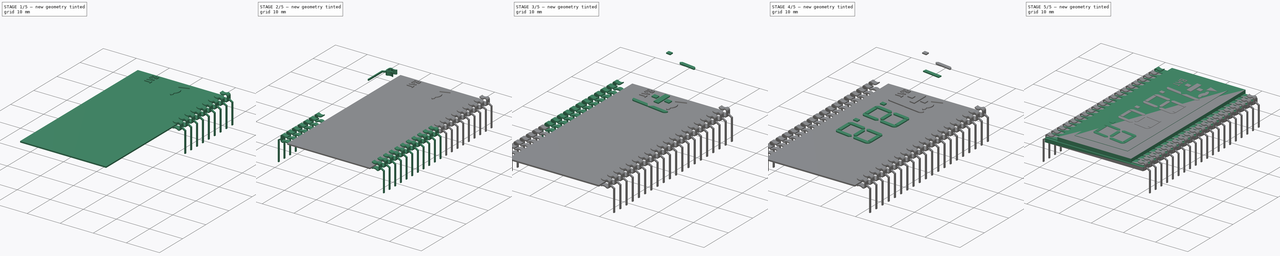
[diagram: build sequence overview — one tinted view per stage of 5, left to right]
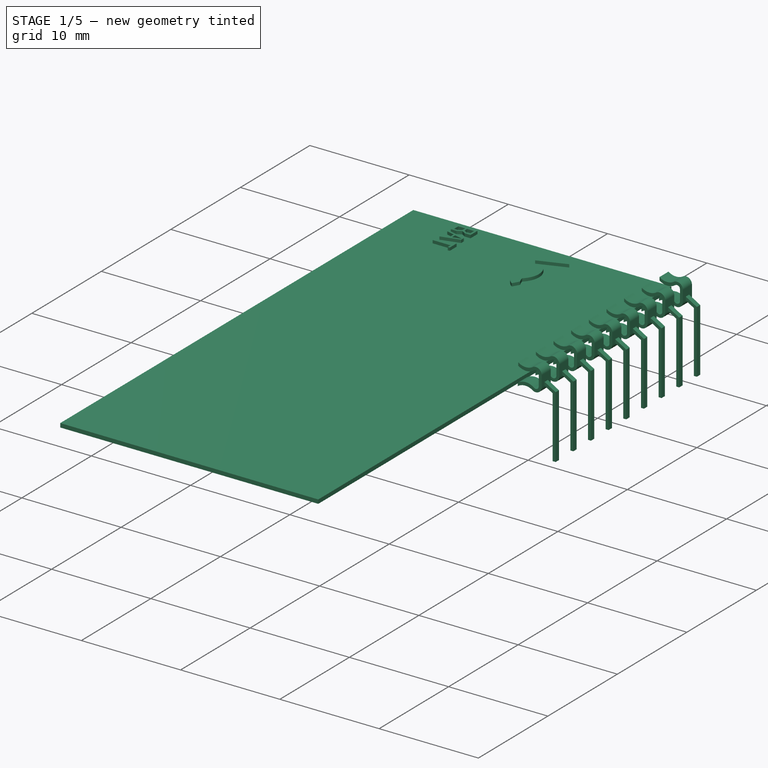
[diagram: stage 1 of 5 — iso view after this stage's code; geometry added in this stage tinted green]
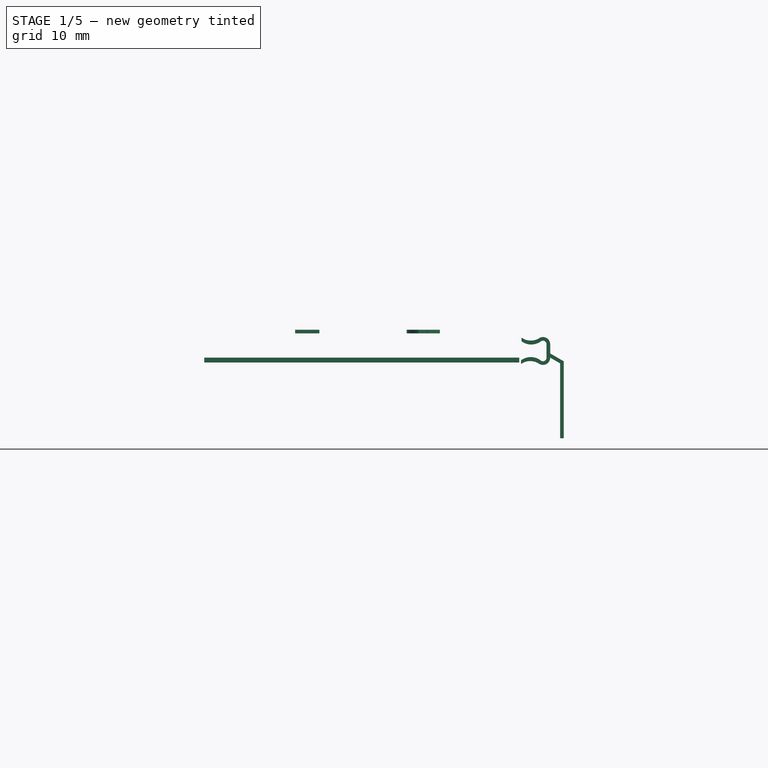
[diagram: stage 1 of 5 — front view after this stage's code; geometry added in this stage tinted green]
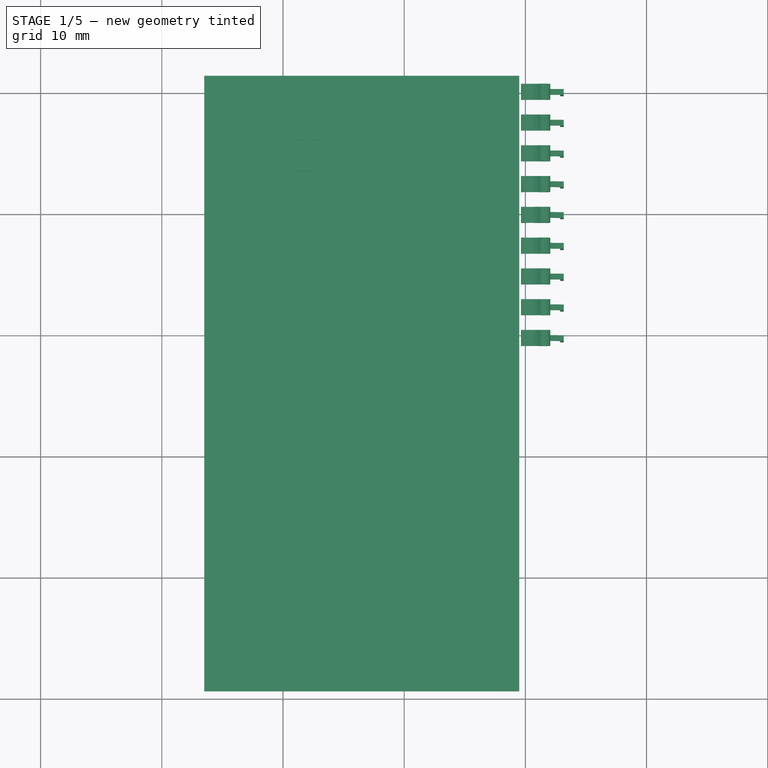
[diagram: stage 1 of 5 — top view after this stage's code; geometry added in this stage tinted green]
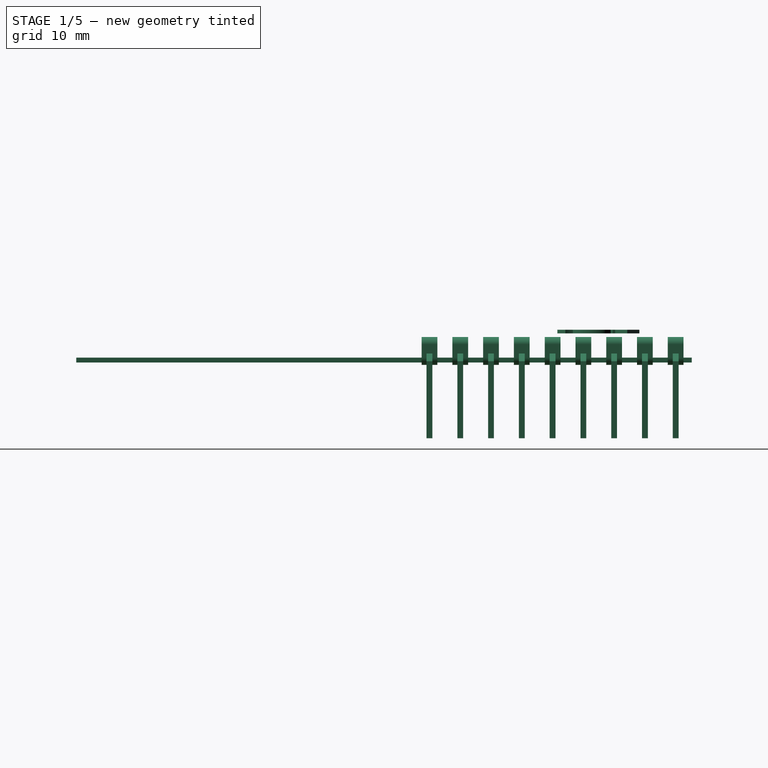
[diagram: stage 1 of 5 — right view after this stage's code; geometry added in this stage tinted green]
FCSTD DOCUMENT  (FreeCAD 0.17R11223 (Git))
Label: DE114-RS-20_4
License: All rights reserved
LicenseURL: http://en.wikipedia.org/wiki/All_rights_reserved
objects: Part::Box×201, Part::MultiFuse×46, Sketcher::SketchObject×41, PartDesign::Pad×41, Part::Chamfer×38, Part::Cut×32, Part::Fillet×14, Part::Cylinder×4, App::DocumentObjectGroup×3, PartDesign::Body×1
note: 459 computed .brp shape members not serialized (recipe doc carries the construction recipe); baked Part::Feature solids carry a one-line shape summary decoded from their .brp

FEATURE [Part::Box] Box217  label="Kub174"
  AttacherType = Attacher::AttachEngine3D
  Height = 0.3
  Length = 0.2
  Placement = pos=(21,-7,2.3) rot=(0,0,1;0rad)
  Width = 1
FEATURE [Part::Box] Box218  label="Kub175"
  AttacherType = Attacher::AttachEngine3D
  Height = 0.3
  Length = 0.2
  Placement = pos=(21.8,-8.4,2.3) rot=(0,0,1;0rad)
  Width = 0.7
FEATURE [Part::Box] Box219  label="Kub176"
  AttacherType = Attacher::AttachEngine3D
  Height = 0.3
  Length = 0.2
  Placement = pos=(22.8,-10,2.3) rot=(0,0,1;0rad)
  Width = 1
FEATURE [Part::Box] Box220  label="Kub177"
  AttacherType = Attacher::AttachEngine3D
  Height = 0.3
  Length = 1
  Placement = pos=(22,-9.6,2.3) rot=(0,0,1;0rad)
  Width = 0.2
FEATURE [Part::Box] Box221  label="Kub178"
  AttacherType = Attacher::AttachEngine3D
  Height = 0.3
  Length = 1
  Placement = pos=(21,-9.6,2.3) rot=(0,0,1;0rad)
  Width = 0.2
FEATURE [Part::Box] Box222  label="Kub179"
  AttacherType = Attacher::AttachEngine3D
  Height = 0.3
  Length = 1
  Placement = pos=(21,-6.2,2.3) rot=(0,0,1;0rad)
  Width = 0.2
FEATURE [Part::Box] Box223  label="Kub180"
  AttacherType = Attacher::AttachEngine3D
  Height = 0.3
  Length = 1
  Placement = pos=(22,-6.2,2.3) rot=(0,0,1;0rad)
  Width = 0.2
FEATURE [Part::Box] Box224  label="Kub181"
  AttacherType = Attacher::AttachEngine3D
  Height = 0.3
  Length = 1
  Placement = pos=(21,-7.5,2.3) rot=(0,0,-1;0.261799rad)
  Width = 0.2
FEATURE [Part::Box] Box225  label="Kub182"
  AttacherType = Attacher::AttachEngine3D
  Height = 0.3
  Length = 1
  Placement = pos=(21.9,-7.75,2.3) rot=(0,0,-1;0.261799rad)
  Width = 0.2
FEATURE [Part::Box] Box226  label="Kub183"
  AttacherType = Attacher::AttachEngine3D
  Height = 0.3
  Length = 1
  Placement = pos=(21.05,-8.7,2.3) rot=(0,0,1;0.261799rad)
  Width = 0.2
FEATURE [Part::Box] Box227  label="Kub184"
  AttacherType = Attacher::AttachEngine3D
  Height = 0.3
  Length = 1
  Placement = pos=(21.96,-8.45,2.3) rot=(0,0,1;0.261799rad)
  Width = 0.2
FEATURE [Part::Box] Box228  label="Kub185"
  AttacherType = Attacher::AttachEngine3D
  Height = 0.3
  Length = 0.2
  Placement = pos=(21.9,-6.7,2.3) rot=(0,0,1;0rad)
  Width = 0.7
FEATURE [Part::Box] Box229  label="Kub186"
  AttacherType = Attacher::AttachEngine3D
  Height = 0.3
  Length = 0.6
  Placement = pos=(21,-7,2.3) rot=(0,0,1;0rad)
  Width = 0.2
FEATURE [Part::Box] Box230  label="Kub187"
  AttacherType = Attacher::AttachEngine3D
  Height = 0.3
  Length = 0.6
  Placement = pos=(22.4,-7,2.3) rot=(0,0,1;0rad)
  Width = 0.2
FEATURE [Part::Box] Box231  label="Kub188"
  AttacherType = Attacher::AttachEngine3D
  Height = 0.3
  Length = 0.2
  Placement = pos=(22.8,-7,2.3) rot=(0,0,1;0rad)
  Width = 1
FEATURE [Part::Box] Box232  label="Kub189"
  AttacherType = Attacher::AttachEngine3D
  Height = 0.3
  Length = 0.6
  Placement = pos=(21.9,-6.7,2.3) rot=(0,0,-1;0.523599rad)
  Width = 0.2
FEATURE [Part::Box] Box233  label="Kub190"
  AttacherType = Attacher::AttachEngine3D
  Height = 0.3
  Length = 0.6
  Placement = pos=(21.6,-7,2.3) rot=(0,0,1;0.523599rad)
  Width = 0.2
FEATURE [Sketcher::SketchObject] Sketch073
  MapMode = 5
  sketch-geometry (12):
    g0: ArcOfCircle CenterX=0.3 CenterY=1.4 CenterZ=0 NormalX=0 NormalY=0 NormalZ=1 Radius=0.3 StartAngle=1.07185 EndAngle=3.14159
    g1: ArcOfCircle CenterX=0.3 CenterY=0.3 CenterZ=0 NormalX=0 NormalY=0 NormalZ=1 Radius=0.3 StartAngle=3.14159 EndAngle=5.21325
    g2: ArcOfCircle CenterX=1.26236 CenterY=2.71881 CenterZ=0 NormalX=0 NormalY=0 NormalZ=1 Radius=1.33577 StartAngle=4.05255 EndAngle=5.35633
    g3: ArcOfCircle CenterX=0.3 CenterY=1.4 CenterZ=0 NormalX=0 NormalY=0 NormalZ=1 Radius=0.6 StartAngle=1.16195 EndAngle=3.14159
    g4: ArcOfCircle CenterX=1.30141 CenterY=3.03549 CenterZ=0 NormalX=0 NormalY=0 NormalZ=1 Radius=1.32631 StartAngle=4.09955 EndAngle=5.32523
    g5: ArcOfCircle CenterX=0.3 CenterY=0.3 CenterZ=0 NormalX=0 NormalY=0 NormalZ=1 Radius=0.6 StartAngle=3.14159 EndAngle=5.20697
    g6: ArcOfCircle CenterX=1.29932 CenterY=-0.992274 CenterZ=0 NormalX=0 NormalY=0 NormalZ=1 Radius=1.33812 StartAngle=0.919458 EndAngle=2.26419
    g7: ArcOfCircle CenterX=1.34768 CenterY=-1.29457 CenterZ=0 NormalX=0 NormalY=0 NormalZ=1 Radius=1.31124 StartAngle=0.949854 EndAngle=2.19174
    g8: LineSegment StartX=2.11056 StartY=0.071899 StartZ=0 EndX=2.11056 EndY=-0.228101 EndZ=0
    g9: LineSegment StartX=2.06429 StartY=1.95055 StartZ=0 EndX=2.06429 EndY=1.65055 EndZ=0
    g10: LineSegment StartX=0 StartY=1.4 StartZ=0 EndX=0 EndY=0.3 EndZ=0
    g11: LineSegment StartX=-0.3 StartY=1.4 StartZ=0 EndX=-0.3 EndY=0.3 EndZ=0
  constraints (52):
    c: Radius(g0) = 0.3
    c: Radius(g2) = 1.33577
    c: Radius(g1) = 0.3
    c: DistanceX(g-1,g1) = 0.3
    c: DistanceY(g-1,g1) = 0.3
    c: Radius(g5) = 0.6
    c: DistanceX(g-1,g5) = 0.3
    c: DistanceY(g-1,g5) = 0.3
    c: DistanceY(g-1,g0) = 1.4
    c: DistanceX(g-1,g0) = 0.3
    c: Radius(g3) = 0.6
    c: DistanceX(g0,g3) = 0.3
    c: DistanceY(g-1,g3) = 1.4
    c: DistanceY(g5,g7) = 0
    c: DistanceX(g5,g7) = 0
    c: DistanceY(g1,g6) = 0
    c: DistanceX(g1,g6) = 0
    c: DistanceY(g0,g2) = 0
    c: DistanceX(g0,g2) = 0
    c: DistanceY(g3,g4) = 0
    c: DistanceX(g3,g4) = 0
    c: Radius(g4) = 1.32631
    c: Radius(g6) = 1.33812
    c: Radius(g7) = 1.31124
    c: DistanceY(g-1,g1) = 0.3
    c: DistanceY(g-1,g5) = 0.3
    c: DistanceX(g-1,g5) = 0.584797
    c: DistanceX(g1,g1) = 0.444055
    c: DistanceY(g1,g0) = 1.1
    c: DistanceY(g5,g3) = 1.1
    c: DistanceX(g0,g0) = 0.443549
    c: DistanceY(g0,g3) = 0.550548
    c: DistanceY(g7,g6) = 0.3
    c: DistanceY(g2,g4) = 0.3
    c: DistanceY(g3,g4) = 0
    c: DistanceX(g3,g4) = 1.52576
    c: DistanceX(g2,g4) = 0
    c: DistanceX(g5,g7) = 1.52576
    c: DistanceY(g7,g5) = 0
    c: DistanceX(g6,g7) = 0
    c: Coincident(g8,g6)
    c: DistanceY(g8,g8) = 0.3
    c: DistanceX(g7,g8) = 0
    c: Coincident(g9,g4)
    c: DistanceY(g9,g9) = 0.3
    c: DistanceX(g2,g9) = 0
    c: Coincident(g10,g0)
    c: DistanceY(g10,g10) = 1.1
    c: DistanceX(g1,g10) = 0
    c: Coincident(g11,g3)
    c: DistanceY(g11,g11) = 1.1
    c: DistanceX(g5,g11) = 0
FEATURE [PartDesign::Pad] Pad073  label="Pad153"
  Length = 1.3
  Length2 = 100
  Profile = -> Sketch073
  Type = 0
FEATURE [Part::Box] Box298  label="Leg0064"
  AttacherType = Attacher::AttachEngine3D
  Height = 0.48
  Length = 0.3
  Placement = pos=(-1.42,-6.35,0.41) rot=(0,0,1;0rad)
  Width = 6.35
FEATURE [Part::Box] Box299  label="Kub223"
  AttacherType = Attacher::AttachEngine3D
  Height = 0.48
  Length = 0.3
  Placement = pos=(-1.42,0,0.41) rot=(0,0,-1;1.0472rad)
  Width = 1.4
FEATURE [Part::MultiFuse] Fusion117  label="Leg0065"
  Placement = pos=(31.75,-20.97,0.1) rot=(0,0.707107,0.707107;3.14159rad)
  Shapes = -> [Pad073,Box299,Box298]
FEATURE [Sketcher::SketchObject] Sketch074
  MapMode = 5
  sketch-geometry (12):
    g0: ArcOfCircle CenterX=0.3 CenterY=1.4 CenterZ=0 NormalX=0 NormalY=0 NormalZ=1 Radius=0.3 StartAngle=1.07185 EndAngle=3.14159
    g1: ArcOfCircle CenterX=0.3 CenterY=0.3 CenterZ=0 NormalX=0 NormalY=0 NormalZ=1 Radius=0.3 StartAngle=3.14159 EndAngle=5.21325
    g2: ArcOfCircle CenterX=1.26236 CenterY=2.71881 CenterZ=0 NormalX=0 NormalY=0 NormalZ=1 Radius=1.33577 StartAngle=4.05255 EndAngle=5.35633
    g3: ArcOfCircle CenterX=0.3 CenterY=1.4 CenterZ=0 NormalX=0 NormalY=0 NormalZ=1 Radius=0.6 StartAngle=1.16195 EndAngle=3.14159
    g4: ArcOfCircle CenterX=1.30141 CenterY=3.03549 CenterZ=0 NormalX=0 NormalY=0 NormalZ=1 Radius=1.32631 StartAngle=4.09955 EndAngle=5.32523
    g5: ArcOfCircle CenterX=0.3 CenterY=0.3 CenterZ=0 NormalX=0 NormalY=0 NormalZ=1 Radius=0.6 StartAngle=3.14159 EndAngle=5.20697
    g6: ArcOfCircle CenterX=1.29932 CenterY=-0.992274 CenterZ=0 NormalX=0 NormalY=0 NormalZ=1 Radius=1.33812 StartAngle=0.919458 EndAngle=2.26419
    g7: ArcOfCircle CenterX=1.34768 CenterY=-1.29457 CenterZ=0 NormalX=0 NormalY=0 NormalZ=1 Radius=1.31124 StartAngle=0.949854 EndAngle=2.19174
    g8: LineSegment StartX=2.11056 StartY=0.071899 StartZ=0 EndX=2.11056 EndY=-0.228101 EndZ=0
    g9: LineSegment StartX=2.06429 StartY=1.95055 StartZ=0 EndX=2.06429 EndY=1.65055 EndZ=0
    g10: LineSegment StartX=0 StartY=1.4 StartZ=0 EndX=0 EndY=0.3 EndZ=0
    g11: LineSegment StartX=-0.3 StartY=1.4 StartZ=0 EndX=-0.3 EndY=0.3 EndZ=0
  constraints (52):
    c: Radius(g0) = 0.3
    c: Radius(g2) = 1.33577
    c: Radius(g1) = 0.3
    c: DistanceX(g-1,g1) = 0.3
    c: DistanceY(g-1,g1) = 0.3
    c: Radius(g5) = 0.6
    c: DistanceX(g-1,g5) = 0.3
    c: DistanceY(g-1,g5) = 0.3
    c: DistanceY(g-1,g0) = 1.4
    c: DistanceX(g-1,g0) = 0.3
    c: Radius(g3) = 0.6
    c: DistanceX(g0,g3) = 0.3
    c: DistanceY(g-1,g3) = 1.4
    c: DistanceY(g5,g7) = 0
    c: DistanceX(g5,g7) = 0
    c: DistanceY(g1,g6) = 0
    c: DistanceX(g1,g6) = 0
    c: DistanceY(g0,g2) = 0
    c: DistanceX(g0,g2) = 0
    c: DistanceY(g3,g4) = 0
    c: DistanceX(g3,g4) = 0
    c: Radius(g4) = 1.32631
    c: Radius(g6) = 1.33812
    c: Radius(g7) = 1.31124
    c: DistanceY(g-1,g1) = 0.3
    c: DistanceY(g-1,g5) = 0.3
    c: DistanceX(g-1,g5) = 0.584797
    c: DistanceX(g1,g1) = 0.444055
    c: DistanceY(g1,g0) = 1.1
    c: DistanceY(g5,g3) = 1.1
    c: DistanceX(g0,g0) = 0.443549
    c: DistanceY(g0,g3) = 0.550548
    c: DistanceY(g7,g6) = 0.3
    c: DistanceY(g2,g4) = 0.3
    c: DistanceY(g3,g4) = 0
    c: DistanceX(g3,g4) = 1.52576
    c: DistanceX(g2,g4) = 0
    c: DistanceX(g5,g7) = 1.52576
    c: DistanceY(g7,g5) = 0
    c: DistanceX(g6,g7) = 0
    c: Coincident(g8,g6)
    c: DistanceY(g8,g8) = 0.3
    c: DistanceX(g7,g8) = 0
    c: Coincident(g9,g4)
    c: DistanceY(g9,g9) = 0.3
    c: DistanceX(g2,g9) = 0
    c: Coincident(g10,g0)
    c: DistanceY(g10,g10) = 1.1
    c: DistanceX(g1,g10) = 0
    c: Coincident(g11,g3)
    c: DistanceY(g11,g11) = 1.1
    c: DistanceX(g5,g11) = 0
FEATURE [PartDesign::Pad] Pad074  label="Pad154"
  Length = 1.3
  Length2 = 100
  Profile = -> Sketch074
  Type = 0
FEATURE [Part::Box] Box300  label="Leg0066"
  AttacherType = Attacher::AttachEngine3D
  Height = 0.48
  Length = 0.3
  Placement = pos=(-1.42,-6.35,0.41) rot=(0,0,1;0rad)
  Width = 6.35
FEATURE [Part::Box] Box301  label="Kub224"
  AttacherType = Attacher::AttachEngine3D
  Height = 0.48
  Length = 0.3
  Placement = pos=(-1.42,0,0.41) rot=(0,0,-1;1.0472rad)
  Width = 1.4
FEATURE [Part::MultiFuse] Fusion118  label="Leg0067"
  Placement = pos=(31.75,-18.43,0.1) rot=(0,0.707107,0.707107;3.14159rad)
  Shapes = -> [Pad074,Box301,Box300]
FEATURE [Sketcher::SketchObject] Sketch075
  MapMode = 5
  sketch-geometry (12):
    g0: ArcOfCircle CenterX=0.3 CenterY=1.4 CenterZ=0 NormalX=0 NormalY=0 NormalZ=1 Radius=0.3 StartAngle=1.07185 EndAngle=3.14159
    g1: ArcOfCircle CenterX=0.3 CenterY=0.3 CenterZ=0 NormalX=0 NormalY=0 NormalZ=1 Radius=0.3 StartAngle=3.14159 EndAngle=5.21325
    g2: ArcOfCircle CenterX=1.26236 CenterY=2.71881 CenterZ=0 NormalX=0 NormalY=0 NormalZ=1 Radius=1.33577 StartAngle=4.05255 EndAngle=5.35633
    g3: ArcOfCircle CenterX=0.3 CenterY=1.4 CenterZ=0 NormalX=0 NormalY=0 NormalZ=1 Radius=0.6 StartAngle=1.16195 EndAngle=3.14159
    g4: ArcOfCircle CenterX=1.30141 CenterY=3.03549 CenterZ=0 NormalX=0 NormalY=0 NormalZ=1 Radius=1.32631 StartAngle=4.09955 EndAngle=5.32523
    g5: ArcOfCircle CenterX=0.3 CenterY=0.3 CenterZ=0 NormalX=0 NormalY=0 NormalZ=1 Radius=0.6 StartAngle=3.14159 EndAngle=5.20697
    g6: ArcOfCircle CenterX=1.29932 CenterY=-0.992274 CenterZ=0 NormalX=0 NormalY=0 NormalZ=1 Radius=1.33812 StartAngle=0.919458 EndAngle=2.26419
    g7: ArcOfCircle CenterX=1.34768 CenterY=-1.29457 CenterZ=0 NormalX=0 NormalY=0 NormalZ=1 Radius=1.31124 StartAngle=0.949854 EndAngle=2.19174
    g8: LineSegment StartX=2.11056 StartY=0.071899 StartZ=0 EndX=2.11056 EndY=-0.228101 EndZ=0
    g9: LineSegment StartX=2.06429 StartY=1.95055 StartZ=0 EndX=2.06429 EndY=1.65055 EndZ=0
    g10: LineSegment StartX=0 StartY=1.4 StartZ=0 EndX=0 EndY=0.3 EndZ=0
    g11: LineSegment StartX=-0.3 StartY=1.4 StartZ=0 EndX=-0.3 EndY=0.3 EndZ=0
  constraints (52):
    c: Radius(g0) = 0.3
    c: Radius(g2) = 1.33577
    c: Radius(g1) = 0.3
    c: DistanceX(g-1,g1) = 0.3
    c: DistanceY(g-1,g1) = 0.3
    c: Radius(g5) = 0.6
    c: DistanceX(g-1,g5) = 0.3
    c: DistanceY(g-1,g5) = 0.3
    c: DistanceY(g-1,g0) = 1.4
    c: DistanceX(g-1,g0) = 0.3
    c: Radius(g3) = 0.6
    c: DistanceX(g0,g3) = 0.3
    c: DistanceY(g-1,g3) = 1.4
    c: DistanceY(g5,g7) = 0
    c: DistanceX(g5,g7) = 0
    c: DistanceY(g1,g6) = 0
    c: DistanceX(g1,g6) = 0
    c: DistanceY(g0,g2) = 0
    c: DistanceX(g0,g2) = 0
    c: DistanceY(g3,g4) = 0
    c: DistanceX(g3,g4) = 0
    c: Radius(g4) = 1.32631
    c: Radius(g6) = 1.33812
    c: Radius(g7) = 1.31124
    c: DistanceY(g-1,g1) = 0.3
    c: DistanceY(g-1,g5) = 0.3
    c: DistanceX(g-1,g5) = 0.584797
    c: DistanceX(g1,g1) = 0.444055
    c: DistanceY(g1,g0) = 1.1
    c: DistanceY(g5,g3) = 1.1
    c: DistanceX(g0,g0) = 0.443549
    c: DistanceY(g0,g3) = 0.550548
    c: DistanceY(g7,g6) = 0.3
    c: DistanceY(g2,g4) = 0.3
    c: DistanceY(g3,g4) = 0
    c: DistanceX(g3,g4) = 1.52576
    c: DistanceX(g2,g4) = 0
    c: DistanceX(g5,g7) = 1.52576
    c: DistanceY(g7,g5) = 0
    c: DistanceX(g6,g7) = 0
    c: Coincident(g8,g6)
    c: DistanceY(g8,g8) = 0.3
    c: DistanceX(g7,g8) = 0
    c: Coincident(g9,g4)
    c: DistanceY(g9,g9) = 0.3
    c: DistanceX(g2,g9) = 0
    c: Coincident(g10,g0)
    c: DistanceY(g10,g10) = 1.1
    c: DistanceX(g1,g10) = 0
    c: Coincident(g11,g3)
    c: DistanceY(g11,g11) = 1.1
    c: DistanceX(g5,g11) = 0
FEATURE [PartDesign::Pad] Pad075  label="Pad155"
  Length = 1.3
  Length2 = 100
  Profile = -> Sketch075
  Type = 0
FEATURE [Part::Box] Box302  label="Leg0068"
  AttacherType = Attacher::AttachEngine3D
  Height = 0.48
  Length = 0.3
  Placement = pos=(-1.42,-6.35,0.41) rot=(0,0,1;0rad)
  Width = 6.35
FEATURE [Part::Box] Box303  label="Kub225"
  AttacherType = Attacher::AttachEngine3D
  Height = 0.48
  Length = 0.3
  Placement = pos=(-1.42,0,0.41) rot=(0,0,-1;1.0472rad)
  Width = 1.4
FEATURE [Part::MultiFuse] Fusion119  label="Leg0069"
  Placement = pos=(31.75,-15.89,0.1) rot=(0,0.707107,0.707107;3.14159rad)
  Shapes = -> [Pad075,Box303,Box302]
FEATURE [Sketcher::SketchObject] Sketch076
  MapMode = 5
  sketch-geometry (12):
    g0: ArcOfCircle CenterX=0.3 CenterY=1.4 CenterZ=0 NormalX=0 NormalY=0 NormalZ=1 Radius=0.3 StartAngle=1.07185 EndAngle=3.14159
    g1: ArcOfCircle CenterX=0.3 CenterY=0.3 CenterZ=0 NormalX=0 NormalY=0 NormalZ=1 Radius=0.3 StartAngle=3.14159 EndAngle=5.21325
    g2: ArcOfCircle CenterX=1.26236 CenterY=2.71881 CenterZ=0 NormalX=0 NormalY=0 NormalZ=1 Radius=1.33577 StartAngle=4.05255 EndAngle=5.35633
    g3: ArcOfCircle CenterX=0.3 CenterY=1.4 CenterZ=0 NormalX=0 NormalY=0 NormalZ=1 Radius=0.6 StartAngle=1.16195 EndAngle=3.14159
    g4: ArcOfCircle CenterX=1.30141 CenterY=3.03549 CenterZ=0 NormalX=0 NormalY=0 NormalZ=1 Radius=1.32631 StartAngle=4.09955 EndAngle=5.32523
    g5: ArcOfCircle CenterX=0.3 CenterY=0.3 CenterZ=0 NormalX=0 NormalY=0 NormalZ=1 Radius=0.6 StartAngle=3.14159 EndAngle=5.20697
    g6: ArcOfCircle CenterX=1.29932 CenterY=-0.992274 CenterZ=0 NormalX=0 NormalY=0 NormalZ=1 Radius=1.33812 StartAngle=0.919458 EndAngle=2.26419
    g7: ArcOfCircle CenterX=1.34768 CenterY=-1.29457 CenterZ=0 NormalX=0 NormalY=0 NormalZ=1 Radius=1.31124 StartAngle=0.949854 EndAngle=2.19174
    g8: LineSegment StartX=2.11056 StartY=0.071899 StartZ=0 EndX=2.11056 EndY=-0.228101 EndZ=0
    g9: LineSegment StartX=2.06429 StartY=1.95055 StartZ=0 EndX=2.06429 EndY=1.65055 EndZ=0
    g10: LineSegment StartX=0 StartY=1.4 StartZ=0 EndX=0 EndY=0.3 EndZ=0
    g11: LineSegment StartX=-0.3 StartY=1.4 StartZ=0 EndX=-0.3 EndY=0.3 EndZ=0
  constraints (52):
    c: Radius(g0) = 0.3
    c: Radius(g2) = 1.33577
    c: Radius(g1) = 0.3
    c: DistanceX(g-1,g1) = 0.3
    c: DistanceY(g-1,g1) = 0.3
    c: Radius(g5) = 0.6
    c: DistanceX(g-1,g5) = 0.3
    c: DistanceY(g-1,g5) = 0.3
    c: DistanceY(g-1,g0) = 1.4
    c: DistanceX(g-1,g0) = 0.3
    c: Radius(g3) = 0.6
    c: DistanceX(g0,g3) = 0.3
    c: DistanceY(g-1,g3) = 1.4
    c: DistanceY(g5,g7) = 0
    c: DistanceX(g5,g7) = 0
    c: DistanceY(g1,g6) = 0
    c: DistanceX(g1,g6) = 0
    c: DistanceY(g0,g2) = 0
    c: DistanceX(g0,g2) = 0
    c: DistanceY(g3,g4) = 0
    c: DistanceX(g3,g4) = 0
    c: Radius(g4) = 1.32631
    c: Radius(g6) = 1.33812
    c: Radius(g7) = 1.31124
    c: DistanceY(g-1,g1) = 0.3
    c: DistanceY(g-1,g5) = 0.3
    c: DistanceX(g-1,g5) = 0.584797
    c: DistanceX(g1,g1) = 0.444055
    c: DistanceY(g1,g0) = 1.1
    c: DistanceY(g5,g3) = 1.1
    c: DistanceX(g0,g0) = 0.443549
    c: DistanceY(g0,g3) = 0.550548
    c: DistanceY(g7,g6) = 0.3
    c: DistanceY(g2,g4) = 0.3
    c: DistanceY(g3,g4) = 0
    c: DistanceX(g3,g4) = 1.52576
    c: DistanceX(g2,g4) = 0
    c: DistanceX(g5,g7) = 1.52576
    c: DistanceY(g7,g5) = 0
    c: DistanceX(g6,g7) = 0
    c: Coincident(g8,g6)
    c: DistanceY(g8,g8) = 0.3
    c: DistanceX(g7,g8) = 0
    c: Coincident(g9,g4)
    c: DistanceY(g9,g9) = 0.3
    c: DistanceX(g2,g9) = 0
    c: Coincident(g10,g0)
    c: DistanceY(g10,g10) = 1.1
    c: DistanceX(g1,g10) = 0
    c: Coincident(g11,g3)
    c: DistanceY(g11,g11) = 1.1
    c: DistanceX(g5,g11) = 0
FEATURE [PartDesign::Pad] Pad076  label="Pad156"
  Length = 1.3
  Length2 = 100
  Profile = -> Sketch076
  Type = 0
FEATURE [Part::Box] Box304  label="Leg0070"
  AttacherType = Attacher::AttachEngine3D
  Height = 0.48
  Length = 0.3
  Placement = pos=(-1.42,-6.35,0.41) rot=(0,0,1;0rad)
  Width = 6.35
FEATURE [Part::Box] Box305  label="Kub226"
  AttacherType = Attacher::AttachEngine3D
  Height = 0.48
  Length = 0.3
  Placement = pos=(-1.42,0,0.41) rot=(0,0,-1;1.0472rad)
  Width = 1.4
FEATURE [Part::MultiFuse] Fusion120  label="Leg0071"
  Placement = pos=(31.75,-13.35,0.1) rot=(0,0.707107,0.707107;3.14159rad)
  Shapes = -> [Pad076,Box305,Box304]
FEATURE [Sketcher::SketchObject] Sketch077
  MapMode = 5
  sketch-geometry (12):
    g0: ArcOfCircle CenterX=0.3 CenterY=1.4 CenterZ=0 NormalX=0 NormalY=0 NormalZ=1 Radius=0.3 StartAngle=1.07185 EndAngle=3.14159
    g1: ArcOfCircle CenterX=0.3 CenterY=0.3 CenterZ=0 NormalX=0 NormalY=0 NormalZ=1 Radius=0.3 StartAngle=3.14159 EndAngle=5.21325
    g2: ArcOfCircle CenterX=1.26236 CenterY=2.71881 CenterZ=0 NormalX=0 NormalY=0 NormalZ=1 Radius=1.33577 StartAngle=4.05255 EndAngle=5.35633
    g3: ArcOfCircle CenterX=0.3 CenterY=1.4 CenterZ=0 NormalX=0 NormalY=0 NormalZ=1 Radius=0.6 StartAngle=1.16195 EndAngle=3.14159
    g4: ArcOfCircle CenterX=1.30141 CenterY=3.03549 CenterZ=0 NormalX=0 NormalY=0 NormalZ=1 Radius=1.32631 StartAngle=4.09955 EndAngle=5.32523
    g5: ArcOfCircle CenterX=0.3 CenterY=0.3 CenterZ=0 NormalX=0 NormalY=0 NormalZ=1 Radius=0.6 StartAngle=3.14159 EndAngle=5.20697
    g6: ArcOfCircle CenterX=1.29932 CenterY=-0.992274 CenterZ=0 NormalX=0 NormalY=0 NormalZ=1 Radius=1.33812 StartAngle=0.919458 EndAngle=2.26419
    g7: ArcOfCircle CenterX=1.34768 CenterY=-1.29457 CenterZ=0 NormalX=0 NormalY=0 NormalZ=1 Radius=1.31124 StartAngle=0.949854 EndAngle=2.19174
    g8: LineSegment StartX=2.11056 StartY=0.071899 StartZ=0 EndX=2.11056 EndY=-0.228101 EndZ=0
    g9: LineSegment StartX=2.06429 StartY=1.95055 StartZ=0 EndX=2.06429 EndY=1.65055 EndZ=0
    g10: LineSegment StartX=0 StartY=1.4 StartZ=0 EndX=0 EndY=0.3 EndZ=0
    g11: LineSegment StartX=-0.3 StartY=1.4 StartZ=0 EndX=-0.3 EndY=0.3 EndZ=0
  constraints (52):
    c: Radius(g0) = 0.3
    c: Radius(g2) = 1.33577
    c: Radius(g1) = 0.3
    c: DistanceX(g-1,g1) = 0.3
    c: DistanceY(g-1,g1) = 0.3
    c: Radius(g5) = 0.6
    c: DistanceX(g-1,g5) = 0.3
    c: DistanceY(g-1,g5) = 0.3
    c: DistanceY(g-1,g0) = 1.4
    c: DistanceX(g-1,g0) = 0.3
    c: Radius(g3) = 0.6
    c: DistanceX(g0,g3) = 0.3
    c: DistanceY(g-1,g3) = 1.4
    c: DistanceY(g5,g7) = 0
    c: DistanceX(g5,g7) = 0
    c: DistanceY(g1,g6) = 0
    c: DistanceX(g1,g6) = 0
    c: DistanceY(g0,g2) = 0
    c: DistanceX(g0,g2) = 0
    c: DistanceY(g3,g4) = 0
    c: DistanceX(g3,g4) = 0
    c: Radius(g4) = 1.32631
    c: Radius(g6) = 1.33812
    c: Radius(g7) = 1.31124
    c: DistanceY(g-1,g1) = 0.3
    c: DistanceY(g-1,g5) = 0.3
    c: DistanceX(g-1,g5) = 0.584797
    c: DistanceX(g1,g1) = 0.444055
    c: DistanceY(g1,g0) = 1.1
    c: DistanceY(g5,g3) = 1.1
    c: DistanceX(g0,g0) = 0.443549
    c: DistanceY(g0,g3) = 0.550548
    c: DistanceY(g7,g6) = 0.3
    c: DistanceY(g2,g4) = 0.3
    c: DistanceY(g3,g4) = 0
    c: DistanceX(g3,g4) = 1.52576
    c: DistanceX(g2,g4) = 0
    c: DistanceX(g5,g7) = 1.52576
    c: DistanceY(g7,g5) = 0
    c: DistanceX(g6,g7) = 0
    c: Coincident(g8,g6)
    c: DistanceY(g8,g8) = 0.3
    c: DistanceX(g7,g8) = 0
    c: Coincident(g9,g4)
    c: DistanceY(g9,g9) = 0.3
    c: DistanceX(g2,g9) = 0
    c: Coincident(g10,g0)
    c: DistanceY(g10,g10) = 1.1
    c: DistanceX(g1,g10) = 0
    c: Coincident(g11,g3)
    c: DistanceY(g11,g11) = 1.1
    c: DistanceX(g5,g11) = 0
FEATURE [PartDesign::Pad] Pad077  label="Pad157"
  Length = 1.3
  Length2 = 100
  Profile = -> Sketch077
  Type = 0
FEATURE [Part::Box] Box306  label="Leg0072"
  AttacherType = Attacher::AttachEngine3D
  Height = 0.48
  Length = 0.3
  Placement = pos=(-1.42,-6.35,0.41) rot=(0,0,1;0rad)
  Width = 6.35
FEATURE [Part::Box] Box307  label="Kub227"
  AttacherType = Attacher::AttachEngine3D
  Height = 0.48
  Length = 0.3
  Placement = pos=(-1.42,0,0.41) rot=(0,0,-1;1.0472rad)
  Width = 1.4
FEATURE [Part::MultiFuse] Fusion121  label="Leg0073"
  Placement = pos=(31.75,-10.81,0.1) rot=(0,0.707107,0.707107;3.14159rad)
  Shapes = -> [Pad077,Box307,Box306]
FEATURE [Sketcher::SketchObject] Sketch078
  MapMode = 5
  sketch-geometry (12):
    g0: ArcOfCircle CenterX=0.3 CenterY=1.4 CenterZ=0 NormalX=0 NormalY=0 NormalZ=1 Radius=0.3 StartAngle=1.07185 EndAngle=3.14159
    g1: ArcOfCircle CenterX=0.3 CenterY=0.3 CenterZ=0 NormalX=0 NormalY=0 NormalZ=1 Radius=0.3 StartAngle=3.14159 EndAngle=5.21325
    g2: ArcOfCircle CenterX=1.26236 CenterY=2.71881 CenterZ=0 NormalX=0 NormalY=0 NormalZ=1 Radius=1.33577 StartAngle=4.05255 EndAngle=5.35633
    g3: ArcOfCircle CenterX=0.3 CenterY=1.4 CenterZ=0 NormalX=0 NormalY=0 NormalZ=1 Radius=0.6 StartAngle=1.16195 EndAngle=3.14159
    g4: ArcOfCircle CenterX=1.30141 CenterY=3.03549 CenterZ=0 NormalX=0 NormalY=0 NormalZ=1 Radius=1.32631 StartAngle=4.09955 EndAngle=5.32523
    g5: ArcOfCircle CenterX=0.3 CenterY=0.3 CenterZ=0 NormalX=0 NormalY=0 NormalZ=1 Radius=0.6 StartAngle=3.14159 EndAngle=5.20697
    g6: ArcOfCircle CenterX=1.29932 CenterY=-0.992274 CenterZ=0 NormalX=0 NormalY=0 NormalZ=1 Radius=1.33812 StartAngle=0.919458 EndAngle=2.26419
    g7: ArcOfCircle CenterX=1.34768 CenterY=-1.29457 CenterZ=0 NormalX=0 NormalY=0 NormalZ=1 Radius=1.31124 StartAngle=0.949854 EndAngle=2.19174
    g8: LineSegment StartX=2.11056 StartY=0.071899 StartZ=0 EndX=2.11056 EndY=-0.228101 EndZ=0
    g9: LineSegment StartX=2.06429 StartY=1.95055 StartZ=0 EndX=2.06429 EndY=1.65055 EndZ=0
    g10: LineSegment StartX=0 StartY=1.4 StartZ=0 EndX=0 EndY=0.3 EndZ=0
    g11: LineSegment StartX=-0.3 StartY=1.4 StartZ=0 EndX=-0.3 EndY=0.3 EndZ=0
  constraints (52):
    c: Radius(g0) = 0.3
    c: Radius(g2) = 1.33577
    c: Radius(g1) = 0.3
    c: DistanceX(g-1,g1) = 0.3
    c: DistanceY(g-1,g1) = 0.3
    c: Radius(g5) = 0.6
    c: DistanceX(g-1,g5) = 0.3
    c: DistanceY(g-1,g5) = 0.3
    c: DistanceY(g-1,g0) = 1.4
    c: DistanceX(g-1,g0) = 0.3
    c: Radius(g3) = 0.6
    c: DistanceX(g0,g3) = 0.3
    c: DistanceY(g-1,g3) = 1.4
    c: DistanceY(g5,g7) = 0
    c: DistanceX(g5,g7) = 0
    c: DistanceY(g1,g6) = 0
    c: DistanceX(g1,g6) = 0
    c: DistanceY(g0,g2) = 0
    c: DistanceX(g0,g2) = 0
    c: DistanceY(g3,g4) = 0
    c: DistanceX(g3,g4) = 0
    c: Radius(g4) = 1.32631
    c: Radius(g6) = 1.33812
    c: Radius(g7) = 1.31124
    c: DistanceY(g-1,g1) = 0.3
    c: DistanceY(g-1,g5) = 0.3
    c: DistanceX(g-1,g5) = 0.584797
    c: DistanceX(g1,g1) = 0.444055
    c: DistanceY(g1,g0) = 1.1
    c: DistanceY(g5,g3) = 1.1
    c: DistanceX(g0,g0) = 0.443549
    c: DistanceY(g0,g3) = 0.550548
    c: DistanceY(g7,g6) = 0.3
    c: DistanceY(g2,g4) = 0.3
    c: DistanceY(g3,g4) = 0
    c: DistanceX(g3,g4) = 1.52576
    c: DistanceX(g2,g4) = 0
    c: DistanceX(g5,g7) = 1.52576
    c: DistanceY(g7,g5) = 0
    c: DistanceX(g6,g7) = 0
    c: Coincident(g8,g6)
    c: DistanceY(g8,g8) = 0.3
    c: DistanceX(g7,g8) = 0
    c: Coincident(g9,g4)
    c: DistanceY(g9,g9) = 0.3
    c: DistanceX(g2,g9) = 0
    c: Coincident(g10,g0)
    c: DistanceY(g10,g10) = 1.1
    c: DistanceX(g1,g10) = 0
    c: Coincident(g11,g3)
    c: DistanceY(g11,g11) = 1.1
    c: DistanceX(g5,g11) = 0
FEATURE [PartDesign::Pad] Pad078  label="Pad158"
  Length = 1.3
  Length2 = 100
  Profile = -> Sketch078
  Type = 0
FEATURE [Part::Box] Box308  label="Leg0074"
  AttacherType = Attacher::AttachEngine3D
  Height = 0.48
  Length = 0.3
  Placement = pos=(-1.42,-6.35,0.41) rot=(0,0,1;0rad)
  Width = 6.35
FEATURE [Part::Box] Box309  label="Kub228"
  AttacherType = Attacher::AttachEngine3D
  Height = 0.48
  Length = 0.3
  Placement = pos=(-1.42,0,0.41) rot=(0,0,-1;1.0472rad)
  Width = 1.4
FEATURE [Part::MultiFuse] Fusion122  label="Leg0075"
  Placement = pos=(31.75,-8.27,0.1) rot=(0,0.707107,0.707107;3.14159rad)
  Shapes = -> [Pad078,Box309,Box308]
FEATURE [Sketcher::SketchObject] Sketch079
  MapMode = 5
  sketch-geometry (12):
    g0: ArcOfCircle CenterX=0.3 CenterY=1.4 CenterZ=0 NormalX=0 NormalY=0 NormalZ=1 Radius=0.3 StartAngle=1.07185 EndAngle=3.14159
    g1: ArcOfCircle CenterX=0.3 CenterY=0.3 CenterZ=0 NormalX=0 NormalY=0 NormalZ=1 Radius=0.3 StartAngle=3.14159 EndAngle=5.21325
    g2: ArcOfCircle CenterX=1.26236 CenterY=2.71881 CenterZ=0 NormalX=0 NormalY=0 NormalZ=1 Radius=1.33577 StartAngle=4.05255 EndAngle=5.35633
    g3: ArcOfCircle CenterX=0.3 CenterY=1.4 CenterZ=0 NormalX=0 NormalY=0 NormalZ=1 Radius=0.6 StartAngle=1.16195 EndAngle=3.14159
    g4: ArcOfCircle CenterX=1.30141 CenterY=3.03549 CenterZ=0 NormalX=0 NormalY=0 NormalZ=1 Radius=1.32631 StartAngle=4.09955 EndAngle=5.32523
    g5: ArcOfCircle CenterX=0.3 CenterY=0.3 CenterZ=0 NormalX=0 NormalY=0 NormalZ=1 Radius=0.6 StartAngle=3.14159 EndAngle=5.20697
    g6: ArcOfCircle CenterX=1.29932 CenterY=-0.992274 CenterZ=0 NormalX=0 NormalY=0 NormalZ=1 Radius=1.33812 StartAngle=0.919458 EndAngle=2.26419
    g7: ArcOfCircle CenterX=1.34768 CenterY=-1.29457 CenterZ=0 NormalX=0 NormalY=0 NormalZ=1 Radius=1.31124 StartAngle=0.949854 EndAngle=2.19174
    g8: LineSegment StartX=2.11056 StartY=0.071899 StartZ=0 EndX=2.11056 EndY=-0.228101 EndZ=0
    g9: LineSegment StartX=2.06429 StartY=1.95055 StartZ=0 EndX=2.06429 EndY=1.65055 EndZ=0
    g10: LineSegment StartX=0 StartY=1.4 StartZ=0 EndX=0 EndY=0.3 EndZ=0
    g11: LineSegment StartX=-0.3 StartY=1.4 StartZ=0 EndX=-0.3 EndY=0.3 EndZ=0
  constraints (52):
    c: Radius(g0) = 0.3
    c: Radius(g2) = 1.33577
    c: Radius(g1) = 0.3
    c: DistanceX(g-1,g1) = 0.3
    c: DistanceY(g-1,g1) = 0.3
    c: Radius(g5) = 0.6
    c: DistanceX(g-1,g5) = 0.3
    c: DistanceY(g-1,g5) = 0.3
    c: DistanceY(g-1,g0) = 1.4
    c: DistanceX(g-1,g0) = 0.3
    c: Radius(g3) = 0.6
    c: DistanceX(g0,g3) = 0.3
    c: DistanceY(g-1,g3) = 1.4
    c: DistanceY(g5,g7) = 0
    c: DistanceX(g5,g7) = 0
    c: DistanceY(g1,g6) = 0
    c: DistanceX(g1,g6) = 0
    c: DistanceY(g0,g2) = 0
    c: DistanceX(g0,g2) = 0
    c: DistanceY(g3,g4) = 0
    c: DistanceX(g3,g4) = 0
    c: Radius(g4) = 1.32631
    c: Radius(g6) = 1.33812
    c: Radius(g7) = 1.31124
    c: DistanceY(g-1,g1) = 0.3
    c: DistanceY(g-1,g5) = 0.3
    c: DistanceX(g-1,g5) = 0.584797
    c: DistanceX(g1,g1) = 0.444055
    c: DistanceY(g1,g0) = 1.1
    c: DistanceY(g5,g3) = 1.1
    c: DistanceX(g0,g0) = 0.443549
    c: DistanceY(g0,g3) = 0.550548
    c: DistanceY(g7,g6) = 0.3
    c: DistanceY(g2,g4) = 0.3
    c: DistanceY(g3,g4) = 0
    c: DistanceX(g3,g4) = 1.52576
    c: DistanceX(g2,g4) = 0
    c: DistanceX(g5,g7) = 1.52576
    c: DistanceY(g7,g5) = 0
    c: DistanceX(g6,g7) = 0
    c: Coincident(g8,g6)
    c: DistanceY(g8,g8) = 0.3
    c: DistanceX(g7,g8) = 0
    c: Coincident(g9,g4)
    c: DistanceY(g9,g9) = 0.3
    c: DistanceX(g2,g9) = 0
    c: Coincident(g10,g0)
    c: DistanceY(g10,g10) = 1.1
    c: DistanceX(g1,g10) = 0
    c: Coincident(g11,g3)
    c: DistanceY(g11,g11) = 1.1
    c: DistanceX(g5,g11) = 0
FEATURE [PartDesign::Pad] Pad079  label="Pad159"
  Length = 1.3
  Length2 = 100
  Profile = -> Sketch079
  Type = 0
FEATURE [Part::Box] Box310  label="Leg0076"
  AttacherType = Attacher::AttachEngine3D
  Height = 0.48
  Length = 0.3
  Placement = pos=(-1.42,-6.35,0.41) rot=(0,0,1;0rad)
  Width = 6.35
FEATURE [Part::Box] Box311  label="Kub229"
  AttacherType = Attacher::AttachEngine3D
  Height = 0.48
  Length = 0.3
  Placement = pos=(-1.42,0,0.41) rot=(0,0,-1;1.0472rad)
  Width = 1.4
FEATURE [Part::MultiFuse] Fusion123  label="Leg0077"
  Placement = pos=(31.75,-5.73,0.1) rot=(0,0.707107,0.707107;3.14159rad)
  Shapes = -> [Pad079,Box311,Box310]
FEATURE [Sketcher::SketchObject] Sketch080
  MapMode = 5
  sketch-geometry (12):
    g0: ArcOfCircle CenterX=0.3 CenterY=1.4 CenterZ=0 NormalX=0 NormalY=0 NormalZ=1 Radius=0.3 StartAngle=1.07185 EndAngle=3.14159
    g1: ArcOfCircle CenterX=0.3 CenterY=0.3 CenterZ=0 NormalX=0 NormalY=0 NormalZ=1 Radius=0.3 StartAngle=3.14159 EndAngle=5.21325
    g2: ArcOfCircle CenterX=1.26236 CenterY=2.71881 CenterZ=0 NormalX=0 NormalY=0 NormalZ=1 Radius=1.33577 StartAngle=4.05255 EndAngle=5.35633
    g3: ArcOfCircle CenterX=0.3 CenterY=1.4 CenterZ=0 NormalX=0 NormalY=0 NormalZ=1 Radius=0.6 StartAngle=1.16195 EndAngle=3.14159
    g4: ArcOfCircle CenterX=1.30141 CenterY=3.03549 CenterZ=0 NormalX=0 NormalY=0 NormalZ=1 Radius=1.32631 StartAngle=4.09955 EndAngle=5.32523
    g5: ArcOfCircle CenterX=0.3 CenterY=0.3 CenterZ=0 NormalX=0 NormalY=0 NormalZ=1 Radius=0.6 StartAngle=3.14159 EndAngle=5.20697
    g6: ArcOfCircle CenterX=1.29932 CenterY=-0.992274 CenterZ=0 NormalX=0 NormalY=0 NormalZ=1 Radius=1.33812 StartAngle=0.919458 EndAngle=2.26419
    g7: ArcOfCircle CenterX=1.34768 CenterY=-1.29457 CenterZ=0 NormalX=0 NormalY=0 NormalZ=1 Radius=1.31124 StartAngle=0.949854 EndAngle=2.19174
    g8: LineSegment StartX=2.11056 StartY=0.071899 StartZ=0 EndX=2.11056 EndY=-0.228101 EndZ=0
    g9: LineSegment StartX=2.06429 StartY=1.95055 StartZ=0 EndX=2.06429 EndY=1.65055 EndZ=0
    g10: LineSegment StartX=0 StartY=1.4 StartZ=0 EndX=0 EndY=0.3 EndZ=0
    g11: LineSegment StartX=-0.3 StartY=1.4 StartZ=0 EndX=-0.3 EndY=0.3 EndZ=0
  constraints (52):
    c: Radius(g0) = 0.3
    c: Radius(g2) = 1.33577
    c: Radius(g1) = 0.3
    c: DistanceX(g-1,g1) = 0.3
    c: DistanceY(g-1,g1) = 0.3
    c: Radius(g5) = 0.6
    c: DistanceX(g-1,g5) = 0.3
    c: DistanceY(g-1,g5) = 0.3
    c: DistanceY(g-1,g0) = 1.4
    c: DistanceX(g-1,g0) = 0.3
    c: Radius(g3) = 0.6
    c: DistanceX(g0,g3) = 0.3
    c: DistanceY(g-1,g3) = 1.4
    c: DistanceY(g5,g7) = 0
    c: DistanceX(g5,g7) = 0
    c: DistanceY(g1,g6) = 0
    c: DistanceX(g1,g6) = 0
    c: DistanceY(g0,g2) = 0
    c: DistanceX(g0,g2) = 0
    c: DistanceY(g3,g4) = 0
    c: DistanceX(g3,g4) = 0
    c: Radius(g4) = 1.32631
    c: Radius(g6) = 1.33812
    c: Radius(g7) = 1.31124
    c: DistanceY(g-1,g1) = 0.3
    c: DistanceY(g-1,g5) = 0.3
    c: DistanceX(g-1,g5) = 0.584797
    c: DistanceX(g1,g1) = 0.444055
    c: DistanceY(g1,g0) = 1.1
    c: DistanceY(g5,g3) = 1.1
    c: DistanceX(g0,g0) = 0.443549
    c: DistanceY(g0,g3) = 0.550548
    c: DistanceY(g7,g6) = 0.3
    c: DistanceY(g2,g4) = 0.3
    c: DistanceY(g3,g4) = 0
    c: DistanceX(g3,g4) = 1.52576
    c: DistanceX(g2,g4) = 0
    c: DistanceX(g5,g7) = 1.52576
    c: DistanceY(g7,g5) = 0
    c: DistanceX(g6,g7) = 0
    c: Coincident(g8,g6)
    c: DistanceY(g8,g8) = 0.3
    c: DistanceX(g7,g8) = 0
    c: Coincident(g9,g4)
    c: DistanceY(g9,g9) = 0.3
    c: DistanceX(g2,g9) = 0
    c: Coincident(g10,g0)
    c: DistanceY(g10,g10) = 1.1
    c: DistanceX(g1,g10) = 0
    c: Coincident(g11,g3)
    c: DistanceY(g11,g11) = 1.1
    c: DistanceX(g5,g11) = 0
FEATURE [PartDesign::Pad] Pad080  label="Pad160"
  Length = 1.3
  Length2 = 100
  Profile = -> Sketch080
  Type = 0
FEATURE [Part::Box] Box312  label="Leg0078"
  AttacherType = Attacher::AttachEngine3D
  Height = 0.48
  Length = 0.3
  Placement = pos=(-1.42,-6.35,0.41) rot=(0,0,1;0rad)
  Width = 6.35
FEATURE [Part::Box] Box313  label="Kub230"
  AttacherType = Attacher::AttachEngine3D
  Height = 0.48
  Length = 0.3
  Placement = pos=(-1.42,0,0.41) rot=(0,0,-1;1.0472rad)
  Width = 1.4
FEATURE [Part::MultiFuse] Fusion124  label="Leg0079"
  Placement = pos=(31.75,-3.19,0.1) rot=(0,0.707107,0.707107;3.14159rad)
  Shapes = -> [Pad080,Box313,Box312]
FEATURE [Sketcher::SketchObject] Sketch081
  MapMode = 5
  sketch-geometry (12):
    g0: ArcOfCircle CenterX=0.3 CenterY=1.4 CenterZ=0 NormalX=0 NormalY=0 NormalZ=1 Radius=0.3 StartAngle=1.07185 EndAngle=3.14159
    g1: ArcOfCircle CenterX=0.3 CenterY=0.3 CenterZ=0 NormalX=0 NormalY=0 NormalZ=1 Radius=0.3 StartAngle=3.14159 EndAngle=5.21325
    g2: ArcOfCircle CenterX=1.26236 CenterY=2.71881 CenterZ=0 NormalX=0 NormalY=0 NormalZ=1 Radius=1.33577 StartAngle=4.05255 EndAngle=5.35633
    g3: ArcOfCircle CenterX=0.3 CenterY=1.4 CenterZ=0 NormalX=0 NormalY=0 NormalZ=1 Radius=0.6 StartAngle=1.16195 EndAngle=3.14159
    g4: ArcOfCircle CenterX=1.30141 CenterY=3.03549 CenterZ=0 NormalX=0 NormalY=0 NormalZ=1 Radius=1.32631 StartAngle=4.09955 EndAngle=5.32523
    g5: ArcOfCircle CenterX=0.3 CenterY=0.3 CenterZ=0 NormalX=0 NormalY=0 NormalZ=1 Radius=0.6 StartAngle=3.14159 EndAngle=5.20697
    g6: ArcOfCircle CenterX=1.29932 CenterY=-0.992274 CenterZ=0 NormalX=0 NormalY=0 NormalZ=1 Radius=1.33812 StartAngle=0.919458 EndAngle=2.26419
    g7: ArcOfCircle CenterX=1.34768 CenterY=-1.29457 CenterZ=0 NormalX=0 NormalY=0 NormalZ=1 Radius=1.31124 StartAngle=0.949854 EndAngle=2.19174
    g8: LineSegment StartX=2.11056 StartY=0.071899 StartZ=0 EndX=2.11056 EndY=-0.228101 EndZ=0
    g9: LineSegment StartX=2.06429 StartY=1.95055 StartZ=0 EndX=2.06429 EndY=1.65055 EndZ=0
    g10: LineSegment StartX=0 StartY=1.4 StartZ=0 EndX=0 EndY=0.3 EndZ=0
    g11: LineSegment StartX=-0.3 StartY=1.4 StartZ=0 EndX=-0.3 EndY=0.3 EndZ=0
  constraints (52):
    c: Radius(g0) = 0.3
    c: Radius(g2) = 1.33577
    c: Radius(g1) = 0.3
    c: DistanceX(g-1,g1) = 0.3
    c: DistanceY(g-1,g1) = 0.3
    c: Radius(g5) = 0.6
    c: DistanceX(g-1,g5) = 0.3
    c: DistanceY(g-1,g5) = 0.3
    c: DistanceY(g-1,g0) = 1.4
    c: DistanceX(g-1,g0) = 0.3
    c: Radius(g3) = 0.6
    c: DistanceX(g0,g3) = 0.3
    c: DistanceY(g-1,g3) = 1.4
    c: DistanceY(g5,g7) = 0
    c: DistanceX(g5,g7) = 0
    c: DistanceY(g1,g6) = 0
    c: DistanceX(g1,g6) = 0
    c: DistanceY(g0,g2) = 0
    c: DistanceX(g0,g2) = 0
    c: DistanceY(g3,g4) = 0
    c: DistanceX(g3,g4) = 0
    c: Radius(g4) = 1.32631
    c: Radius(g6) = 1.33812
    c: Radius(g7) = 1.31124
    c: DistanceY(g-1,g1) = 0.3
    c: DistanceY(g-1,g5) = 0.3
    c: DistanceX(g-1,g5) = 0.584797
    c: DistanceX(g1,g1) = 0.444055
    c: DistanceY(g1,g0) = 1.1
    c: DistanceY(g5,g3) = 1.1
    c: DistanceX(g0,g0) = 0.443549
    c: DistanceY(g0,g3) = 0.550548
    c: DistanceY(g7,g6) = 0.3
    c: DistanceY(g2,g4) = 0.3
    c: DistanceY(g3,g4) = 0
    c: DistanceX(g3,g4) = 1.52576
    c: DistanceX(g2,g4) = 0
    c: DistanceX(g5,g7) = 1.52576
    c: DistanceY(g7,g5) = 0
    c: DistanceX(g6,g7) = 0
    c: Coincident(g8,g6)
    c: DistanceY(g8,g8) = 0.3
    c: DistanceX(g7,g8) = 0
    c: Coincident(g9,g4)
    c: DistanceY(g9,g9) = 0.3
    c: DistanceX(g2,g9) = 0
    c: Coincident(g10,g0)
    c: DistanceY(g10,g10) = 1.1
    c: DistanceX(g1,g10) = 0
    c: Coincident(g11,g3)
    c: DistanceY(g11,g11) = 1.1
    c: DistanceX(g5,g11) = 0
FEATURE [PartDesign::Pad] Pad081  label="Pad161"
  Length = 1.3
  Length2 = 100
  Profile = -> Sketch081
  Type = 0
FEATURE [Part::Box] Box314  label="Leg0080"
  AttacherType = Attacher::AttachEngine3D
  Height = 0.48
  Length = 0.3
  Placement = pos=(-1.42,-6.35,0.41) rot=(0,0,1;0rad)
  Width = 6.35
FEATURE [Part::Box] Box315  label="Kub231"
  AttacherType = Attacher::AttachEngine3D
  Height = 0.48
  Length = 0.3
  Placement = pos=(-1.42,0,0.41) rot=(0,0,-1;1.0472rad)
  Width = 1.4
FEATURE [Part::MultiFuse] Fusion125  label="Leg0081"
  Placement = pos=(31.75,-0.65,0.1) rot=(0,0.707107,0.707107;3.14159rad)
  Shapes = -> [Pad081,Box315,Box314]
FEATURE [App::DocumentObjectGroup] Grupp001  label="Legs"
  Group = -> [Fusion086,Fusion087,Fusion088,Fusion089,Fusion090,Fusion091,Fusion092,Fusion093,Fusion094,Fusion095,Fusion096,Fusion097,Fusion098,Fusion099,Fusion100,Fusion101,Fusion102,Fusion103,Fusion104,Fusion105,Fusion106,Fusion107,Fusion108,Fusion110,Fusion111,Fusion112,Fusion113,Fusion114,Fusion115,Fusion116,Fusion117,Fusion118,Fusion119,Fusion120,Fusion121,Fusion122,Fusion123,Fusion124,Fusion125,Fusion085]
FEATURE [Part::MultiFuse] Fusion  label="BAT"
  Placement = pos=(-10,3,0.1) rot=(0,0,1;0rad)
  Shapes = -> [Box233,Box221,Box220,Box217,Box222,Box223,Box224,Box218,Box225,Box219,Box226,Box227,Box229,Box230,Box232,Box228,Box231]
FEATURE [Part::Box] Box316  label="Kub"
  AttacherType = Attacher::AttachEngine3D
  Height = 0.3
  Length = 3
  Placement = pos=(21,9,2.3) rot=(0,0,1;0rad)
  Width = 2
FEATURE [Part::Box] Box317  label="Kub232"
  AttacherType = Attacher::AttachEngine3D
  Height = 0.3
  Length = 4
  Placement = pos=(21,11,2.3) rot=(0,0,-1;0.349066rad)
  Width = 3
FEATURE [Part::Box] Box318  label="Kub233"
  AttacherType = Attacher::AttachEngine3D
  Height = 0.3
  Length = 4
  Placement = pos=(22,6.17,2.3) rot=(0,0,1;0.349066rad)
  Width = 3
FEATURE [Part::Cut] Cut033
  Base = -> Box316
  Tool = -> Box317
FEATURE [Part::Cut] Cut034  label="Triangle"
  Base = -> Cut033
  Placement = pos=(-0.8,-14,0.1) rot=(0,0,1;0rad)
  Tool = -> Box318
FEATURE [Part::Box] Box319  label="Kub234"
  AttacherType = Attacher::AttachEngine3D
  Height = 0.3
  Length = 3
  Placement = pos=(18.5,10.5,2.4) rot=(0,0,1;1.0472rad)
  Width = 3
FEATURE [Part::Cylinder] Cylinder
  Angle = 360
  AttacherType = Attacher::AttachEngine3D
  Height = 0.3
  Placement = pos=(18,10,0) rot=(0,0,1;0rad)
  Radius = 2
FEATURE [Part::Cylinder] Cylinder003
  Angle = 360
  AttacherType = Attacher::AttachEngine3D
  Height = 0.3
  Placement = pos=(17,10,0) rot=(0,0,1;0rad)
  Radius = 2
FEATURE [Part::Cut] Cut035
  Base = -> Cylinder
  Placement = pos=(0,0,2.4) rot=(0,0,1;0rad)
  Tool = -> Cylinder003
FEATURE [Part::Cylinder] Cylinder004
  Angle = 360
  AttacherType = Attacher::AttachEngine3D
  Height = 0.3
  Placement = pos=(13,10,0) rot=(0,0,1;0rad)
  Radius = 2
FEATURE [Part::Cylinder] Cylinder005
  Angle = 360
  AttacherType = Attacher::AttachEngine3D
  Height = 0.3
  Placement = pos=(14,10,0) rot=(0,0,1;0rad)
  Radius = 2
FEATURE [Part::Cut] Cut036
  Base = -> Cylinder004
  Placement = pos=(0,-2,2.4) rot=(0,0,1;0rad)
  Tool = -> Cylinder005
FEATURE [Part::Box] Box320  label="Kub235"
  AttacherType = Attacher::AttachEngine3D
  Height = 0.3
  Length = 3
  Placement = pos=(21,4,2.4) rot=(0,0,1;1.0472rad)
  Width = 3
FEATURE [Part::Box] Box321  label="Kub236"
  AttacherType = Attacher::AttachEngine3D
  Height = 0.3
  Length = 3
  Placement = pos=(12.5,8.5,2.4) rot=(0,0,1;0rad)
  Width = 3
FEATURE [Part::Cut] Cut037
  Base = -> Cut036
  Placement = pos=(7,0,0) rot=(0,0,1;0rad)
  Tool = -> Box321
FEATURE [Part::Box] Box322  label="Kub237"
  AttacherType = Attacher::AttachEngine3D
  Height = 0.3
  Length = 3
  Placement = pos=(15.5,6.5,2.4) rot=(0,0,1;0rad)
  Width = 3
FEATURE [Part::Cut] Cut038
  Base = -> Cut035
  Tool = -> Box322
FEATURE [Part::Cut] Cut040
  Base = -> Cut037
  Placement = pos=(0.3,0.4,0) rot=(0,0,1;0rad)
  Tool = -> Box320
FEATURE [Part::Cut] Cut041
  Base = -> Cut038
  Placement = pos=(0,-0.5,0) rot=(0,0,1;0rad)
  Tool = -> Box319
FEATURE [Part::MultiFuse] Fusion126
  Placement = pos=(2,-16.5,0) rot=(0,0,1;0rad)
  Shapes = -> [Cut040,Cut041]
FEATURE [App::DocumentObjectGroup] Grupp002  label="Digits"
  Group = -> [Fusion081,Fusion082,Fusion083,Cut028,Cut030,Cut032,Fusion080,Fusion,Cut034,Fusion126]
FEATURE [Part::Box] Box323  label="UnderBed"
  AttacherType = Attacher::AttachEngine3D
  Height = 0.4
  Length = 26
  Placement = pos=(3.5,-49.4715,0) rot=(0,0,1;0rad)
  Width = 50.8
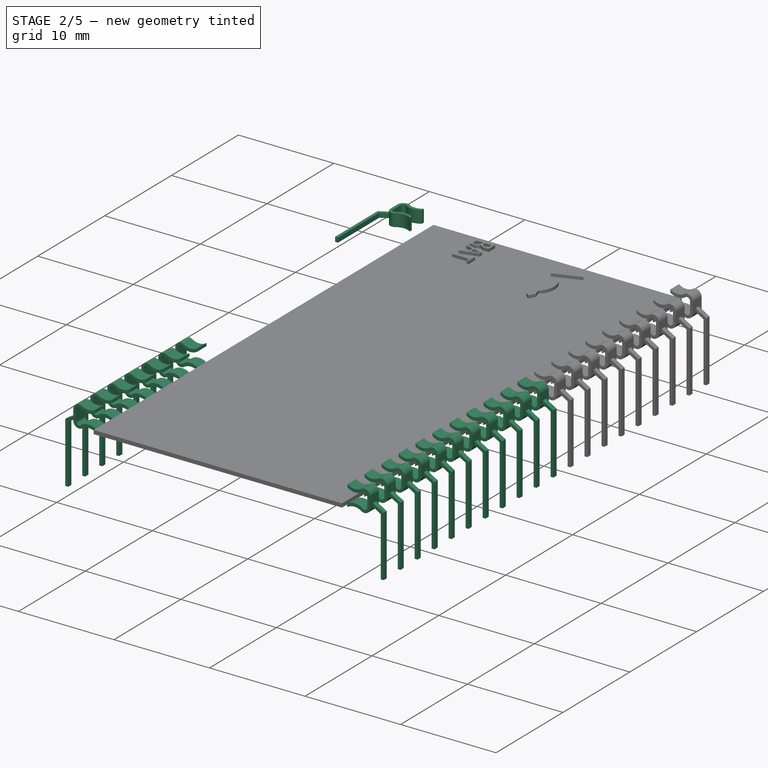
[diagram: stage 2 of 5 — iso view after this stage's code; geometry added in this stage tinted green]
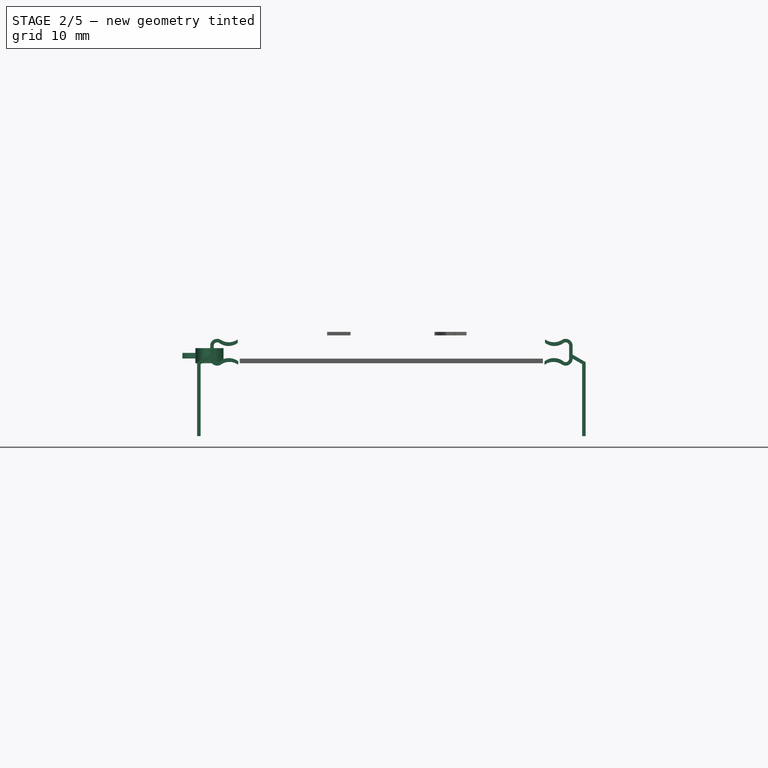
[diagram: stage 2 of 5 — front view after this stage's code; geometry added in this stage tinted green]
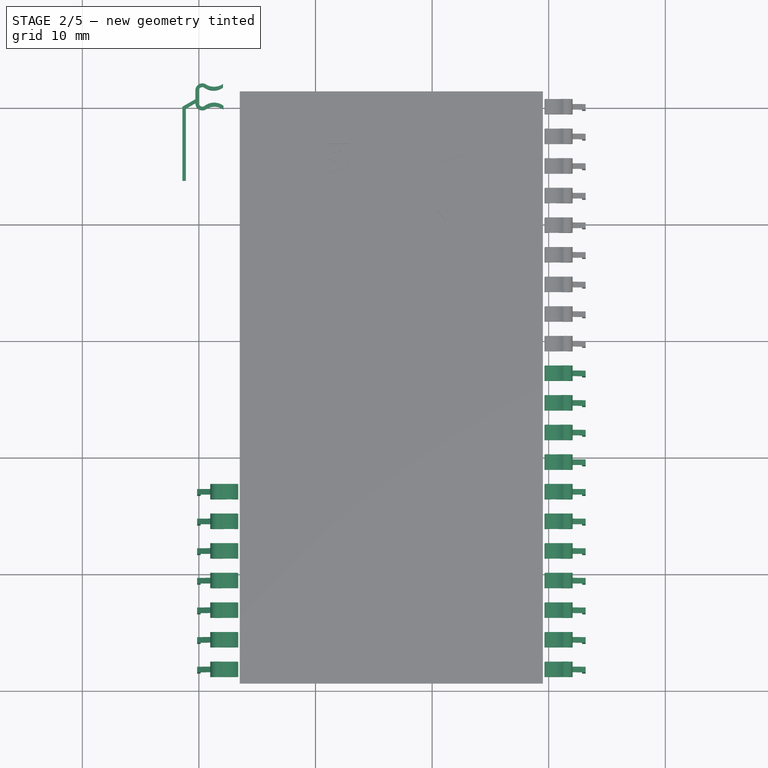
[diagram: stage 2 of 5 — top view after this stage's code; geometry added in this stage tinted green]
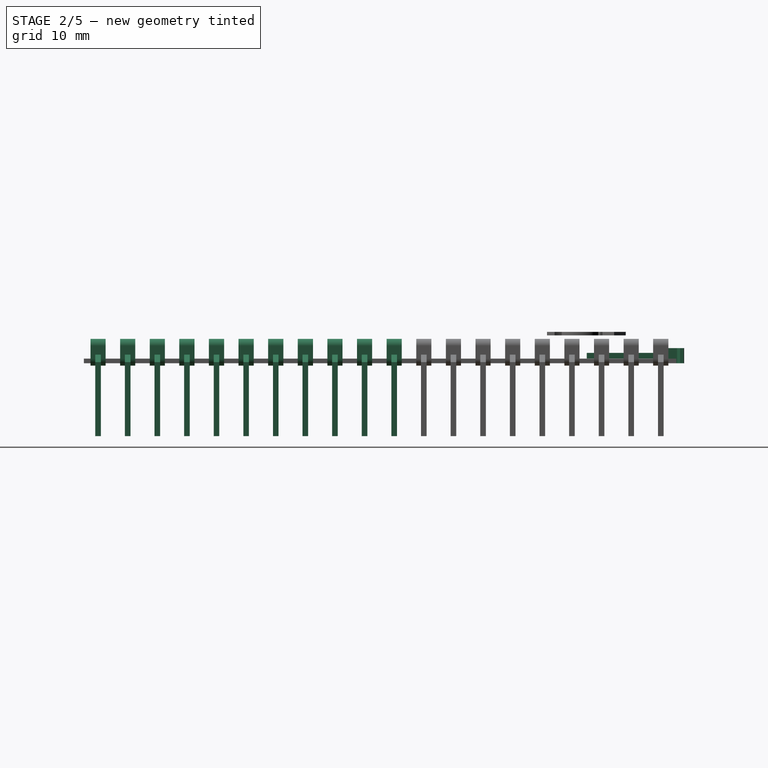
[diagram: stage 2 of 5 — right view after this stage's code; geometry added in this stage tinted green]
FEATURE [Sketcher::SketchObject] Sketch053
  MapMode = 5
  sketch-geometry (12):
    g0: ArcOfCircle CenterX=0.3 CenterY=1.4 CenterZ=0 NormalX=0 NormalY=0 NormalZ=1 Radius=0.3 StartAngle=1.07185 EndAngle=3.14159
    g1: ArcOfCircle CenterX=0.3 CenterY=0.3 CenterZ=0 NormalX=0 NormalY=0 NormalZ=1 Radius=0.3 StartAngle=3.14159 EndAngle=5.21325
    g2: ArcOfCircle CenterX=1.26236 CenterY=2.71881 CenterZ=0 NormalX=0 NormalY=0 NormalZ=1 Radius=1.33577 StartAngle=4.05255 EndAngle=5.35633
    g3: ArcOfCircle CenterX=0.3 CenterY=1.4 CenterZ=0 NormalX=0 NormalY=0 NormalZ=1 Radius=0.6 StartAngle=1.16195 EndAngle=3.14159
    g4: ArcOfCircle CenterX=1.30141 CenterY=3.03549 CenterZ=0 NormalX=0 NormalY=0 NormalZ=1 Radius=1.32631 StartAngle=4.09955 EndAngle=5.32523
    g5: ArcOfCircle CenterX=0.3 CenterY=0.3 CenterZ=0 NormalX=0 NormalY=0 NormalZ=1 Radius=0.6 StartAngle=3.14159 EndAngle=5.20697
    g6: ArcOfCircle CenterX=1.29932 CenterY=-0.992274 CenterZ=0 NormalX=0 NormalY=0 NormalZ=1 Radius=1.33812 StartAngle=0.919458 EndAngle=2.26419
    g7: ArcOfCircle CenterX=1.34768 CenterY=-1.29457 CenterZ=0 NormalX=0 NormalY=0 NormalZ=1 Radius=1.31124 StartAngle=0.949854 EndAngle=2.19174
    g8: LineSegment StartX=2.11056 StartY=0.071899 StartZ=0 EndX=2.11056 EndY=-0.228101 EndZ=0
    g9: LineSegment StartX=2.06429 StartY=1.95055 StartZ=0 EndX=2.06429 EndY=1.65055 EndZ=0
    g10: LineSegment StartX=0 StartY=1.4 StartZ=0 EndX=0 EndY=0.3 EndZ=0
    g11: LineSegment StartX=-0.3 StartY=1.4 StartZ=0 EndX=-0.3 EndY=0.3 EndZ=0
  constraints (52):
    c: Radius(g0) = 0.3
    c: Radius(g2) = 1.33577
    c: Radius(g1) = 0.3
    c: DistanceX(g-1,g1) = 0.3
    c: DistanceY(g-1,g1) = 0.3
    c: Radius(g5) = 0.6
    c: DistanceX(g-1,g5) = 0.3
    c: DistanceY(g-1,g5) = 0.3
    c: DistanceY(g-1,g0) = 1.4
    c: DistanceX(g-1,g0) = 0.3
    c: Radius(g3) = 0.6
    c: DistanceX(g0,g3) = 0.3
    c: DistanceY(g-1,g3) = 1.4
    c: DistanceY(g5,g7) = 0
    c: DistanceX(g5,g7) = 0
    c: DistanceY(g1,g6) = 0
    c: DistanceX(g1,g6) = 0
    c: DistanceY(g0,g2) = 0
    c: DistanceX(g0,g2) = 0
    c: DistanceY(g3,g4) = 0
    c: DistanceX(g3,g4) = 0
    c: Radius(g4) = 1.32631
    c: Radius(g6) = 1.33812
    c: Radius(g7) = 1.31124
    c: DistanceY(g-1,g1) = 0.3
    c: DistanceY(g-1,g5) = 0.3
    c: DistanceX(g-1,g5) = 0.584797
    c: DistanceX(g1,g1) = 0.444055
    c: DistanceY(g1,g0) = 1.1
    c: DistanceY(g5,g3) = 1.1
    c: DistanceX(g0,g0) = 0.443549
    c: DistanceY(g0,g3) = 0.550548
    c: DistanceY(g7,g6) = 0.3
    c: DistanceY(g2,g4) = 0.3
    c: DistanceY(g3,g4) = 0
    c: DistanceX(g3,g4) = 1.52576
    c: DistanceX(g2,g4) = 0
    c: DistanceX(g5,g7) = 1.52576
    c: DistanceY(g7,g5) = 0
    c: DistanceX(g6,g7) = 0
    c: Coincident(g8,g6)
    c: DistanceY(g8,g8) = 0.3
    c: DistanceX(g7,g8) = 0
    c: Coincident(g9,g4)
    c: DistanceY(g9,g9) = 0.3
    c: DistanceX(g2,g9) = 0
    c: Coincident(g10,g0)
    c: DistanceY(g10,g10) = 1.1
    c: DistanceX(g1,g10) = 0
    c: Coincident(g11,g3)
    c: DistanceY(g11,g11) = 1.1
    c: DistanceX(g5,g11) = 0
FEATURE [PartDesign::Pad] Pad053  label="Pad133"
  Length = 1.3
  Length2 = 100
  Profile = -> Sketch053
  Type = 0
FEATURE [Part::Box] Box258  label="Leg0024"
  AttacherType = Attacher::AttachEngine3D
  Height = 0.48
  Length = 0.3
  Placement = pos=(-1.42,-6.35,0.41) rot=(0,0,1;0rad)
  Width = 6.35
FEATURE [Part::Box] Box259  label="Kub203"
  AttacherType = Attacher::AttachEngine3D
  Height = 0.48
  Length = 0.3
  Placement = pos=(-1.42,0,0.41) rot=(0,0,-1;1.0472rad)
  Width = 1.4
FEATURE [Sketcher::SketchObject] Sketch054
  MapMode = 5
  sketch-geometry (12):
    g0: ArcOfCircle CenterX=0.3 CenterY=1.4 CenterZ=0 NormalX=0 NormalY=0 NormalZ=1 Radius=0.3 StartAngle=1.07185 EndAngle=3.14159
    g1: ArcOfCircle CenterX=0.3 CenterY=0.3 CenterZ=0 NormalX=0 NormalY=0 NormalZ=1 Radius=0.3 StartAngle=3.14159 EndAngle=5.21325
    g2: ArcOfCircle CenterX=1.26236 CenterY=2.71881 CenterZ=0 NormalX=0 NormalY=0 NormalZ=1 Radius=1.33577 StartAngle=4.05255 EndAngle=5.35633
    g3: ArcOfCircle CenterX=0.3 CenterY=1.4 CenterZ=0 NormalX=0 NormalY=0 NormalZ=1 Radius=0.6 StartAngle=1.16195 EndAngle=3.14159
    g4: ArcOfCircle CenterX=1.30141 CenterY=3.03549 CenterZ=0 NormalX=0 NormalY=0 NormalZ=1 Radius=1.32631 StartAngle=4.09955 EndAngle=5.32523
    g5: ArcOfCircle CenterX=0.3 CenterY=0.3 CenterZ=0 NormalX=0 NormalY=0 NormalZ=1 Radius=0.6 StartAngle=3.14159 EndAngle=5.20697
    g6: ArcOfCircle CenterX=1.29932 CenterY=-0.992274 CenterZ=0 NormalX=0 NormalY=0 NormalZ=1 Radius=1.33812 StartAngle=0.919458 EndAngle=2.26419
    g7: ArcOfCircle CenterX=1.34768 CenterY=-1.29457 CenterZ=0 NormalX=0 NormalY=0 NormalZ=1 Radius=1.31124 StartAngle=0.949854 EndAngle=2.19174
    g8: LineSegment StartX=2.11056 StartY=0.071899 StartZ=0 EndX=2.11056 EndY=-0.228101 EndZ=0
    g9: LineSegment StartX=2.06429 StartY=1.95055 StartZ=0 EndX=2.06429 EndY=1.65055 EndZ=0
    g10: LineSegment StartX=0 StartY=1.4 StartZ=0 EndX=0 EndY=0.3 EndZ=0
    g11: LineSegment StartX=-0.3 StartY=1.4 StartZ=0 EndX=-0.3 EndY=0.3 EndZ=0
  constraints (52):
    c: Radius(g0) = 0.3
    c: Radius(g2) = 1.33577
    c: Radius(g1) = 0.3
    c: DistanceX(g-1,g1) = 0.3
    c: DistanceY(g-1,g1) = 0.3
    c: Radius(g5) = 0.6
    c: DistanceX(g-1,g5) = 0.3
    c: DistanceY(g-1,g5) = 0.3
    c: DistanceY(g-1,g0) = 1.4
    c: DistanceX(g-1,g0) = 0.3
    c: Radius(g3) = 0.6
    c: DistanceX(g0,g3) = 0.3
    c: DistanceY(g-1,g3) = 1.4
    c: DistanceY(g5,g7) = 0
    c: DistanceX(g5,g7) = 0
    c: DistanceY(g1,g6) = 0
    c: DistanceX(g1,g6) = 0
    c: DistanceY(g0,g2) = 0
    c: DistanceX(g0,g2) = 0
    c: DistanceY(g3,g4) = 0
    c: DistanceX(g3,g4) = 0
    c: Radius(g4) = 1.32631
    c: Radius(g6) = 1.33812
    c: Radius(g7) = 1.31124
    c: DistanceY(g-1,g1) = 0.3
    c: DistanceY(g-1,g5) = 0.3
    c: DistanceX(g-1,g5) = 0.584797
    c: DistanceX(g1,g1) = 0.444055
    c: DistanceY(g1,g0) = 1.1
    c: DistanceY(g5,g3) = 1.1
    c: DistanceX(g0,g0) = 0.443549
    c: DistanceY(g0,g3) = 0.550548
    c: DistanceY(g7,g6) = 0.3
    c: DistanceY(g2,g4) = 0.3
    c: DistanceY(g3,g4) = 0
    c: DistanceX(g3,g4) = 1.52576
    c: DistanceX(g2,g4) = 0
    c: DistanceX(g5,g7) = 1.52576
    c: DistanceY(g7,g5) = 0
    c: DistanceX(g6,g7) = 0
    c: Coincident(g8,g6)
    c: DistanceY(g8,g8) = 0.3
    c: DistanceX(g7,g8) = 0
    c: Coincident(g9,g4)
    c: DistanceY(g9,g9) = 0.3
    c: DistanceX(g2,g9) = 0
    c: Coincident(g10,g0)
    c: DistanceY(g10,g10) = 1.1
    c: DistanceX(g1,g10) = 0
    c: Coincident(g11,g3)
    c: DistanceY(g11,g11) = 1.1
    c: DistanceX(g5,g11) = 0
FEATURE [PartDesign::Pad] Pad054  label="Pad134"
  Length = 1.3
  Length2 = 100
  Profile = -> Sketch054
  Type = 0
FEATURE [Part::Box] Box260  label="Leg0026"
  AttacherType = Attacher::AttachEngine3D
  Height = 0.48
  Length = 0.3
  Placement = pos=(-1.42,-6.35,0.41) rot=(0,0,1;0rad)
  Width = 6.35
FEATURE [Part::Box] Box261  label="Kub204"
  AttacherType = Attacher::AttachEngine3D
  Height = 0.48
  Length = 0.3
  Placement = pos=(-1.42,0,0.41) rot=(0,0,-1;1.0472rad)
  Width = 1.4
FEATURE [Part::MultiFuse] Fusion098  label="Leg0027"
  Placement = pos=(1.27,-32.37,0.1) rot=(1,0,0;1.5708rad)
  Shapes = -> [Pad054,Box261,Box260]
FEATURE [Sketcher::SketchObject] Sketch055
  MapMode = 5
  sketch-geometry (12):
    g0: ArcOfCircle CenterX=0.3 CenterY=1.4 CenterZ=0 NormalX=0 NormalY=0 NormalZ=1 Radius=0.3 StartAngle=1.07185 EndAngle=3.14159
    g1: ArcOfCircle CenterX=0.3 CenterY=0.3 CenterZ=0 NormalX=0 NormalY=0 NormalZ=1 Radius=0.3 StartAngle=3.14159 EndAngle=5.21325
    g2: ArcOfCircle CenterX=1.26236 CenterY=2.71881 CenterZ=0 NormalX=0 NormalY=0 NormalZ=1 Radius=1.33577 StartAngle=4.05255 EndAngle=5.35633
    g3: ArcOfCircle CenterX=0.3 CenterY=1.4 CenterZ=0 NormalX=0 NormalY=0 NormalZ=1 Radius=0.6 StartAngle=1.16195 EndAngle=3.14159
    g4: ArcOfCircle CenterX=1.30141 CenterY=3.03549 CenterZ=0 NormalX=0 NormalY=0 NormalZ=1 Radius=1.32631 StartAngle=4.09955 EndAngle=5.32523
    g5: ArcOfCircle CenterX=0.3 CenterY=0.3 CenterZ=0 NormalX=0 NormalY=0 NormalZ=1 Radius=0.6 StartAngle=3.14159 EndAngle=5.20697
    g6: ArcOfCircle CenterX=1.29932 CenterY=-0.992274 CenterZ=0 NormalX=0 NormalY=0 NormalZ=1 Radius=1.33812 StartAngle=0.919458 EndAngle=2.26419
    g7: ArcOfCircle CenterX=1.34768 CenterY=-1.29457 CenterZ=0 NormalX=0 NormalY=0 NormalZ=1 Radius=1.31124 StartAngle=0.949854 EndAngle=2.19174
    g8: LineSegment StartX=2.11056 StartY=0.071899 StartZ=0 EndX=2.11056 EndY=-0.228101 EndZ=0
    g9: LineSegment StartX=2.06429 StartY=1.95055 StartZ=0 EndX=2.06429 EndY=1.65055 EndZ=0
    g10: LineSegment StartX=0 StartY=1.4 StartZ=0 EndX=0 EndY=0.3 EndZ=0
    g11: LineSegment StartX=-0.3 StartY=1.4 StartZ=0 EndX=-0.3 EndY=0.3 EndZ=0
  constraints (52):
    c: Radius(g0) = 0.3
    c: Radius(g2) = 1.33577
    c: Radius(g1) = 0.3
    c: DistanceX(g-1,g1) = 0.3
    c: DistanceY(g-1,g1) = 0.3
    c: Radius(g5) = 0.6
    c: DistanceX(g-1,g5) = 0.3
    c: DistanceY(g-1,g5) = 0.3
    c: DistanceY(g-1,g0) = 1.4
    c: DistanceX(g-1,g0) = 0.3
    c: Radius(g3) = 0.6
    c: DistanceX(g0,g3) = 0.3
    c: DistanceY(g-1,g3) = 1.4
    c: DistanceY(g5,g7) = 0
    c: DistanceX(g5,g7) = 0
    c: DistanceY(g1,g6) = 0
    c: DistanceX(g1,g6) = 0
    c: DistanceY(g0,g2) = 0
    c: DistanceX(g0,g2) = 0
    c: DistanceY(g3,g4) = 0
    c: DistanceX(g3,g4) = 0
    c: Radius(g4) = 1.32631
    c: Radius(g6) = 1.33812
    c: Radius(g7) = 1.31124
    c: DistanceY(g-1,g1) = 0.3
    c: DistanceY(g-1,g5) = 0.3
    c: DistanceX(g-1,g5) = 0.584797
    c: DistanceX(g1,g1) = 0.444055
    c: DistanceY(g1,g0) = 1.1
    c: DistanceY(g5,g3) = 1.1
    c: DistanceX(g0,g0) = 0.443549
    c: DistanceY(g0,g3) = 0.550548
    c: DistanceY(g7,g6) = 0.3
    c: DistanceY(g2,g4) = 0.3
    c: DistanceY(g3,g4) = 0
    c: DistanceX(g3,g4) = 1.52576
    c: DistanceX(g2,g4) = 0
    c: DistanceX(g5,g7) = 1.52576
    c: DistanceY(g7,g5) = 0
    c: DistanceX(g6,g7) = 0
    c: Coincident(g8,g6)
    c: DistanceY(g8,g8) = 0.3
    c: DistanceX(g7,g8) = 0
    c: Coincident(g9,g4)
    c: DistanceY(g9,g9) = 0.3
    c: DistanceX(g2,g9) = 0
    c: Coincident(g10,g0)
    c: DistanceY(g10,g10) = 1.1
    c: DistanceX(g1,g10) = 0
    c: Coincident(g11,g3)
    c: DistanceY(g11,g11) = 1.1
    c: DistanceX(g5,g11) = 0
FEATURE [PartDesign::Pad] Pad055  label="Pad135"
  Length = 1.3
  Length2 = 100
  Profile = -> Sketch055
  Type = 0
FEATURE [Part::Box] Box262  label="Leg0028"
  AttacherType = Attacher::AttachEngine3D
  Height = 0.48
  Length = 0.3
  Placement = pos=(-1.42,-6.35,0.41) rot=(0,0,1;0rad)
  Width = 6.35
FEATURE [Part::Box] Box263  label="Kub205"
  AttacherType = Attacher::AttachEngine3D
  Height = 0.48
  Length = 0.3
  Placement = pos=(-1.42,0,0.41) rot=(0,0,-1;1.0472rad)
  Width = 1.4
FEATURE [Part::MultiFuse] Fusion099  label="Leg0029"
  Placement = pos=(1.27,-34.91,0.1) rot=(1,0,0;1.5708rad)
  Shapes = -> [Pad055,Box263,Box262]
FEATURE [Sketcher::SketchObject] Sketch056
  MapMode = 5
  sketch-geometry (12):
    g0: ArcOfCircle CenterX=0.3 CenterY=1.4 CenterZ=0 NormalX=0 NormalY=0 NormalZ=1 Radius=0.3 StartAngle=1.07185 EndAngle=3.14159
    g1: ArcOfCircle CenterX=0.3 CenterY=0.3 CenterZ=0 NormalX=0 NormalY=0 NormalZ=1 Radius=0.3 StartAngle=3.14159 EndAngle=5.21325
    g2: ArcOfCircle CenterX=1.26236 CenterY=2.71881 CenterZ=0 NormalX=0 NormalY=0 NormalZ=1 Radius=1.33577 StartAngle=4.05255 EndAngle=5.35633
    g3: ArcOfCircle CenterX=0.3 CenterY=1.4 CenterZ=0 NormalX=0 NormalY=0 NormalZ=1 Radius=0.6 StartAngle=1.16195 EndAngle=3.14159
    g4: ArcOfCircle CenterX=1.30141 CenterY=3.03549 CenterZ=0 NormalX=0 NormalY=0 NormalZ=1 Radius=1.32631 StartAngle=4.09955 EndAngle=5.32523
    g5: ArcOfCircle CenterX=0.3 CenterY=0.3 CenterZ=0 NormalX=0 NormalY=0 NormalZ=1 Radius=0.6 StartAngle=3.14159 EndAngle=5.20697
    g6: ArcOfCircle CenterX=1.29932 CenterY=-0.992274 CenterZ=0 NormalX=0 NormalY=0 NormalZ=1 Radius=1.33812 StartAngle=0.919458 EndAngle=2.26419
    g7: ArcOfCircle CenterX=1.34768 CenterY=-1.29457 CenterZ=0 NormalX=0 NormalY=0 NormalZ=1 Radius=1.31124 StartAngle=0.949854 EndAngle=2.19174
    g8: LineSegment StartX=2.11056 StartY=0.071899 StartZ=0 EndX=2.11056 EndY=-0.228101 EndZ=0
    g9: LineSegment StartX=2.06429 StartY=1.95055 StartZ=0 EndX=2.06429 EndY=1.65055 EndZ=0
    g10: LineSegment StartX=0 StartY=1.4 StartZ=0 EndX=0 EndY=0.3 EndZ=0
    g11: LineSegment StartX=-0.3 StartY=1.4 StartZ=0 EndX=-0.3 EndY=0.3 EndZ=0
  constraints (52):
    c: Radius(g0) = 0.3
    c: Radius(g2) = 1.33577
    c: Radius(g1) = 0.3
    c: DistanceX(g-1,g1) = 0.3
    c: DistanceY(g-1,g1) = 0.3
    c: Radius(g5) = 0.6
    c: DistanceX(g-1,g5) = 0.3
    c: DistanceY(g-1,g5) = 0.3
    c: DistanceY(g-1,g0) = 1.4
    c: DistanceX(g-1,g0) = 0.3
    c: Radius(g3) = 0.6
    c: DistanceX(g0,g3) = 0.3
    c: DistanceY(g-1,g3) = 1.4
    c: DistanceY(g5,g7) = 0
    c: DistanceX(g5,g7) = 0
    c: DistanceY(g1,g6) = 0
    c: DistanceX(g1,g6) = 0
    c: DistanceY(g0,g2) = 0
    c: DistanceX(g0,g2) = 0
    c: DistanceY(g3,g4) = 0
    c: DistanceX(g3,g4) = 0
    c: Radius(g4) = 1.32631
    c: Radius(g6) = 1.33812
    c: Radius(g7) = 1.31124
    c: DistanceY(g-1,g1) = 0.3
    c: DistanceY(g-1,g5) = 0.3
    c: DistanceX(g-1,g5) = 0.584797
    c: DistanceX(g1,g1) = 0.444055
    c: DistanceY(g1,g0) = 1.1
    c: DistanceY(g5,g3) = 1.1
    c: DistanceX(g0,g0) = 0.443549
    c: DistanceY(g0,g3) = 0.550548
    c: DistanceY(g7,g6) = 0.3
    c: DistanceY(g2,g4) = 0.3
    c: DistanceY(g3,g4) = 0
    c: DistanceX(g3,g4) = 1.52576
    c: DistanceX(g2,g4) = 0
    c: DistanceX(g5,g7) = 1.52576
    c: DistanceY(g7,g5) = 0
    c: DistanceX(g6,g7) = 0
    c: Coincident(g8,g6)
    c: DistanceY(g8,g8) = 0.3
    c: DistanceX(g7,g8) = 0
    c: Coincident(g9,g4)
    c: DistanceY(g9,g9) = 0.3
    c: DistanceX(g2,g9) = 0
    c: Coincident(g10,g0)
    c: DistanceY(g10,g10) = 1.1
    c: DistanceX(g1,g10) = 0
    c: Coincident(g11,g3)
    c: DistanceY(g11,g11) = 1.1
    c: DistanceX(g5,g11) = 0
FEATURE [PartDesign::Pad] Pad056  label="Pad136"
  Length = 1.3
  Length2 = 100
  Profile = -> Sketch056
  Type = 0
FEATURE [Part::Box] Box264  label="Leg0030"
  AttacherType = Attacher::AttachEngine3D
  Height = 0.48
  Length = 0.3
  Placement = pos=(-1.42,-6.35,0.41) rot=(0,0,1;0rad)
  Width = 6.35
FEATURE [Part::Box] Box265  label="Kub206"
  AttacherType = Attacher::AttachEngine3D
  Height = 0.48
  Length = 0.3
  Placement = pos=(-1.42,0,0.41) rot=(0,0,-1;1.0472rad)
  Width = 1.4
FEATURE [Part::MultiFuse] Fusion100  label="Leg0031"
  Placement = pos=(1.27,-37.45,0.1) rot=(1,0,0;1.5708rad)
  Shapes = -> [Pad056,Box265,Box264]
FEATURE [Sketcher::SketchObject] Sketch057
  MapMode = 5
  sketch-geometry (12):
    g0: ArcOfCircle CenterX=0.3 CenterY=1.4 CenterZ=0 NormalX=0 NormalY=0 NormalZ=1 Radius=0.3 StartAngle=1.07185 EndAngle=3.14159
    g1: ArcOfCircle CenterX=0.3 CenterY=0.3 CenterZ=0 NormalX=0 NormalY=0 NormalZ=1 Radius=0.3 StartAngle=3.14159 EndAngle=5.21325
    g2: ArcOfCircle CenterX=1.26236 CenterY=2.71881 CenterZ=0 NormalX=0 NormalY=0 NormalZ=1 Radius=1.33577 StartAngle=4.05255 EndAngle=5.35633
    g3: ArcOfCircle CenterX=0.3 CenterY=1.4 CenterZ=0 NormalX=0 NormalY=0 NormalZ=1 Radius=0.6 StartAngle=1.16195 EndAngle=3.14159
    g4: ArcOfCircle CenterX=1.30141 CenterY=3.03549 CenterZ=0 NormalX=0 NormalY=0 NormalZ=1 Radius=1.32631 StartAngle=4.09955 EndAngle=5.32523
    g5: ArcOfCircle CenterX=0.3 CenterY=0.3 CenterZ=0 NormalX=0 NormalY=0 NormalZ=1 Radius=0.6 StartAngle=3.14159 EndAngle=5.20697
    g6: ArcOfCircle CenterX=1.29932 CenterY=-0.992274 CenterZ=0 NormalX=0 NormalY=0 NormalZ=1 Radius=1.33812 StartAngle=0.919458 EndAngle=2.26419
    g7: ArcOfCircle CenterX=1.34768 CenterY=-1.29457 CenterZ=0 NormalX=0 NormalY=0 NormalZ=1 Radius=1.31124 StartAngle=0.949854 EndAngle=2.19174
    g8: LineSegment StartX=2.11056 StartY=0.071899 StartZ=0 EndX=2.11056 EndY=-0.228101 EndZ=0
    g9: LineSegment StartX=2.06429 StartY=1.95055 StartZ=0 EndX=2.06429 EndY=1.65055 EndZ=0
    g10: LineSegment StartX=0 StartY=1.4 StartZ=0 EndX=0 EndY=0.3 EndZ=0
    g11: LineSegment StartX=-0.3 StartY=1.4 StartZ=0 EndX=-0.3 EndY=0.3 EndZ=0
  constraints (52):
    c: Radius(g0) = 0.3
    c: Radius(g2) = 1.33577
    c: Radius(g1) = 0.3
    c: DistanceX(g-1,g1) = 0.3
    c: DistanceY(g-1,g1) = 0.3
    c: Radius(g5) = 0.6
    c: DistanceX(g-1,g5) = 0.3
    c: DistanceY(g-1,g5) = 0.3
    c: DistanceY(g-1,g0) = 1.4
    c: DistanceX(g-1,g0) = 0.3
    c: Radius(g3) = 0.6
    c: DistanceX(g0,g3) = 0.3
    c: DistanceY(g-1,g3) = 1.4
    c: DistanceY(g5,g7) = 0
    c: DistanceX(g5,g7) = 0
    c: DistanceY(g1,g6) = 0
    c: DistanceX(g1,g6) = 0
    c: DistanceY(g0,g2) = 0
    c: DistanceX(g0,g2) = 0
    c: DistanceY(g3,g4) = 0
    c: DistanceX(g3,g4) = 0
    c: Radius(g4) = 1.32631
    c: Radius(g6) = 1.33812
    c: Radius(g7) = 1.31124
    c: DistanceY(g-1,g1) = 0.3
    c: DistanceY(g-1,g5) = 0.3
    c: DistanceX(g-1,g5) = 0.584797
    c: DistanceX(g1,g1) = 0.444055
    c: DistanceY(g1,g0) = 1.1
    c: DistanceY(g5,g3) = 1.1
    c: DistanceX(g0,g0) = 0.443549
    c: DistanceY(g0,g3) = 0.550548
    c: DistanceY(g7,g6) = 0.3
    c: DistanceY(g2,g4) = 0.3
    c: DistanceY(g3,g4) = 0
    c: DistanceX(g3,g4) = 1.52576
    c: DistanceX(g2,g4) = 0
    c: DistanceX(g5,g7) = 1.52576
    c: DistanceY(g7,g5) = 0
    c: DistanceX(g6,g7) = 0
    c: Coincident(g8,g6)
    c: DistanceY(g8,g8) = 0.3
    c: DistanceX(g7,g8) = 0
    c: Coincident(g9,g4)
    c: DistanceY(g9,g9) = 0.3
    c: DistanceX(g2,g9) = 0
    c: Coincident(g10,g0)
    c: DistanceY(g10,g10) = 1.1
    c: DistanceX(g1,g10) = 0
    c: Coincident(g11,g3)
    c: DistanceY(g11,g11) = 1.1
    c: DistanceX(g5,g11) = 0
FEATURE [PartDesign::Pad] Pad057  label="Pad137"
  Length = 1.3
  Length2 = 100
  Profile = -> Sketch057
  Type = 0
FEATURE [Part::Box] Box266  label="Leg0032"
  AttacherType = Attacher::AttachEngine3D
  Height = 0.48
  Length = 0.3
  Placement = pos=(-1.42,-6.35,0.41) rot=(0,0,1;0rad)
  Width = 6.35
FEATURE [Part::Box] Box267  label="Kub207"
  AttacherType = Attacher::AttachEngine3D
  Height = 0.48
  Length = 0.3
  Placement = pos=(-1.42,0,0.41) rot=(0,0,-1;1.0472rad)
  Width = 1.4
FEATURE [Part::MultiFuse] Fusion101  label="Leg0033"
  Placement = pos=(1.27,-39.99,0.1) rot=(1,0,0;1.5708rad)
  Shapes = -> [Pad057,Box267,Box266]
FEATURE [Sketcher::SketchObject] Sketch058
  MapMode = 5
  sketch-geometry (12):
    g0: ArcOfCircle CenterX=0.3 CenterY=1.4 CenterZ=0 NormalX=0 NormalY=0 NormalZ=1 Radius=0.3 StartAngle=1.07185 EndAngle=3.14159
    g1: ArcOfCircle CenterX=0.3 CenterY=0.3 CenterZ=0 NormalX=0 NormalY=0 NormalZ=1 Radius=0.3 StartAngle=3.14159 EndAngle=5.21325
    g2: ArcOfCircle CenterX=1.26236 CenterY=2.71881 CenterZ=0 NormalX=0 NormalY=0 NormalZ=1 Radius=1.33577 StartAngle=4.05255 EndAngle=5.35633
    g3: ArcOfCircle CenterX=0.3 CenterY=1.4 CenterZ=0 NormalX=0 NormalY=0 NormalZ=1 Radius=0.6 StartAngle=1.16195 EndAngle=3.14159
    g4: ArcOfCircle CenterX=1.30141 CenterY=3.03549 CenterZ=0 NormalX=0 NormalY=0 NormalZ=1 Radius=1.32631 StartAngle=4.09955 EndAngle=5.32523
    g5: ArcOfCircle CenterX=0.3 CenterY=0.3 CenterZ=0 NormalX=0 NormalY=0 NormalZ=1 Radius=0.6 StartAngle=3.14159 EndAngle=5.20697
    g6: ArcOfCircle CenterX=1.29932 CenterY=-0.992274 CenterZ=0 NormalX=0 NormalY=0 NormalZ=1 Radius=1.33812 StartAngle=0.919458 EndAngle=2.26419
    g7: ArcOfCircle CenterX=1.34768 CenterY=-1.29457 CenterZ=0 NormalX=0 NormalY=0 NormalZ=1 Radius=1.31124 StartAngle=0.949854 EndAngle=2.19174
    g8: LineSegment StartX=2.11056 StartY=0.071899 StartZ=0 EndX=2.11056 EndY=-0.228101 EndZ=0
    g9: LineSegment StartX=2.06429 StartY=1.95055 StartZ=0 EndX=2.06429 EndY=1.65055 EndZ=0
    g10: LineSegment StartX=0 StartY=1.4 StartZ=0 EndX=0 EndY=0.3 EndZ=0
    g11: LineSegment StartX=-0.3 StartY=1.4 StartZ=0 EndX=-0.3 EndY=0.3 EndZ=0
  constraints (52):
    c: Radius(g0) = 0.3
    c: Radius(g2) = 1.33577
    c: Radius(g1) = 0.3
    c: DistanceX(g-1,g1) = 0.3
    c: DistanceY(g-1,g1) = 0.3
    c: Radius(g5) = 0.6
    c: DistanceX(g-1,g5) = 0.3
    c: DistanceY(g-1,g5) = 0.3
    c: DistanceY(g-1,g0) = 1.4
    c: DistanceX(g-1,g0) = 0.3
    c: Radius(g3) = 0.6
    c: DistanceX(g0,g3) = 0.3
    c: DistanceY(g-1,g3) = 1.4
    c: DistanceY(g5,g7) = 0
    c: DistanceX(g5,g7) = 0
    c: DistanceY(g1,g6) = 0
    c: DistanceX(g1,g6) = 0
    c: DistanceY(g0,g2) = 0
    c: DistanceX(g0,g2) = 0
    c: DistanceY(g3,g4) = 0
    c: DistanceX(g3,g4) = 0
    c: Radius(g4) = 1.32631
    c: Radius(g6) = 1.33812
    c: Radius(g7) = 1.31124
    c: DistanceY(g-1,g1) = 0.3
    c: DistanceY(g-1,g5) = 0.3
    c: DistanceX(g-1,g5) = 0.584797
    c: DistanceX(g1,g1) = 0.444055
    c: DistanceY(g1,g0) = 1.1
    c: DistanceY(g5,g3) = 1.1
    c: DistanceX(g0,g0) = 0.443549
    c: DistanceY(g0,g3) = 0.550548
    c: DistanceY(g7,g6) = 0.3
    c: DistanceY(g2,g4) = 0.3
    c: DistanceY(g3,g4) = 0
    c: DistanceX(g3,g4) = 1.52576
    c: DistanceX(g2,g4) = 0
    c: DistanceX(g5,g7) = 1.52576
    c: DistanceY(g7,g5) = 0
    c: DistanceX(g6,g7) = 0
    c: Coincident(g8,g6)
    c: DistanceY(g8,g8) = 0.3
    c: DistanceX(g7,g8) = 0
    c: Coincident(g9,g4)
    c: DistanceY(g9,g9) = 0.3
    c: DistanceX(g2,g9) = 0
    c: Coincident(g10,g0)
    c: DistanceY(g10,g10) = 1.1
    c: DistanceX(g1,g10) = 0
    c: Coincident(g11,g3)
    c: DistanceY(g11,g11) = 1.1
    c: DistanceX(g5,g11) = 0
FEATURE [PartDesign::Pad] Pad058  label="Pad138"
  Length = 1.3
  Length2 = 100
  Profile = -> Sketch058
  Type = 0
FEATURE [Part::Box] Box268  label="Leg0034"
  AttacherType = Attacher::AttachEngine3D
  Height = 0.48
  Length = 0.3
  Placement = pos=(-1.42,-6.35,0.41) rot=(0,0,1;0rad)
  Width = 6.35
FEATURE [Part::Box] Box269  label="Kub208"
  AttacherType = Attacher::AttachEngine3D
  Height = 0.48
  Length = 0.3
  Placement = pos=(-1.42,0,0.41) rot=(0,0,-1;1.0472rad)
  Width = 1.4
FEATURE [Part::MultiFuse] Fusion102  label="Leg0035"
  Placement = pos=(1.27,-42.53,0.1) rot=(1,0,0;1.5708rad)
  Shapes = -> [Pad058,Box269,Box268]
FEATURE [Sketcher::SketchObject] Sketch059
  MapMode = 5
  sketch-geometry (12):
    g0: ArcOfCircle CenterX=0.3 CenterY=1.4 CenterZ=0 NormalX=0 NormalY=0 NormalZ=1 Radius=0.3 StartAngle=1.07185 EndAngle=3.14159
    g1: ArcOfCircle CenterX=0.3 CenterY=0.3 CenterZ=0 NormalX=0 NormalY=0 NormalZ=1 Radius=0.3 StartAngle=3.14159 EndAngle=5.21325
    g2: ArcOfCircle CenterX=1.26236 CenterY=2.71881 CenterZ=0 NormalX=0 NormalY=0 NormalZ=1 Radius=1.33577 StartAngle=4.05255 EndAngle=5.35633
    g3: ArcOfCircle CenterX=0.3 CenterY=1.4 CenterZ=0 NormalX=0 NormalY=0 NormalZ=1 Radius=0.6 StartAngle=1.16195 EndAngle=3.14159
    g4: ArcOfCircle CenterX=1.30141 CenterY=3.03549 CenterZ=0 NormalX=0 NormalY=0 NormalZ=1 Radius=1.32631 StartAngle=4.09955 EndAngle=5.32523
    g5: ArcOfCircle CenterX=0.3 CenterY=0.3 CenterZ=0 NormalX=0 NormalY=0 NormalZ=1 Radius=0.6 StartAngle=3.14159 EndAngle=5.20697
    g6: ArcOfCircle CenterX=1.29932 CenterY=-0.992274 CenterZ=0 NormalX=0 NormalY=0 NormalZ=1 Radius=1.33812 StartAngle=0.919458 EndAngle=2.26419
    g7: ArcOfCircle CenterX=1.34768 CenterY=-1.29457 CenterZ=0 NormalX=0 NormalY=0 NormalZ=1 Radius=1.31124 StartAngle=0.949854 EndAngle=2.19174
    g8: LineSegment StartX=2.11056 StartY=0.071899 StartZ=0 EndX=2.11056 EndY=-0.228101 EndZ=0
    g9: LineSegment StartX=2.06429 StartY=1.95055 StartZ=0 EndX=2.06429 EndY=1.65055 EndZ=0
    g10: LineSegment StartX=0 StartY=1.4 StartZ=0 EndX=0 EndY=0.3 EndZ=0
    g11: LineSegment StartX=-0.3 StartY=1.4 StartZ=0 EndX=-0.3 EndY=0.3 EndZ=0
  constraints (52):
    c: Radius(g0) = 0.3
    c: Radius(g2) = 1.33577
    c: Radius(g1) = 0.3
    c: DistanceX(g-1,g1) = 0.3
    c: DistanceY(g-1,g1) = 0.3
    c: Radius(g5) = 0.6
    c: DistanceX(g-1,g5) = 0.3
    c: DistanceY(g-1,g5) = 0.3
    c: DistanceY(g-1,g0) = 1.4
    c: DistanceX(g-1,g0) = 0.3
    c: Radius(g3) = 0.6
    c: DistanceX(g0,g3) = 0.3
    c: DistanceY(g-1,g3) = 1.4
    c: DistanceY(g5,g7) = 0
    c: DistanceX(g5,g7) = 0
    c: DistanceY(g1,g6) = 0
    c: DistanceX(g1,g6) = 0
    c: DistanceY(g0,g2) = 0
    c: DistanceX(g0,g2) = 0
    c: DistanceY(g3,g4) = 0
    c: DistanceX(g3,g4) = 0
    c: Radius(g4) = 1.32631
    c: Radius(g6) = 1.33812
    c: Radius(g7) = 1.31124
    c: DistanceY(g-1,g1) = 0.3
    c: DistanceY(g-1,g5) = 0.3
    c: DistanceX(g-1,g5) = 0.584797
    c: DistanceX(g1,g1) = 0.444055
    c: DistanceY(g1,g0) = 1.1
    c: DistanceY(g5,g3) = 1.1
    c: DistanceX(g0,g0) = 0.443549
    c: DistanceY(g0,g3) = 0.550548
    c: DistanceY(g7,g6) = 0.3
    c: DistanceY(g2,g4) = 0.3
    c: DistanceY(g3,g4) = 0
    c: DistanceX(g3,g4) = 1.52576
    c: DistanceX(g2,g4) = 0
    c: DistanceX(g5,g7) = 1.52576
    c: DistanceY(g7,g5) = 0
    c: DistanceX(g6,g7) = 0
    c: Coincident(g8,g6)
    c: DistanceY(g8,g8) = 0.3
    c: DistanceX(g7,g8) = 0
    c: Coincident(g9,g4)
    c: DistanceY(g9,g9) = 0.3
    c: DistanceX(g2,g9) = 0
    c: Coincident(g10,g0)
    c: DistanceY(g10,g10) = 1.1
    c: DistanceX(g1,g10) = 0
    c: Coincident(g11,g3)
    c: DistanceY(g11,g11) = 1.1
    c: DistanceX(g5,g11) = 0
FEATURE [PartDesign::Pad] Pad059  label="Pad139"
  Length = 1.3
  Length2 = 100
  Profile = -> Sketch059
  Type = 0
FEATURE [Part::Box] Box270  label="Leg0036"
  AttacherType = Attacher::AttachEngine3D
  Height = 0.48
  Length = 0.3
  Placement = pos=(-1.42,-6.35,0.41) rot=(0,0,1;0rad)
  Width = 6.35
FEATURE [Part::Box] Box271  label="Kub209"
  AttacherType = Attacher::AttachEngine3D
  Height = 0.48
  Length = 0.3
  Placement = pos=(-1.42,0,0.41) rot=(0,0,-1;1.0472rad)
  Width = 1.4
FEATURE [Part::MultiFuse] Fusion103  label="Leg0037"
  Placement = pos=(1.27,-45.07,0.1) rot=(1,0,0;1.5708rad)
  Shapes = -> [Pad059,Box271,Box270]
FEATURE [Sketcher::SketchObject] Sketch060
  MapMode = 5
  sketch-geometry (12):
    g0: ArcOfCircle CenterX=0.3 CenterY=1.4 CenterZ=0 NormalX=0 NormalY=0 NormalZ=1 Radius=0.3 StartAngle=1.07185 EndAngle=3.14159
    g1: ArcOfCircle CenterX=0.3 CenterY=0.3 CenterZ=0 NormalX=0 NormalY=0 NormalZ=1 Radius=0.3 StartAngle=3.14159 EndAngle=5.21325
    g2: ArcOfCircle CenterX=1.26236 CenterY=2.71881 CenterZ=0 NormalX=0 NormalY=0 NormalZ=1 Radius=1.33577 StartAngle=4.05255 EndAngle=5.35633
    g3: ArcOfCircle CenterX=0.3 CenterY=1.4 CenterZ=0 NormalX=0 NormalY=0 NormalZ=1 Radius=0.6 StartAngle=1.16195 EndAngle=3.14159
    g4: ArcOfCircle CenterX=1.30141 CenterY=3.03549 CenterZ=0 NormalX=0 NormalY=0 NormalZ=1 Radius=1.32631 StartAngle=4.09955 EndAngle=5.32523
    g5: ArcOfCircle CenterX=0.3 CenterY=0.3 CenterZ=0 NormalX=0 NormalY=0 NormalZ=1 Radius=0.6 StartAngle=3.14159 EndAngle=5.20697
    g6: ArcOfCircle CenterX=1.29932 CenterY=-0.992274 CenterZ=0 NormalX=0 NormalY=0 NormalZ=1 Radius=1.33812 StartAngle=0.919458 EndAngle=2.26419
    g7: ArcOfCircle CenterX=1.34768 CenterY=-1.29457 CenterZ=0 NormalX=0 NormalY=0 NormalZ=1 Radius=1.31124 StartAngle=0.949854 EndAngle=2.19174
    g8: LineSegment StartX=2.11056 StartY=0.071899 StartZ=0 EndX=2.11056 EndY=-0.228101 EndZ=0
    g9: LineSegment StartX=2.06429 StartY=1.95055 StartZ=0 EndX=2.06429 EndY=1.65055 EndZ=0
    g10: LineSegment StartX=0 StartY=1.4 StartZ=0 EndX=0 EndY=0.3 EndZ=0
    g11: LineSegment StartX=-0.3 StartY=1.4 StartZ=0 EndX=-0.3 EndY=0.3 EndZ=0
  constraints (52):
    c: Radius(g0) = 0.3
    c: Radius(g2) = 1.33577
    c: Radius(g1) = 0.3
    c: DistanceX(g-1,g1) = 0.3
    c: DistanceY(g-1,g1) = 0.3
    c: Radius(g5) = 0.6
    c: DistanceX(g-1,g5) = 0.3
    c: DistanceY(g-1,g5) = 0.3
    c: DistanceY(g-1,g0) = 1.4
    c: DistanceX(g-1,g0) = 0.3
    c: Radius(g3) = 0.6
    c: DistanceX(g0,g3) = 0.3
    c: DistanceY(g-1,g3) = 1.4
    c: DistanceY(g5,g7) = 0
    c: DistanceX(g5,g7) = 0
    c: DistanceY(g1,g6) = 0
    c: DistanceX(g1,g6) = 0
    c: DistanceY(g0,g2) = 0
    c: DistanceX(g0,g2) = 0
    c: DistanceY(g3,g4) = 0
    c: DistanceX(g3,g4) = 0
    c: Radius(g4) = 1.32631
    c: Radius(g6) = 1.33812
    c: Radius(g7) = 1.31124
    c: DistanceY(g-1,g1) = 0.3
    c: DistanceY(g-1,g5) = 0.3
    c: DistanceX(g-1,g5) = 0.584797
    c: DistanceX(g1,g1) = 0.444055
    c: DistanceY(g1,g0) = 1.1
    c: DistanceY(g5,g3) = 1.1
    c: DistanceX(g0,g0) = 0.443549
    c: DistanceY(g0,g3) = 0.550548
    c: DistanceY(g7,g6) = 0.3
    c: DistanceY(g2,g4) = 0.3
    c: DistanceY(g3,g4) = 0
    c: DistanceX(g3,g4) = 1.52576
    c: DistanceX(g2,g4) = 0
    c: DistanceX(g5,g7) = 1.52576
    c: DistanceY(g7,g5) = 0
    c: DistanceX(g6,g7) = 0
    c: Coincident(g8,g6)
    c: DistanceY(g8,g8) = 0.3
    c: DistanceX(g7,g8) = 0
    c: Coincident(g9,g4)
    c: DistanceY(g9,g9) = 0.3
    c: DistanceX(g2,g9) = 0
    c: Coincident(g10,g0)
    c: DistanceY(g10,g10) = 1.1
    c: DistanceX(g1,g10) = 0
    c: Coincident(g11,g3)
    c: DistanceY(g11,g11) = 1.1
    c: DistanceX(g5,g11) = 0
FEATURE [PartDesign::Pad] Pad060  label="Pad140"
  Length = 1.3
  Length2 = 100
  Profile = -> Sketch060
  Type = 0
FEATURE [Part::Box] Box272  label="Leg0038"
  AttacherType = Attacher::AttachEngine3D
  Height = 0.48
  Length = 0.3
  Placement = pos=(-1.42,-6.35,0.41) rot=(0,0,1;0rad)
  Width = 6.35
FEATURE [Part::Box] Box273  label="Kub210"
  AttacherType = Attacher::AttachEngine3D
  Height = 0.48
  Length = 0.3
  Placement = pos=(-1.42,0,0.41) rot=(0,0,-1;1.0472rad)
  Width = 1.4
FEATURE [Part::MultiFuse] Fusion104  label="Leg0039"
  Placement = pos=(1.27,-47.61,0.1) rot=(1,0,0;1.5708rad)
  Shapes = -> [Pad060,Box273,Box272]
FEATURE [Sketcher::SketchObject] Sketch061
  MapMode = 5
  sketch-geometry (12):
    g0: ArcOfCircle CenterX=0.3 CenterY=1.4 CenterZ=0 NormalX=0 NormalY=0 NormalZ=1 Radius=0.3 StartAngle=1.07185 EndAngle=3.14159
    g1: ArcOfCircle CenterX=0.3 CenterY=0.3 CenterZ=0 NormalX=0 NormalY=0 NormalZ=1 Radius=0.3 StartAngle=3.14159 EndAngle=5.21325
    g2: ArcOfCircle CenterX=1.26236 CenterY=2.71881 CenterZ=0 NormalX=0 NormalY=0 NormalZ=1 Radius=1.33577 StartAngle=4.05255 EndAngle=5.35633
    g3: ArcOfCircle CenterX=0.3 CenterY=1.4 CenterZ=0 NormalX=0 NormalY=0 NormalZ=1 Radius=0.6 StartAngle=1.16195 EndAngle=3.14159
    g4: ArcOfCircle CenterX=1.30141 CenterY=3.03549 CenterZ=0 NormalX=0 NormalY=0 NormalZ=1 Radius=1.32631 StartAngle=4.09955 EndAngle=5.32523
    g5: ArcOfCircle CenterX=0.3 CenterY=0.3 CenterZ=0 NormalX=0 NormalY=0 NormalZ=1 Radius=0.6 StartAngle=3.14159 EndAngle=5.20697
    g6: ArcOfCircle CenterX=1.29932 CenterY=-0.992274 CenterZ=0 NormalX=0 NormalY=0 NormalZ=1 Radius=1.33812 StartAngle=0.919458 EndAngle=2.26419
    g7: ArcOfCircle CenterX=1.34768 CenterY=-1.29457 CenterZ=0 NormalX=0 NormalY=0 NormalZ=1 Radius=1.31124 StartAngle=0.949854 EndAngle=2.19174
    g8: LineSegment StartX=2.11056 StartY=0.071899 StartZ=0 EndX=2.11056 EndY=-0.228101 EndZ=0
    g9: LineSegment StartX=2.06429 StartY=1.95055 StartZ=0 EndX=2.06429 EndY=1.65055 EndZ=0
    g10: LineSegment StartX=0 StartY=1.4 StartZ=0 EndX=0 EndY=0.3 EndZ=0
    g11: LineSegment StartX=-0.3 StartY=1.4 StartZ=0 EndX=-0.3 EndY=0.3 EndZ=0
  constraints (52):
    c: Radius(g0) = 0.3
    c: Radius(g2) = 1.33577
    c: Radius(g1) = 0.3
    c: DistanceX(g-1,g1) = 0.3
    c: DistanceY(g-1,g1) = 0.3
    c: Radius(g5) = 0.6
    c: DistanceX(g-1,g5) = 0.3
    c: DistanceY(g-1,g5) = 0.3
    c: DistanceY(g-1,g0) = 1.4
    c: DistanceX(g-1,g0) = 0.3
    c: Radius(g3) = 0.6
    c: DistanceX(g0,g3) = 0.3
    c: DistanceY(g-1,g3) = 1.4
    c: DistanceY(g5,g7) = 0
    c: DistanceX(g5,g7) = 0
    c: DistanceY(g1,g6) = 0
    c: DistanceX(g1,g6) = 0
    c: DistanceY(g0,g2) = 0
    c: DistanceX(g0,g2) = 0
    c: DistanceY(g3,g4) = 0
    c: DistanceX(g3,g4) = 0
    c: Radius(g4) = 1.32631
    c: Radius(g6) = 1.33812
    c: Radius(g7) = 1.31124
    c: DistanceY(g-1,g1) = 0.3
    c: DistanceY(g-1,g5) = 0.3
    c: DistanceX(g-1,g5) = 0.584797
    c: DistanceX(g1,g1) = 0.444055
    c: DistanceY(g1,g0) = 1.1
    c: DistanceY(g5,g3) = 1.1
    c: DistanceX(g0,g0) = 0.443549
    c: DistanceY(g0,g3) = 0.550548
    c: DistanceY(g7,g6) = 0.3
    c: DistanceY(g2,g4) = 0.3
    c: DistanceY(g3,g4) = 0
    c: DistanceX(g3,g4) = 1.52576
    c: DistanceX(g2,g4) = 0
    c: DistanceX(g5,g7) = 1.52576
    c: DistanceY(g7,g5) = 0
    c: DistanceX(g6,g7) = 0
    c: Coincident(g8,g6)
    c: DistanceY(g8,g8) = 0.3
    c: DistanceX(g7,g8) = 0
    c: Coincident(g9,g4)
    c: DistanceY(g9,g9) = 0.3
    c: DistanceX(g2,g9) = 0
    c: Coincident(g10,g0)
    c: DistanceY(g10,g10) = 1.1
    c: DistanceX(g1,g10) = 0
    c: Coincident(g11,g3)
    c: DistanceY(g11,g11) = 1.1
    c: DistanceX(g5,g11) = 0
FEATURE [PartDesign::Pad] Pad061  label="Pad141"
  Length = 1.3
  Length2 = 100
  Profile = -> Sketch061
  Type = 0
FEATURE [Part::Box] Box274  label="Leg0040"
  AttacherType = Attacher::AttachEngine3D
  Height = 0.48
  Length = 0.3
  Placement = pos=(-1.42,-6.35,0.41) rot=(0,0,1;0rad)
  Width = 6.35
FEATURE [Part::Box] Box275  label="Kub211"
  AttacherType = Attacher::AttachEngine3D
  Height = 0.48
  Length = 0.3
  Placement = pos=(-1.42,0,0.41) rot=(0,0,-1;1.0472rad)
  Width = 1.4
FEATURE [Part::MultiFuse] Fusion105  label="Leg0041"
  Placement = pos=(31.75,-48.91,0.1) rot=(0,0.707107,0.707107;3.14159rad)
  Shapes = -> [Pad061,Box275,Box274]
FEATURE [Sketcher::SketchObject] Sketch062
  MapMode = 5
  sketch-geometry (12):
    g0: ArcOfCircle CenterX=0.3 CenterY=1.4 CenterZ=0 NormalX=0 NormalY=0 NormalZ=1 Radius=0.3 StartAngle=1.07185 EndAngle=3.14159
    g1: ArcOfCircle CenterX=0.3 CenterY=0.3 CenterZ=0 NormalX=0 NormalY=0 NormalZ=1 Radius=0.3 StartAngle=3.14159 EndAngle=5.21325
    g2: ArcOfCircle CenterX=1.26236 CenterY=2.71881 CenterZ=0 NormalX=0 NormalY=0 NormalZ=1 Radius=1.33577 StartAngle=4.05255 EndAngle=5.35633
    g3: ArcOfCircle CenterX=0.3 CenterY=1.4 CenterZ=0 NormalX=0 NormalY=0 NormalZ=1 Radius=0.6 StartAngle=1.16195 EndAngle=3.14159
    g4: ArcOfCircle CenterX=1.30141 CenterY=3.03549 CenterZ=0 NormalX=0 NormalY=0 NormalZ=1 Radius=1.32631 StartAngle=4.09955 EndAngle=5.32523
    g5: ArcOfCircle CenterX=0.3 CenterY=0.3 CenterZ=0 NormalX=0 NormalY=0 NormalZ=1 Radius=0.6 StartAngle=3.14159 EndAngle=5.20697
    g6: ArcOfCircle CenterX=1.29932 CenterY=-0.992274 CenterZ=0 NormalX=0 NormalY=0 NormalZ=1 Radius=1.33812 StartAngle=0.919458 EndAngle=2.26419
    g7: ArcOfCircle CenterX=1.34768 CenterY=-1.29457 CenterZ=0 NormalX=0 NormalY=0 NormalZ=1 Radius=1.31124 StartAngle=0.949854 EndAngle=2.19174
    g8: LineSegment StartX=2.11056 StartY=0.071899 StartZ=0 EndX=2.11056 EndY=-0.228101 EndZ=0
    g9: LineSegment StartX=2.06429 StartY=1.95055 StartZ=0 EndX=2.06429 EndY=1.65055 EndZ=0
    g10: LineSegment StartX=0 StartY=1.4 StartZ=0 EndX=0 EndY=0.3 EndZ=0
    g11: LineSegment StartX=-0.3 StartY=1.4 StartZ=0 EndX=-0.3 EndY=0.3 EndZ=0
  constraints (52):
    c: Radius(g0) = 0.3
    c: Radius(g2) = 1.33577
    c: Radius(g1) = 0.3
    c: DistanceX(g-1,g1) = 0.3
    c: DistanceY(g-1,g1) = 0.3
    c: Radius(g5) = 0.6
    c: DistanceX(g-1,g5) = 0.3
    c: DistanceY(g-1,g5) = 0.3
    c: DistanceY(g-1,g0) = 1.4
    c: DistanceX(g-1,g0) = 0.3
    c: Radius(g3) = 0.6
    c: DistanceX(g0,g3) = 0.3
    c: DistanceY(g-1,g3) = 1.4
    c: DistanceY(g5,g7) = 0
    c: DistanceX(g5,g7) = 0
    c: DistanceY(g1,g6) = 0
    c: DistanceX(g1,g6) = 0
    c: DistanceY(g0,g2) = 0
    c: DistanceX(g0,g2) = 0
    c: DistanceY(g3,g4) = 0
    c: DistanceX(g3,g4) = 0
    c: Radius(g4) = 1.32631
    c: Radius(g6) = 1.33812
    c: Radius(g7) = 1.31124
    c: DistanceY(g-1,g1) = 0.3
    c: DistanceY(g-1,g5) = 0.3
    c: DistanceX(g-1,g5) = 0.584797
    c: DistanceX(g1,g1) = 0.444055
    c: DistanceY(g1,g0) = 1.1
    c: DistanceY(g5,g3) = 1.1
    c: DistanceX(g0,g0) = 0.443549
    c: DistanceY(g0,g3) = 0.550548
    c: DistanceY(g7,g6) = 0.3
    c: DistanceY(g2,g4) = 0.3
    c: DistanceY(g3,g4) = 0
    c: DistanceX(g3,g4) = 1.52576
    c: DistanceX(g2,g4) = 0
    c: DistanceX(g5,g7) = 1.52576
    c: DistanceY(g7,g5) = 0
    c: DistanceX(g6,g7) = 0
    c: Coincident(g8,g6)
    c: DistanceY(g8,g8) = 0.3
    c: DistanceX(g7,g8) = 0
    c: Coincident(g9,g4)
    c: DistanceY(g9,g9) = 0.3
    c: DistanceX(g2,g9) = 0
    c: Coincident(g10,g0)
    c: DistanceY(g10,g10) = 1.1
    c: DistanceX(g1,g10) = 0
    c: Coincident(g11,g3)
    c: DistanceY(g11,g11) = 1.1
    c: DistanceX(g5,g11) = 0
FEATURE [PartDesign::Pad] Pad062  label="Pad142"
  Length = 1.3
  Length2 = 100
  Profile = -> Sketch062
  Type = 0
FEATURE [Part::Box] Box276  label="Leg0042"
  AttacherType = Attacher::AttachEngine3D
  Height = 0.48
  Length = 0.3
  Placement = pos=(-1.42,-6.35,0.41) rot=(0,0,1;0rad)
  Width = 6.35
FEATURE [Part::Box] Box277  label="Kub212"
  AttacherType = Attacher::AttachEngine3D
  Height = 0.48
  Length = 0.3
  Placement = pos=(-1.42,0,0.41) rot=(0,0,-1;1.0472rad)
  Width = 1.4
FEATURE [Part::MultiFuse] Fusion106  label="Leg0043"
  Placement = pos=(31.75,-46.37,0.1) rot=(0,0.707107,0.707107;3.14159rad)
  Shapes = -> [Pad062,Box277,Box276]
FEATURE [Sketcher::SketchObject] Sketch063
  MapMode = 5
  sketch-geometry (12):
    g0: ArcOfCircle CenterX=0.3 CenterY=1.4 CenterZ=0 NormalX=0 NormalY=0 NormalZ=1 Radius=0.3 StartAngle=1.07185 EndAngle=3.14159
    g1: ArcOfCircle CenterX=0.3 CenterY=0.3 CenterZ=0 NormalX=0 NormalY=0 NormalZ=1 Radius=0.3 StartAngle=3.14159 EndAngle=5.21325
    g2: ArcOfCircle CenterX=1.26236 CenterY=2.71881 CenterZ=0 NormalX=0 NormalY=0 NormalZ=1 Radius=1.33577 StartAngle=4.05255 EndAngle=5.35633
    g3: ArcOfCircle CenterX=0.3 CenterY=1.4 CenterZ=0 NormalX=0 NormalY=0 NormalZ=1 Radius=0.6 StartAngle=1.16195 EndAngle=3.14159
    g4: ArcOfCircle CenterX=1.30141 CenterY=3.03549 CenterZ=0 NormalX=0 NormalY=0 NormalZ=1 Radius=1.32631 StartAngle=4.09955 EndAngle=5.32523
    g5: ArcOfCircle CenterX=0.3 CenterY=0.3 CenterZ=0 NormalX=0 NormalY=0 NormalZ=1 Radius=0.6 StartAngle=3.14159 EndAngle=5.20697
    g6: ArcOfCircle CenterX=1.29932 CenterY=-0.992274 CenterZ=0 NormalX=0 NormalY=0 NormalZ=1 Radius=1.33812 StartAngle=0.919458 EndAngle=2.26419
    g7: ArcOfCircle CenterX=1.34768 CenterY=-1.29457 CenterZ=0 NormalX=0 NormalY=0 NormalZ=1 Radius=1.31124 StartAngle=0.949854 EndAngle=2.19174
    g8: LineSegment StartX=2.11056 StartY=0.071899 StartZ=0 EndX=2.11056 EndY=-0.228101 EndZ=0
    g9: LineSegment StartX=2.06429 StartY=1.95055 StartZ=0 EndX=2.06429 EndY=1.65055 EndZ=0
    g10: LineSegment StartX=0 StartY=1.4 StartZ=0 EndX=0 EndY=0.3 EndZ=0
    g11: LineSegment StartX=-0.3 StartY=1.4 StartZ=0 EndX=-0.3 EndY=0.3 EndZ=0
  constraints (52):
    c: Radius(g0) = 0.3
    c: Radius(g2) = 1.33577
    c: Radius(g1) = 0.3
    c: DistanceX(g-1,g1) = 0.3
    c: DistanceY(g-1,g1) = 0.3
    c: Radius(g5) = 0.6
    c: DistanceX(g-1,g5) = 0.3
    c: DistanceY(g-1,g5) = 0.3
    c: DistanceY(g-1,g0) = 1.4
    c: DistanceX(g-1,g0) = 0.3
    c: Radius(g3) = 0.6
    c: DistanceX(g0,g3) = 0.3
    c: DistanceY(g-1,g3) = 1.4
    c: DistanceY(g5,g7) = 0
    c: DistanceX(g5,g7) = 0
    c: DistanceY(g1,g6) = 0
    c: DistanceX(g1,g6) = 0
    c: DistanceY(g0,g2) = 0
    c: DistanceX(g0,g2) = 0
    c: DistanceY(g3,g4) = 0
    c: DistanceX(g3,g4) = 0
    c: Radius(g4) = 1.32631
    c: Radius(g6) = 1.33812
    c: Radius(g7) = 1.31124
    c: DistanceY(g-1,g1) = 0.3
    c: DistanceY(g-1,g5) = 0.3
    c: DistanceX(g-1,g5) = 0.584797
    c: DistanceX(g1,g1) = 0.444055
    c: DistanceY(g1,g0) = 1.1
    c: DistanceY(g5,g3) = 1.1
    c: DistanceX(g0,g0) = 0.443549
    c: DistanceY(g0,g3) = 0.550548
    c: DistanceY(g7,g6) = 0.3
    c: DistanceY(g2,g4) = 0.3
    c: DistanceY(g3,g4) = 0
    c: DistanceX(g3,g4) = 1.52576
    c: DistanceX(g2,g4) = 0
    c: DistanceX(g5,g7) = 1.52576
    c: DistanceY(g7,g5) = 0
    c: DistanceX(g6,g7) = 0
    c: Coincident(g8,g6)
    c: DistanceY(g8,g8) = 0.3
    c: DistanceX(g7,g8) = 0
    c: Coincident(g9,g4)
    c: DistanceY(g9,g9) = 0.3
    c: DistanceX(g2,g9) = 0
    c: Coincident(g10,g0)
    c: DistanceY(g10,g10) = 1.1
    c: DistanceX(g1,g10) = 0
    c: Coincident(g11,g3)
    c: DistanceY(g11,g11) = 1.1
    c: DistanceX(g5,g11) = 0
FEATURE [PartDesign::Pad] Pad063  label="Pad143"
  Length = 1.3
  Length2 = 100
  Profile = -> Sketch063
  Type = 0
FEATURE [Part::Box] Box278  label="Leg0044"
  AttacherType = Attacher::AttachEngine3D
  Height = 0.48
  Length = 0.3
  Placement = pos=(-1.42,-6.35,0.41) rot=(0,0,1;0rad)
  Width = 6.35
FEATURE [Part::Box] Box279  label="Kub213"
  AttacherType = Attacher::AttachEngine3D
  Height = 0.48
  Length = 0.3
  Placement = pos=(-1.42,0,0.41) rot=(0,0,-1;1.0472rad)
  Width = 1.4
FEATURE [Part::MultiFuse] Fusion107  label="Leg0045"
  Placement = pos=(31.75,-43.83,0.1) rot=(0,0.707107,0.707107;3.14159rad)
  Shapes = -> [Pad063,Box279,Box278]
FEATURE [Sketcher::SketchObject] Sketch064
  MapMode = 5
  sketch-geometry (12):
    g0: ArcOfCircle CenterX=0.3 CenterY=1.4 CenterZ=0 NormalX=0 NormalY=0 NormalZ=1 Radius=0.3 StartAngle=1.07185 EndAngle=3.14159
    g1: ArcOfCircle CenterX=0.3 CenterY=0.3 CenterZ=0 NormalX=0 NormalY=0 NormalZ=1 Radius=0.3 StartAngle=3.14159 EndAngle=5.21325
    g2: ArcOfCircle CenterX=1.26236 CenterY=2.71881 CenterZ=0 NormalX=0 NormalY=0 NormalZ=1 Radius=1.33577 StartAngle=4.05255 EndAngle=5.35633
    g3: ArcOfCircle CenterX=0.3 CenterY=1.4 CenterZ=0 NormalX=0 NormalY=0 NormalZ=1 Radius=0.6 StartAngle=1.16195 EndAngle=3.14159
    g4: ArcOfCircle CenterX=1.30141 CenterY=3.03549 CenterZ=0 NormalX=0 NormalY=0 NormalZ=1 Radius=1.32631 StartAngle=4.09955 EndAngle=5.32523
    g5: ArcOfCircle CenterX=0.3 CenterY=0.3 CenterZ=0 NormalX=0 NormalY=0 NormalZ=1 Radius=0.6 StartAngle=3.14159 EndAngle=5.20697
    g6: ArcOfCircle CenterX=1.29932 CenterY=-0.992274 CenterZ=0 NormalX=0 NormalY=0 NormalZ=1 Radius=1.33812 StartAngle=0.919458 EndAngle=2.26419
    g7: ArcOfCircle CenterX=1.34768 CenterY=-1.29457 CenterZ=0 NormalX=0 NormalY=0 NormalZ=1 Radius=1.31124 StartAngle=0.949854 EndAngle=2.19174
    g8: LineSegment StartX=2.11056 StartY=0.071899 StartZ=0 EndX=2.11056 EndY=-0.228101 EndZ=0
    g9: LineSegment StartX=2.06429 StartY=1.95055 StartZ=0 EndX=2.06429 EndY=1.65055 EndZ=0
    g10: LineSegment StartX=0 StartY=1.4 StartZ=0 EndX=0 EndY=0.3 EndZ=0
    g11: LineSegment StartX=-0.3 StartY=1.4 StartZ=0 EndX=-0.3 EndY=0.3 EndZ=0
  constraints (52):
    c: Radius(g0) = 0.3
    c: Radius(g2) = 1.33577
    c: Radius(g1) = 0.3
    c: DistanceX(g-1,g1) = 0.3
    c: DistanceY(g-1,g1) = 0.3
    c: Radius(g5) = 0.6
    c: DistanceX(g-1,g5) = 0.3
    c: DistanceY(g-1,g5) = 0.3
    c: DistanceY(g-1,g0) = 1.4
    c: DistanceX(g-1,g0) = 0.3
    c: Radius(g3) = 0.6
    c: DistanceX(g0,g3) = 0.3
    c: DistanceY(g-1,g3) = 1.4
    c: DistanceY(g5,g7) = 0
    c: DistanceX(g5,g7) = 0
    c: DistanceY(g1,g6) = 0
    c: DistanceX(g1,g6) = 0
    c: DistanceY(g0,g2) = 0
    c: DistanceX(g0,g2) = 0
    c: DistanceY(g3,g4) = 0
    c: DistanceX(g3,g4) = 0
    c: Radius(g4) = 1.32631
    c: Radius(g6) = 1.33812
    c: Radius(g7) = 1.31124
    c: DistanceY(g-1,g1) = 0.3
    c: DistanceY(g-1,g5) = 0.3
    c: DistanceX(g-1,g5) = 0.584797
    c: DistanceX(g1,g1) = 0.444055
    c: DistanceY(g1,g0) = 1.1
    c: DistanceY(g5,g3) = 1.1
    c: DistanceX(g0,g0) = 0.443549
    c: DistanceY(g0,g3) = 0.550548
    c: DistanceY(g7,g6) = 0.3
    c: DistanceY(g2,g4) = 0.3
    c: DistanceY(g3,g4) = 0
    c: DistanceX(g3,g4) = 1.52576
    c: DistanceX(g2,g4) = 0
    c: DistanceX(g5,g7) = 1.52576
    c: DistanceY(g7,g5) = 0
    c: DistanceX(g6,g7) = 0
    c: Coincident(g8,g6)
    c: DistanceY(g8,g8) = 0.3
    c: DistanceX(g7,g8) = 0
    c: Coincident(g9,g4)
    c: DistanceY(g9,g9) = 0.3
    c: DistanceX(g2,g9) = 0
    c: Coincident(g10,g0)
    c: DistanceY(g10,g10) = 1.1
    c: DistanceX(g1,g10) = 0
    c: Coincident(g11,g3)
    c: DistanceY(g11,g11) = 1.1
    c: DistanceX(g5,g11) = 0
FEATURE [PartDesign::Pad] Pad064  label="Pad144"
  Length = 1.3
  Length2 = 100
  Profile = -> Sketch064
  Type = 0
FEATURE [Part::Box] Box280  label="Leg0046"
  AttacherType = Attacher::AttachEngine3D
  Height = 0.48
  Length = 0.3
  Placement = pos=(-1.42,-6.35,0.41) rot=(0,0,1;0rad)
  Width = 6.35
FEATURE [Part::Box] Box281  label="Kub214"
  AttacherType = Attacher::AttachEngine3D
  Height = 0.48
  Length = 0.3
  Placement = pos=(-1.42,0,0.41) rot=(0,0,-1;1.0472rad)
  Width = 1.4
FEATURE [Part::MultiFuse] Fusion108  label="Leg0047"
  Placement = pos=(31.75,-41.29,0.1) rot=(0,0.707107,0.707107;3.14159rad)
  Shapes = -> [Pad064,Box281,Box280]
FEATURE [Sketcher::SketchObject] Sketch066
  MapMode = 5
  sketch-geometry (12):
    g0: ArcOfCircle CenterX=0.3 CenterY=1.4 CenterZ=0 NormalX=0 NormalY=0 NormalZ=1 Radius=0.3 StartAngle=1.07185 EndAngle=3.14159
    g1: ArcOfCircle CenterX=0.3 CenterY=0.3 CenterZ=0 NormalX=0 NormalY=0 NormalZ=1 Radius=0.3 StartAngle=3.14159 EndAngle=5.21325
    g2: ArcOfCircle CenterX=1.26236 CenterY=2.71881 CenterZ=0 NormalX=0 NormalY=0 NormalZ=1 Radius=1.33577 StartAngle=4.05255 EndAngle=5.35633
    g3: ArcOfCircle CenterX=0.3 CenterY=1.4 CenterZ=0 NormalX=0 NormalY=0 NormalZ=1 Radius=0.6 StartAngle=1.16195 EndAngle=3.14159
    g4: ArcOfCircle CenterX=1.30141 CenterY=3.03549 CenterZ=0 NormalX=0 NormalY=0 NormalZ=1 Radius=1.32631 StartAngle=4.09955 EndAngle=5.32523
    g5: ArcOfCircle CenterX=0.3 CenterY=0.3 CenterZ=0 NormalX=0 NormalY=0 NormalZ=1 Radius=0.6 StartAngle=3.14159 EndAngle=5.20697
    g6: ArcOfCircle CenterX=1.29932 CenterY=-0.992274 CenterZ=0 NormalX=0 NormalY=0 NormalZ=1 Radius=1.33812 StartAngle=0.919458 EndAngle=2.26419
    g7: ArcOfCircle CenterX=1.34768 CenterY=-1.29457 CenterZ=0 NormalX=0 NormalY=0 NormalZ=1 Radius=1.31124 StartAngle=0.949854 EndAngle=2.19174
    g8: LineSegment StartX=2.11056 StartY=0.071899 StartZ=0 EndX=2.11056 EndY=-0.228101 EndZ=0
    g9: LineSegment StartX=2.06429 StartY=1.95055 StartZ=0 EndX=2.06429 EndY=1.65055 EndZ=0
    g10: LineSegment StartX=0 StartY=1.4 StartZ=0 EndX=0 EndY=0.3 EndZ=0
    g11: LineSegment StartX=-0.3 StartY=1.4 StartZ=0 EndX=-0.3 EndY=0.3 EndZ=0
  constraints (52):
    c: Radius(g0) = 0.3
    c: Radius(g2) = 1.33577
    c: Radius(g1) = 0.3
    c: DistanceX(g-1,g1) = 0.3
    c: DistanceY(g-1,g1) = 0.3
    c: Radius(g5) = 0.6
    c: DistanceX(g-1,g5) = 0.3
    c: DistanceY(g-1,g5) = 0.3
    c: DistanceY(g-1,g0) = 1.4
    c: DistanceX(g-1,g0) = 0.3
    c: Radius(g3) = 0.6
    c: DistanceX(g0,g3) = 0.3
    c: DistanceY(g-1,g3) = 1.4
    c: DistanceY(g5,g7) = 0
    c: DistanceX(g5,g7) = 0
    c: DistanceY(g1,g6) = 0
    c: DistanceX(g1,g6) = 0
    c: DistanceY(g0,g2) = 0
    c: DistanceX(g0,g2) = 0
    c: DistanceY(g3,g4) = 0
    c: DistanceX(g3,g4) = 0
    c: Radius(g4) = 1.32631
    c: Radius(g6) = 1.33812
    c: Radius(g7) = 1.31124
    c: DistanceY(g-1,g1) = 0.3
    c: DistanceY(g-1,g5) = 0.3
    c: DistanceX(g-1,g5) = 0.584797
    c: DistanceX(g1,g1) = 0.444055
    c: DistanceY(g1,g0) = 1.1
    c: DistanceY(g5,g3) = 1.1
    c: DistanceX(g0,g0) = 0.443549
    c: DistanceY(g0,g3) = 0.550548
    c: DistanceY(g7,g6) = 0.3
    c: DistanceY(g2,g4) = 0.3
    c: DistanceY(g3,g4) = 0
    c: DistanceX(g3,g4) = 1.52576
    c: DistanceX(g2,g4) = 0
    c: DistanceX(g5,g7) = 1.52576
    c: DistanceY(g7,g5) = 0
    c: DistanceX(g6,g7) = 0
    c: Coincident(g8,g6)
    c: DistanceY(g8,g8) = 0.3
    c: DistanceX(g7,g8) = 0
    c: Coincident(g9,g4)
    c: DistanceY(g9,g9) = 0.3
    c: DistanceX(g2,g9) = 0
    c: Coincident(g10,g0)
    c: DistanceY(g10,g10) = 1.1
    c: DistanceX(g1,g10) = 0
    c: Coincident(g11,g3)
    c: DistanceY(g11,g11) = 1.1
    c: DistanceX(g5,g11) = 0
FEATURE [PartDesign::Pad] Pad066  label="Pad146"
  Length = 1.3
  Length2 = 100
  Profile = -> Sketch066
  Type = 0
FEATURE [Part::Box] Box284  label="Leg0050"
  AttacherType = Attacher::AttachEngine3D
  Height = 0.48
  Length = 0.3
  Placement = pos=(-1.42,-6.35,0.41) rot=(0,0,1;0rad)
  Width = 6.35
FEATURE [Part::Box] Box285  label="Kub216"
  AttacherType = Attacher::AttachEngine3D
  Height = 0.48
  Length = 0.3
  Placement = pos=(-1.42,0,0.41) rot=(0,0,-1;1.0472rad)
  Width = 1.4
FEATURE [Part::MultiFuse] Fusion110  label="Leg0051"
  Placement = pos=(31.75,-36.21,0.1) rot=(0,0.707107,0.707107;3.14159rad)
  Shapes = -> [Pad066,Box285,Box284]
FEATURE [Sketcher::SketchObject] Sketch067
  MapMode = 5
  sketch-geometry (12):
    g0: ArcOfCircle CenterX=0.3 CenterY=1.4 CenterZ=0 NormalX=0 NormalY=0 NormalZ=1 Radius=0.3 StartAngle=1.07185 EndAngle=3.14159
    g1: ArcOfCircle CenterX=0.3 CenterY=0.3 CenterZ=0 NormalX=0 NormalY=0 NormalZ=1 Radius=0.3 StartAngle=3.14159 EndAngle=5.21325
    g2: ArcOfCircle CenterX=1.26236 CenterY=2.71881 CenterZ=0 NormalX=0 NormalY=0 NormalZ=1 Radius=1.33577 StartAngle=4.05255 EndAngle=5.35633
    g3: ArcOfCircle CenterX=0.3 CenterY=1.4 CenterZ=0 NormalX=0 NormalY=0 NormalZ=1 Radius=0.6 StartAngle=1.16195 EndAngle=3.14159
    g4: ArcOfCircle CenterX=1.30141 CenterY=3.03549 CenterZ=0 NormalX=0 NormalY=0 NormalZ=1 Radius=1.32631 StartAngle=4.09955 EndAngle=5.32523
    g5: ArcOfCircle CenterX=0.3 CenterY=0.3 CenterZ=0 NormalX=0 NormalY=0 NormalZ=1 Radius=0.6 StartAngle=3.14159 EndAngle=5.20697
    g6: ArcOfCircle CenterX=1.29932 CenterY=-0.992274 CenterZ=0 NormalX=0 NormalY=0 NormalZ=1 Radius=1.33812 StartAngle=0.919458 EndAngle=2.26419
    g7: ArcOfCircle CenterX=1.34768 CenterY=-1.29457 CenterZ=0 NormalX=0 NormalY=0 NormalZ=1 Radius=1.31124 StartAngle=0.949854 EndAngle=2.19174
    g8: LineSegment StartX=2.11056 StartY=0.071899 StartZ=0 EndX=2.11056 EndY=-0.228101 EndZ=0
    g9: LineSegment StartX=2.06429 StartY=1.95055 StartZ=0 EndX=2.06429 EndY=1.65055 EndZ=0
    g10: LineSegment StartX=0 StartY=1.4 StartZ=0 EndX=0 EndY=0.3 EndZ=0
    g11: LineSegment StartX=-0.3 StartY=1.4 StartZ=0 EndX=-0.3 EndY=0.3 EndZ=0
  constraints (52):
    c: Radius(g0) = 0.3
    c: Radius(g2) = 1.33577
    c: Radius(g1) = 0.3
    c: DistanceX(g-1,g1) = 0.3
    c: DistanceY(g-1,g1) = 0.3
    c: Radius(g5) = 0.6
    c: DistanceX(g-1,g5) = 0.3
    c: DistanceY(g-1,g5) = 0.3
    c: DistanceY(g-1,g0) = 1.4
    c: DistanceX(g-1,g0) = 0.3
    c: Radius(g3) = 0.6
    c: DistanceX(g0,g3) = 0.3
    c: DistanceY(g-1,g3) = 1.4
    c: DistanceY(g5,g7) = 0
    c: DistanceX(g5,g7) = 0
    c: DistanceY(g1,g6) = 0
    c: DistanceX(g1,g6) = 0
    c: DistanceY(g0,g2) = 0
    c: DistanceX(g0,g2) = 0
    c: DistanceY(g3,g4) = 0
    c: DistanceX(g3,g4) = 0
    c: Radius(g4) = 1.32631
    c: Radius(g6) = 1.33812
    c: Radius(g7) = 1.31124
    c: DistanceY(g-1,g1) = 0.3
    c: DistanceY(g-1,g5) = 0.3
    c: DistanceX(g-1,g5) = 0.584797
    c: DistanceX(g1,g1) = 0.444055
    c: DistanceY(g1,g0) = 1.1
    c: DistanceY(g5,g3) = 1.1
    c: DistanceX(g0,g0) = 0.443549
    c: DistanceY(g0,g3) = 0.550548
    c: DistanceY(g7,g6) = 0.3
    c: DistanceY(g2,g4) = 0.3
    c: DistanceY(g3,g4) = 0
    c: DistanceX(g3,g4) = 1.52576
    c: DistanceX(g2,g4) = 0
    c: DistanceX(g5,g7) = 1.52576
    c: DistanceY(g7,g5) = 0
    c: DistanceX(g6,g7) = 0
    c: Coincident(g8,g6)
    c: DistanceY(g8,g8) = 0.3
    c: DistanceX(g7,g8) = 0
    c: Coincident(g9,g4)
    c: DistanceY(g9,g9) = 0.3
    c: DistanceX(g2,g9) = 0
    c: Coincident(g10,g0)
    c: DistanceY(g10,g10) = 1.1
    c: DistanceX(g1,g10) = 0
    c: Coincident(g11,g3)
    c: DistanceY(g11,g11) = 1.1
    c: DistanceX(g5,g11) = 0
FEATURE [PartDesign::Pad] Pad067  label="Pad147"
  Length = 1.3
  Length2 = 100
  Profile = -> Sketch067
  Type = 0
FEATURE [Part::Box] Box286  label="Leg0052"
  AttacherType = Attacher::AttachEngine3D
  Height = 0.48
  Length = 0.3
  Placement = pos=(-1.42,-6.35,0.41) rot=(0,0,1;0rad)
  Width = 6.35
FEATURE [Part::Box] Box287  label="Kub217"
  AttacherType = Attacher::AttachEngine3D
  Height = 0.48
  Length = 0.3
  Placement = pos=(-1.42,0,0.41) rot=(0,0,-1;1.0472rad)
  Width = 1.4
FEATURE [Part::MultiFuse] Fusion111  label="Leg0053"
  Placement = pos=(31.75,-33.67,0.1) rot=(0,0.707107,0.707107;3.14159rad)
  Shapes = -> [Pad067,Box287,Box286]
FEATURE [Sketcher::SketchObject] Sketch068
  MapMode = 5
  sketch-geometry (12):
    g0: ArcOfCircle CenterX=0.3 CenterY=1.4 CenterZ=0 NormalX=0 NormalY=0 NormalZ=1 Radius=0.3 StartAngle=1.07185 EndAngle=3.14159
    g1: ArcOfCircle CenterX=0.3 CenterY=0.3 CenterZ=0 NormalX=0 NormalY=0 NormalZ=1 Radius=0.3 StartAngle=3.14159 EndAngle=5.21325
    g2: ArcOfCircle CenterX=1.26236 CenterY=2.71881 CenterZ=0 NormalX=0 NormalY=0 NormalZ=1 Radius=1.33577 StartAngle=4.05255 EndAngle=5.35633
    g3: ArcOfCircle CenterX=0.3 CenterY=1.4 CenterZ=0 NormalX=0 NormalY=0 NormalZ=1 Radius=0.6 StartAngle=1.16195 EndAngle=3.14159
    g4: ArcOfCircle CenterX=1.30141 CenterY=3.03549 CenterZ=0 NormalX=0 NormalY=0 NormalZ=1 Radius=1.32631 StartAngle=4.09955 EndAngle=5.32523
    g5: ArcOfCircle CenterX=0.3 CenterY=0.3 CenterZ=0 NormalX=0 NormalY=0 NormalZ=1 Radius=0.6 StartAngle=3.14159 EndAngle=5.20697
    g6: ArcOfCircle CenterX=1.29932 CenterY=-0.992274 CenterZ=0 NormalX=0 NormalY=0 NormalZ=1 Radius=1.33812 StartAngle=0.919458 EndAngle=2.26419
    g7: ArcOfCircle CenterX=1.34768 CenterY=-1.29457 CenterZ=0 NormalX=0 NormalY=0 NormalZ=1 Radius=1.31124 StartAngle=0.949854 EndAngle=2.19174
    g8: LineSegment StartX=2.11056 StartY=0.071899 StartZ=0 EndX=2.11056 EndY=-0.228101 EndZ=0
    g9: LineSegment StartX=2.06429 StartY=1.95055 StartZ=0 EndX=2.06429 EndY=1.65055 EndZ=0
    g10: LineSegment StartX=0 StartY=1.4 StartZ=0 EndX=0 EndY=0.3 EndZ=0
    g11: LineSegment StartX=-0.3 StartY=1.4 StartZ=0 EndX=-0.3 EndY=0.3 EndZ=0
  constraints (52):
    c: Radius(g0) = 0.3
    c: Radius(g2) = 1.33577
    c: Radius(g1) = 0.3
    c: DistanceX(g-1,g1) = 0.3
    c: DistanceY(g-1,g1) = 0.3
    c: Radius(g5) = 0.6
    c: DistanceX(g-1,g5) = 0.3
    c: DistanceY(g-1,g5) = 0.3
    c: DistanceY(g-1,g0) = 1.4
    c: DistanceX(g-1,g0) = 0.3
    c: Radius(g3) = 0.6
    c: DistanceX(g0,g3) = 0.3
    c: DistanceY(g-1,g3) = 1.4
    c: DistanceY(g5,g7) = 0
    c: DistanceX(g5,g7) = 0
    c: DistanceY(g1,g6) = 0
    c: DistanceX(g1,g6) = 0
    c: DistanceY(g0,g2) = 0
    c: DistanceX(g0,g2) = 0
    c: DistanceY(g3,g4) = 0
    c: DistanceX(g3,g4) = 0
    c: Radius(g4) = 1.32631
    c: Radius(g6) = 1.33812
    c: Radius(g7) = 1.31124
    c: DistanceY(g-1,g1) = 0.3
    c: DistanceY(g-1,g5) = 0.3
    c: DistanceX(g-1,g5) = 0.584797
    c: DistanceX(g1,g1) = 0.444055
    c: DistanceY(g1,g0) = 1.1
    c: DistanceY(g5,g3) = 1.1
    c: DistanceX(g0,g0) = 0.443549
    c: DistanceY(g0,g3) = 0.550548
    c: DistanceY(g7,g6) = 0.3
    c: DistanceY(g2,g4) = 0.3
    c: DistanceY(g3,g4) = 0
    c: DistanceX(g3,g4) = 1.52576
    c: DistanceX(g2,g4) = 0
    c: DistanceX(g5,g7) = 1.52576
    c: DistanceY(g7,g5) = 0
    c: DistanceX(g6,g7) = 0
    c: Coincident(g8,g6)
    c: DistanceY(g8,g8) = 0.3
    c: DistanceX(g7,g8) = 0
    c: Coincident(g9,g4)
    c: DistanceY(g9,g9) = 0.3
    c: DistanceX(g2,g9) = 0
    c: Coincident(g10,g0)
    c: DistanceY(g10,g10) = 1.1
    c: DistanceX(g1,g10) = 0
    c: Coincident(g11,g3)
    c: DistanceY(g11,g11) = 1.1
    c: DistanceX(g5,g11) = 0
FEATURE [PartDesign::Pad] Pad068  label="Pad148"
  Length = 1.3
  Length2 = 100
  Profile = -> Sketch068
  Type = 0
FEATURE [Part::Box] Box288  label="Leg0054"
  AttacherType = Attacher::AttachEngine3D
  Height = 0.48
  Length = 0.3
  Placement = pos=(-1.42,-6.35,0.41) rot=(0,0,1;0rad)
  Width = 6.35
FEATURE [Part::Box] Box289  label="Kub218"
  AttacherType = Attacher::AttachEngine3D
  Height = 0.48
  Length = 0.3
  Placement = pos=(-1.42,0,0.41) rot=(0,0,-1;1.0472rad)
  Width = 1.4
FEATURE [Part::MultiFuse] Fusion112  label="Leg0055"
  Placement = pos=(31.75,-31.13,0.1) rot=(0,0.707107,0.707107;3.14159rad)
  Shapes = -> [Pad068,Box289,Box288]
FEATURE [Sketcher::SketchObject] Sketch069
  MapMode = 5
  sketch-geometry (12):
    g0: ArcOfCircle CenterX=0.3 CenterY=1.4 CenterZ=0 NormalX=0 NormalY=0 NormalZ=1 Radius=0.3 StartAngle=1.07185 EndAngle=3.14159
    g1: ArcOfCircle CenterX=0.3 CenterY=0.3 CenterZ=0 NormalX=0 NormalY=0 NormalZ=1 Radius=0.3 StartAngle=3.14159 EndAngle=5.21325
    g2: ArcOfCircle CenterX=1.26236 CenterY=2.71881 CenterZ=0 NormalX=0 NormalY=0 NormalZ=1 Radius=1.33577 StartAngle=4.05255 EndAngle=5.35633
    g3: ArcOfCircle CenterX=0.3 CenterY=1.4 CenterZ=0 NormalX=0 NormalY=0 NormalZ=1 Radius=0.6 StartAngle=1.16195 EndAngle=3.14159
    g4: ArcOfCircle CenterX=1.30141 CenterY=3.03549 CenterZ=0 NormalX=0 NormalY=0 NormalZ=1 Radius=1.32631 StartAngle=4.09955 EndAngle=5.32523
    g5: ArcOfCircle CenterX=0.3 CenterY=0.3 CenterZ=0 NormalX=0 NormalY=0 NormalZ=1 Radius=0.6 StartAngle=3.14159 EndAngle=5.20697
    g6: ArcOfCircle CenterX=1.29932 CenterY=-0.992274 CenterZ=0 NormalX=0 NormalY=0 NormalZ=1 Radius=1.33812 StartAngle=0.919458 EndAngle=2.26419
    g7: ArcOfCircle CenterX=1.34768 CenterY=-1.29457 CenterZ=0 NormalX=0 NormalY=0 NormalZ=1 Radius=1.31124 StartAngle=0.949854 EndAngle=2.19174
    g8: LineSegment StartX=2.11056 StartY=0.071899 StartZ=0 EndX=2.11056 EndY=-0.228101 EndZ=0
    g9: LineSegment StartX=2.06429 StartY=1.95055 StartZ=0 EndX=2.06429 EndY=1.65055 EndZ=0
    g10: LineSegment StartX=0 StartY=1.4 StartZ=0 EndX=0 EndY=0.3 EndZ=0
    g11: LineSegment StartX=-0.3 StartY=1.4 StartZ=0 EndX=-0.3 EndY=0.3 EndZ=0
  constraints (52):
    c: Radius(g0) = 0.3
    c: Radius(g2) = 1.33577
    c: Radius(g1) = 0.3
    c: DistanceX(g-1,g1) = 0.3
    c: DistanceY(g-1,g1) = 0.3
    c: Radius(g5) = 0.6
    c: DistanceX(g-1,g5) = 0.3
    c: DistanceY(g-1,g5) = 0.3
    c: DistanceY(g-1,g0) = 1.4
    c: DistanceX(g-1,g0) = 0.3
    c: Radius(g3) = 0.6
    c: DistanceX(g0,g3) = 0.3
    c: DistanceY(g-1,g3) = 1.4
    c: DistanceY(g5,g7) = 0
    c: DistanceX(g5,g7) = 0
    c: DistanceY(g1,g6) = 0
    c: DistanceX(g1,g6) = 0
    c: DistanceY(g0,g2) = 0
    c: DistanceX(g0,g2) = 0
    c: DistanceY(g3,g4) = 0
    c: DistanceX(g3,g4) = 0
    c: Radius(g4) = 1.32631
    c: Radius(g6) = 1.33812
    c: Radius(g7) = 1.31124
    c: DistanceY(g-1,g1) = 0.3
    c: DistanceY(g-1,g5) = 0.3
    c: DistanceX(g-1,g5) = 0.584797
    c: DistanceX(g1,g1) = 0.444055
    c: DistanceY(g1,g0) = 1.1
    c: DistanceY(g5,g3) = 1.1
    c: DistanceX(g0,g0) = 0.443549
    c: DistanceY(g0,g3) = 0.550548
    c: DistanceY(g7,g6) = 0.3
    c: DistanceY(g2,g4) = 0.3
    c: DistanceY(g3,g4) = 0
    c: DistanceX(g3,g4) = 1.52576
    c: DistanceX(g2,g4) = 0
    c: DistanceX(g5,g7) = 1.52576
    c: DistanceY(g7,g5) = 0
    c: DistanceX(g6,g7) = 0
    c: Coincident(g8,g6)
    c: DistanceY(g8,g8) = 0.3
    c: DistanceX(g7,g8) = 0
    c: Coincident(g9,g4)
    c: DistanceY(g9,g9) = 0.3
    c: DistanceX(g2,g9) = 0
    c: Coincident(g10,g0)
    c: DistanceY(g10,g10) = 1.1
    c: DistanceX(g1,g10) = 0
    c: Coincident(g11,g3)
    c: DistanceY(g11,g11) = 1.1
    c: DistanceX(g5,g11) = 0
FEATURE [PartDesign::Pad] Pad069  label="Pad149"
  Length = 1.3
  Length2 = 100
  Profile = -> Sketch069
  Type = 0
FEATURE [Part::Box] Box290  label="Leg0056"
  AttacherType = Attacher::AttachEngine3D
  Height = 0.48
  Length = 0.3
  Placement = pos=(-1.42,-6.35,0.41) rot=(0,0,1;0rad)
  Width = 6.35
FEATURE [Part::Box] Box291  label="Kub219"
  AttacherType = Attacher::AttachEngine3D
  Height = 0.48
  Length = 0.3
  Placement = pos=(-1.42,0,0.41) rot=(0,0,-1;1.0472rad)
  Width = 1.4
FEATURE [Part::MultiFuse] Fusion113  label="Leg0057"
  Placement = pos=(31.75,-28.59,0.1) rot=(0,0.707107,0.707107;3.14159rad)
  Shapes = -> [Pad069,Box291,Box290]
FEATURE [Sketcher::SketchObject] Sketch070
  MapMode = 5
  sketch-geometry (12):
    g0: ArcOfCircle CenterX=0.3 CenterY=1.4 CenterZ=0 NormalX=0 NormalY=0 NormalZ=1 Radius=0.3 StartAngle=1.07185 EndAngle=3.14159
    g1: ArcOfCircle CenterX=0.3 CenterY=0.3 CenterZ=0 NormalX=0 NormalY=0 NormalZ=1 Radius=0.3 StartAngle=3.14159 EndAngle=5.21325
    g2: ArcOfCircle CenterX=1.26236 CenterY=2.71881 CenterZ=0 NormalX=0 NormalY=0 NormalZ=1 Radius=1.33577 StartAngle=4.05255 EndAngle=5.35633
    g3: ArcOfCircle CenterX=0.3 CenterY=1.4 CenterZ=0 NormalX=0 NormalY=0 NormalZ=1 Radius=0.6 StartAngle=1.16195 EndAngle=3.14159
    g4: ArcOfCircle CenterX=1.30141 CenterY=3.03549 CenterZ=0 NormalX=0 NormalY=0 NormalZ=1 Radius=1.32631 StartAngle=4.09955 EndAngle=5.32523
    g5: ArcOfCircle CenterX=0.3 CenterY=0.3 CenterZ=0 NormalX=0 NormalY=0 NormalZ=1 Radius=0.6 StartAngle=3.14159 EndAngle=5.20697
    g6: ArcOfCircle CenterX=1.29932 CenterY=-0.992274 CenterZ=0 NormalX=0 NormalY=0 NormalZ=1 Radius=1.33812 StartAngle=0.919458 EndAngle=2.26419
    g7: ArcOfCircle CenterX=1.34768 CenterY=-1.29457 CenterZ=0 NormalX=0 NormalY=0 NormalZ=1 Radius=1.31124 StartAngle=0.949854 EndAngle=2.19174
    g8: LineSegment StartX=2.11056 StartY=0.071899 StartZ=0 EndX=2.11056 EndY=-0.228101 EndZ=0
    g9: LineSegment StartX=2.06429 StartY=1.95055 StartZ=0 EndX=2.06429 EndY=1.65055 EndZ=0
    g10: LineSegment StartX=0 StartY=1.4 StartZ=0 EndX=0 EndY=0.3 EndZ=0
    g11: LineSegment StartX=-0.3 StartY=1.4 StartZ=0 EndX=-0.3 EndY=0.3 EndZ=0
  constraints (52):
    c: Radius(g0) = 0.3
    c: Radius(g2) = 1.33577
    c: Radius(g1) = 0.3
    c: DistanceX(g-1,g1) = 0.3
    c: DistanceY(g-1,g1) = 0.3
    c: Radius(g5) = 0.6
    c: DistanceX(g-1,g5) = 0.3
    c: DistanceY(g-1,g5) = 0.3
    c: DistanceY(g-1,g0) = 1.4
    c: DistanceX(g-1,g0) = 0.3
    c: Radius(g3) = 0.6
    c: DistanceX(g0,g3) = 0.3
    c: DistanceY(g-1,g3) = 1.4
    c: DistanceY(g5,g7) = 0
    c: DistanceX(g5,g7) = 0
    c: DistanceY(g1,g6) = 0
    c: DistanceX(g1,g6) = 0
    c: DistanceY(g0,g2) = 0
    c: DistanceX(g0,g2) = 0
    c: DistanceY(g3,g4) = 0
    c: DistanceX(g3,g4) = 0
    c: Radius(g4) = 1.32631
    c: Radius(g6) = 1.33812
    c: Radius(g7) = 1.31124
    c: DistanceY(g-1,g1) = 0.3
    c: DistanceY(g-1,g5) = 0.3
    c: DistanceX(g-1,g5) = 0.584797
    c: DistanceX(g1,g1) = 0.444055
    c: DistanceY(g1,g0) = 1.1
    c: DistanceY(g5,g3) = 1.1
    c: DistanceX(g0,g0) = 0.443549
    c: DistanceY(g0,g3) = 0.550548
    c: DistanceY(g7,g6) = 0.3
    c: DistanceY(g2,g4) = 0.3
    c: DistanceY(g3,g4) = 0
    c: DistanceX(g3,g4) = 1.52576
    c: DistanceX(g2,g4) = 0
    c: DistanceX(g5,g7) = 1.52576
    c: DistanceY(g7,g5) = 0
    c: DistanceX(g6,g7) = 0
    c: Coincident(g8,g6)
    c: DistanceY(g8,g8) = 0.3
    c: DistanceX(g7,g8) = 0
    c: Coincident(g9,g4)
    c: DistanceY(g9,g9) = 0.3
    c: DistanceX(g2,g9) = 0
    c: Coincident(g10,g0)
    c: DistanceY(g10,g10) = 1.1
    c: DistanceX(g1,g10) = 0
    c: Coincident(g11,g3)
    c: DistanceY(g11,g11) = 1.1
    c: DistanceX(g5,g11) = 0
FEATURE [PartDesign::Pad] Pad070  label="Pad150"
  Length = 1.3
  Length2 = 100
  Profile = -> Sketch070
  Type = 0
FEATURE [Part::Box] Box292  label="Leg0058"
  AttacherType = Attacher::AttachEngine3D
  Height = 0.48
  Length = 0.3
  Placement = pos=(-1.42,-6.35,0.41) rot=(0,0,1;0rad)
  Width = 6.35
FEATURE [Part::Box] Box293  label="Kub220"
  AttacherType = Attacher::AttachEngine3D
  Height = 0.48
  Length = 0.3
  Placement = pos=(-1.42,0,0.41) rot=(0,0,-1;1.0472rad)
  Width = 1.4
FEATURE [Part::MultiFuse] Fusion114  label="Leg0059"
  Placement = pos=(31.75,-26.05,0.1) rot=(0,0.707107,0.707107;3.14159rad)
  Shapes = -> [Pad070,Box293,Box292]
FEATURE [Sketcher::SketchObject] Sketch071
  MapMode = 5
  sketch-geometry (12):
    g0: ArcOfCircle CenterX=0.3 CenterY=1.4 CenterZ=0 NormalX=0 NormalY=0 NormalZ=1 Radius=0.3 StartAngle=1.07185 EndAngle=3.14159
    g1: ArcOfCircle CenterX=0.3 CenterY=0.3 CenterZ=0 NormalX=0 NormalY=0 NormalZ=1 Radius=0.3 StartAngle=3.14159 EndAngle=5.21325
    g2: ArcOfCircle CenterX=1.26236 CenterY=2.71881 CenterZ=0 NormalX=0 NormalY=0 NormalZ=1 Radius=1.33577 StartAngle=4.05255 EndAngle=5.35633
    g3: ArcOfCircle CenterX=0.3 CenterY=1.4 CenterZ=0 NormalX=0 NormalY=0 NormalZ=1 Radius=0.6 StartAngle=1.16195 EndAngle=3.14159
    g4: ArcOfCircle CenterX=1.30141 CenterY=3.03549 CenterZ=0 NormalX=0 NormalY=0 NormalZ=1 Radius=1.32631 StartAngle=4.09955 EndAngle=5.32523
    g5: ArcOfCircle CenterX=0.3 CenterY=0.3 CenterZ=0 NormalX=0 NormalY=0 NormalZ=1 Radius=0.6 StartAngle=3.14159 EndAngle=5.20697
    g6: ArcOfCircle CenterX=1.29932 CenterY=-0.992274 CenterZ=0 NormalX=0 NormalY=0 NormalZ=1 Radius=1.33812 StartAngle=0.919458 EndAngle=2.26419
    g7: ArcOfCircle CenterX=1.34768 CenterY=-1.29457 CenterZ=0 NormalX=0 NormalY=0 NormalZ=1 Radius=1.31124 StartAngle=0.949854 EndAngle=2.19174
    g8: LineSegment StartX=2.11056 StartY=0.071899 StartZ=0 EndX=2.11056 EndY=-0.228101 EndZ=0
    g9: LineSegment StartX=2.06429 StartY=1.95055 StartZ=0 EndX=2.06429 EndY=1.65055 EndZ=0
    g10: LineSegment StartX=0 StartY=1.4 StartZ=0 EndX=0 EndY=0.3 EndZ=0
    g11: LineSegment StartX=-0.3 StartY=1.4 StartZ=0 EndX=-0.3 EndY=0.3 EndZ=0
  constraints (52):
    c: Radius(g0) = 0.3
    c: Radius(g2) = 1.33577
    c: Radius(g1) = 0.3
    c: DistanceX(g-1,g1) = 0.3
    c: DistanceY(g-1,g1) = 0.3
    c: Radius(g5) = 0.6
    c: DistanceX(g-1,g5) = 0.3
    c: DistanceY(g-1,g5) = 0.3
    c: DistanceY(g-1,g0) = 1.4
    c: DistanceX(g-1,g0) = 0.3
    c: Radius(g3) = 0.6
    c: DistanceX(g0,g3) = 0.3
    c: DistanceY(g-1,g3) = 1.4
    c: DistanceY(g5,g7) = 0
    c: DistanceX(g5,g7) = 0
    c: DistanceY(g1,g6) = 0
    c: DistanceX(g1,g6) = 0
    c: DistanceY(g0,g2) = 0
    c: DistanceX(g0,g2) = 0
    c: DistanceY(g3,g4) = 0
    c: DistanceX(g3,g4) = 0
    c: Radius(g4) = 1.32631
    c: Radius(g6) = 1.33812
    c: Radius(g7) = 1.31124
    c: DistanceY(g-1,g1) = 0.3
    c: DistanceY(g-1,g5) = 0.3
    c: DistanceX(g-1,g5) = 0.584797
    c: DistanceX(g1,g1) = 0.444055
    c: DistanceY(g1,g0) = 1.1
    c: DistanceY(g5,g3) = 1.1
    c: DistanceX(g0,g0) = 0.443549
    c: DistanceY(g0,g3) = 0.550548
    c: DistanceY(g7,g6) = 0.3
    c: DistanceY(g2,g4) = 0.3
    c: DistanceY(g3,g4) = 0
    c: DistanceX(g3,g4) = 1.52576
    c: DistanceX(g2,g4) = 0
    c: DistanceX(g5,g7) = 1.52576
    c: DistanceY(g7,g5) = 0
    c: DistanceX(g6,g7) = 0
    c: Coincident(g8,g6)
    c: DistanceY(g8,g8) = 0.3
    c: DistanceX(g7,g8) = 0
    c: Coincident(g9,g4)
    c: DistanceY(g9,g9) = 0.3
    c: DistanceX(g2,g9) = 0
    c: Coincident(g10,g0)
    c: DistanceY(g10,g10) = 1.1
    c: DistanceX(g1,g10) = 0
    c: Coincident(g11,g3)
    c: DistanceY(g11,g11) = 1.1
    c: DistanceX(g5,g11) = 0
FEATURE [PartDesign::Pad] Pad071  label="Pad151"
  Length = 1.3
  Length2 = 100
  Profile = -> Sketch071
  Type = 0
FEATURE [Part::Box] Box294  label="Leg0060"
  AttacherType = Attacher::AttachEngine3D
  Height = 0.48
  Length = 0.3
  Placement = pos=(-1.42,-6.35,0.41) rot=(0,0,1;0rad)
  Width = 6.35
FEATURE [Part::Box] Box295  label="Kub221"
  AttacherType = Attacher::AttachEngine3D
  Height = 0.48
  Length = 0.3
  Placement = pos=(-1.42,0,0.41) rot=(0,0,-1;1.0472rad)
  Width = 1.4
FEATURE [Part::MultiFuse] Fusion115  label="Leg0061"
  Placement = pos=(31.75,-23.51,0.1) rot=(0,0.707107,0.707107;3.14159rad)
  Shapes = -> [Pad071,Box295,Box294]
FEATURE [Sketcher::SketchObject] Sketch072
  MapMode = 5
  sketch-geometry (12):
    g0: ArcOfCircle CenterX=0.3 CenterY=1.4 CenterZ=0 NormalX=0 NormalY=0 NormalZ=1 Radius=0.3 StartAngle=1.07185 EndAngle=3.14159
    g1: ArcOfCircle CenterX=0.3 CenterY=0.3 CenterZ=0 NormalX=0 NormalY=0 NormalZ=1 Radius=0.3 StartAngle=3.14159 EndAngle=5.21325
    g2: ArcOfCircle CenterX=1.26236 CenterY=2.71881 CenterZ=0 NormalX=0 NormalY=0 NormalZ=1 Radius=1.33577 StartAngle=4.05255 EndAngle=5.35633
    g3: ArcOfCircle CenterX=0.3 CenterY=1.4 CenterZ=0 NormalX=0 NormalY=0 NormalZ=1 Radius=0.6 StartAngle=1.16195 EndAngle=3.14159
    g4: ArcOfCircle CenterX=1.30141 CenterY=3.03549 CenterZ=0 NormalX=0 NormalY=0 NormalZ=1 Radius=1.32631 StartAngle=4.09955 EndAngle=5.32523
    g5: ArcOfCircle CenterX=0.3 CenterY=0.3 CenterZ=0 NormalX=0 NormalY=0 NormalZ=1 Radius=0.6 StartAngle=3.14159 EndAngle=5.20697
    g6: ArcOfCircle CenterX=1.29932 CenterY=-0.992274 CenterZ=0 NormalX=0 NormalY=0 NormalZ=1 Radius=1.33812 StartAngle=0.919458 EndAngle=2.26419
    g7: ArcOfCircle CenterX=1.34768 CenterY=-1.29457 CenterZ=0 NormalX=0 NormalY=0 NormalZ=1 Radius=1.31124 StartAngle=0.949854 EndAngle=2.19174
    g8: LineSegment StartX=2.11056 StartY=0.071899 StartZ=0 EndX=2.11056 EndY=-0.228101 EndZ=0
    g9: LineSegment StartX=2.06429 StartY=1.95055 StartZ=0 EndX=2.06429 EndY=1.65055 EndZ=0
    g10: LineSegment StartX=0 StartY=1.4 StartZ=0 EndX=0 EndY=0.3 EndZ=0
    g11: LineSegment StartX=-0.3 StartY=1.4 StartZ=0 EndX=-0.3 EndY=0.3 EndZ=0
  constraints (52):
    c: Radius(g0) = 0.3
    c: Radius(g2) = 1.33577
    c: Radius(g1) = 0.3
    c: DistanceX(g-1,g1) = 0.3
    c: DistanceY(g-1,g1) = 0.3
    c: Radius(g5) = 0.6
    c: DistanceX(g-1,g5) = 0.3
    c: DistanceY(g-1,g5) = 0.3
    c: DistanceY(g-1,g0) = 1.4
    c: DistanceX(g-1,g0) = 0.3
    c: Radius(g3) = 0.6
    c: DistanceX(g0,g3) = 0.3
    c: DistanceY(g-1,g3) = 1.4
    c: DistanceY(g5,g7) = 0
    c: DistanceX(g5,g7) = 0
    c: DistanceY(g1,g6) = 0
    c: DistanceX(g1,g6) = 0
    c: DistanceY(g0,g2) = 0
    c: DistanceX(g0,g2) = 0
    c: DistanceY(g3,g4) = 0
    c: DistanceX(g3,g4) = 0
    c: Radius(g4) = 1.32631
    c: Radius(g6) = 1.33812
    c: Radius(g7) = 1.31124
    c: DistanceY(g-1,g1) = 0.3
    c: DistanceY(g-1,g5) = 0.3
    c: DistanceX(g-1,g5) = 0.584797
    c: DistanceX(g1,g1) = 0.444055
    c: DistanceY(g1,g0) = 1.1
    c: DistanceY(g5,g3) = 1.1
    c: DistanceX(g0,g0) = 0.443549
    c: DistanceY(g0,g3) = 0.550548
    c: DistanceY(g7,g6) = 0.3
    c: DistanceY(g2,g4) = 0.3
    c: DistanceY(g3,g4) = 0
    c: DistanceX(g3,g4) = 1.52576
    c: DistanceX(g2,g4) = 0
    c: DistanceX(g5,g7) = 1.52576
    c: DistanceY(g7,g5) = 0
    c: DistanceX(g6,g7) = 0
    c: Coincident(g8,g6)
    c: DistanceY(g8,g8) = 0.3
    c: DistanceX(g7,g8) = 0
    c: Coincident(g9,g4)
    c: DistanceY(g9,g9) = 0.3
    c: DistanceX(g2,g9) = 0
    c: Coincident(g10,g0)
    c: DistanceY(g10,g10) = 1.1
    c: DistanceX(g1,g10) = 0
    c: Coincident(g11,g3)
    c: DistanceY(g11,g11) = 1.1
    c: DistanceX(g5,g11) = 0
FEATURE [PartDesign::Pad] Pad072  label="Pad152"
  Length = 1.3
  Length2 = 100
  Profile = -> Sketch072
  Type = 0
FEATURE [Part::Box] Box296  label="Leg0062"
  AttacherType = Attacher::AttachEngine3D
  Height = 0.48
  Length = 0.3
  Placement = pos=(-1.42,-6.35,0.41) rot=(0,0,1;0rad)
  Width = 6.35
FEATURE [Part::Box] Box297  label="Kub222"
  AttacherType = Attacher::AttachEngine3D
  Height = 0.48
  Length = 0.3
  Placement = pos=(-1.42,0,0.41) rot=(0,0,-1;1.0472rad)
  Width = 1.4
FEATURE [Part::MultiFuse] Fusion116  label="Leg0063"
  Placement = pos=(31.75,-38.75,0.1) rot=(0,0.707107,0.707107;3.14159rad)
  Shapes = -> [Pad072,Box297,Box296]
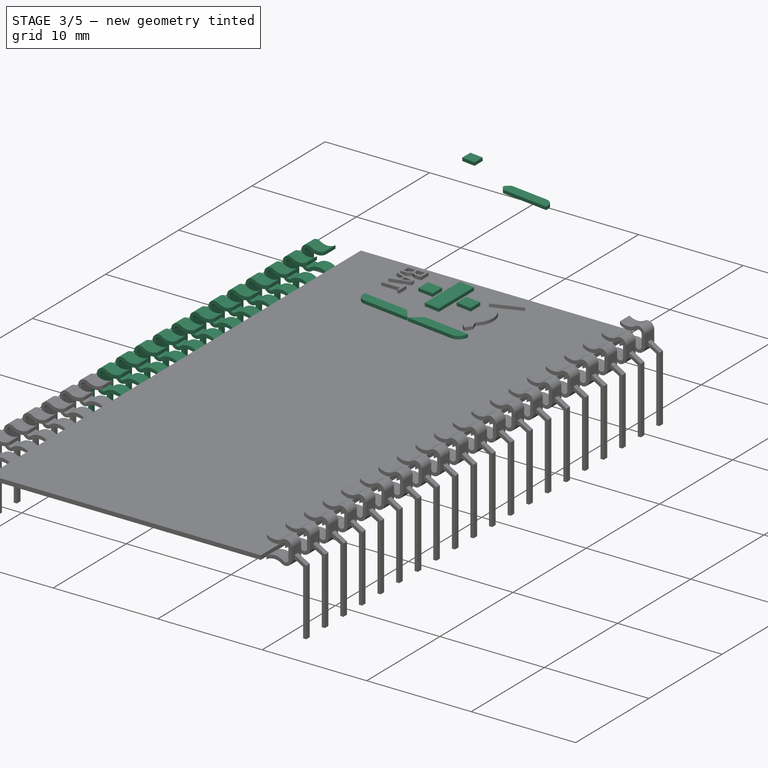
[diagram: stage 3 of 5 — iso view after this stage's code; geometry added in this stage tinted green]
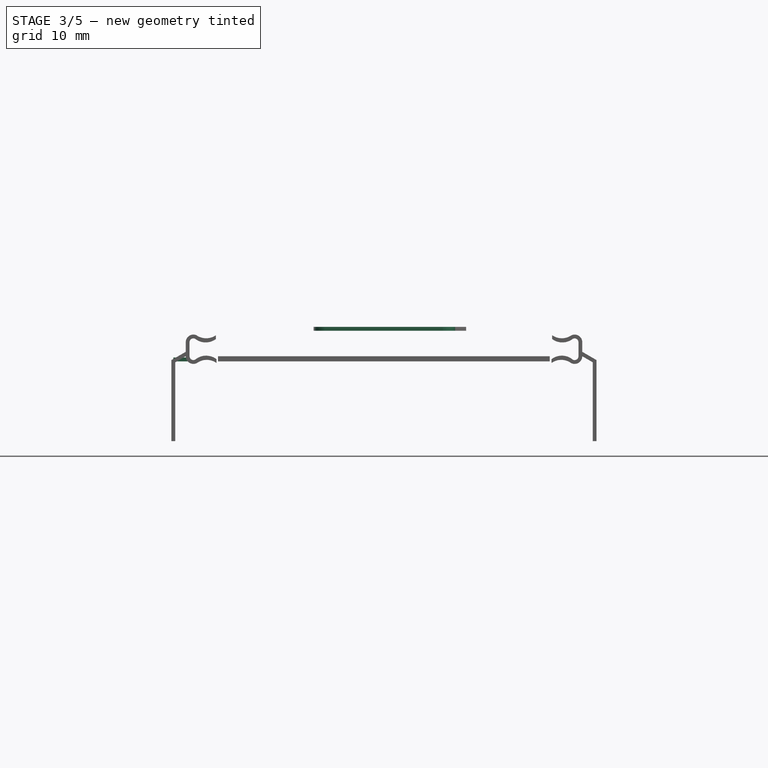
[diagram: stage 3 of 5 — front view after this stage's code; geometry added in this stage tinted green]
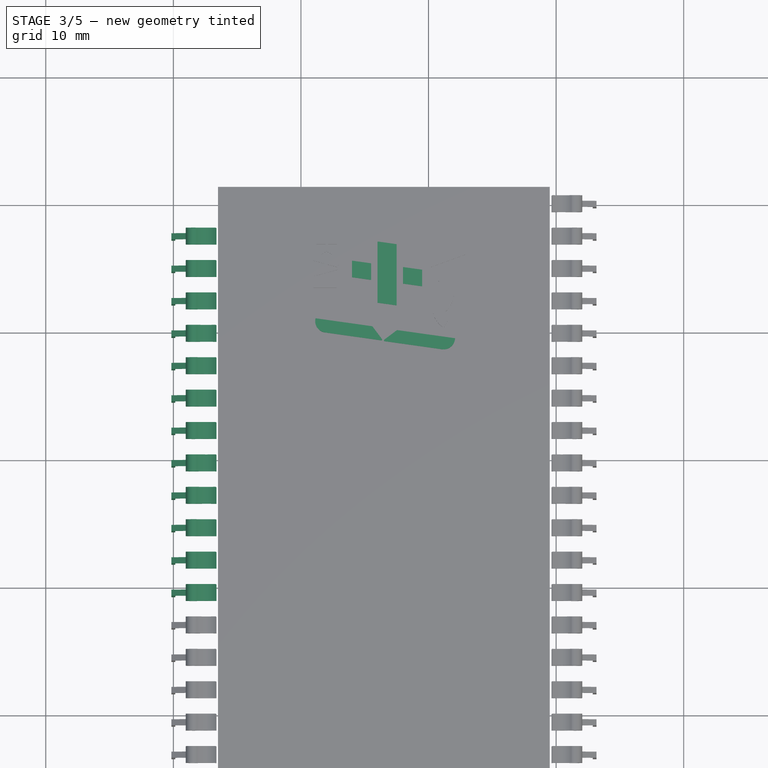
[diagram: stage 3 of 5 — top view after this stage's code; geometry added in this stage tinted green]
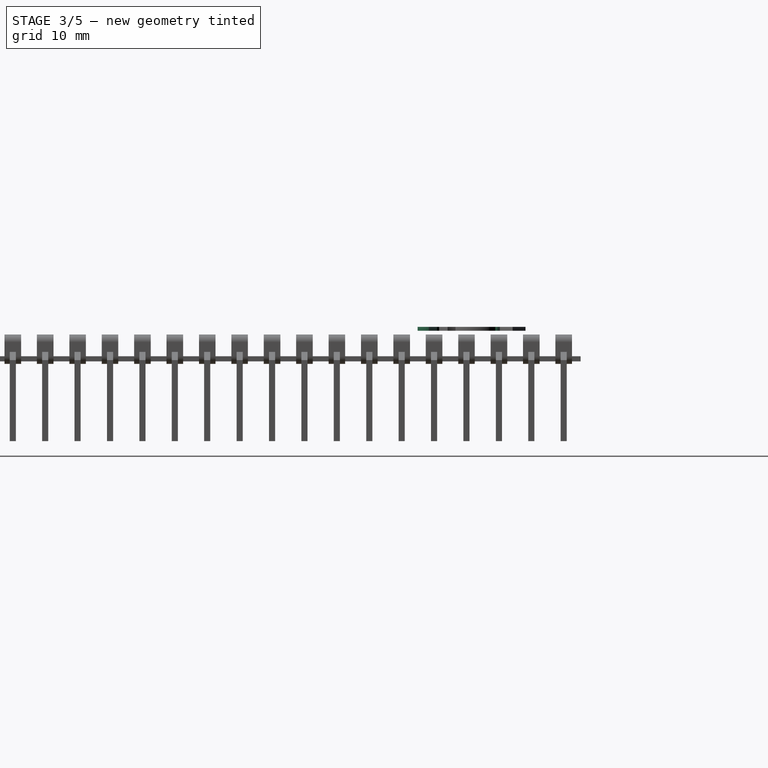
[diagram: stage 3 of 5 — right view after this stage's code; geometry added in this stage tinted green]
FEATURE [Part::Box] Box183  label="Kub140"
  AttacherType = Attacher::AttachEngine3D
  Height = 0.3
  Length = 5
  Placement = pos=(9,18,0) rot=(0,0,-1;0.139626rad)
  Width = 1
FEATURE [Part::Chamfer] Chamfer070
  Base = -> Box183
  Edges = 1 edges r=0.4: [Edge1]
FEATURE [Part::Chamfer] Chamfer071
  Base = -> Chamfer070
  Edges = 1 edges r=0.4: [Edge3]
FEATURE [Part::Fillet] Fillet013
  Base = -> Chamfer071
  Edges = 1 edges r=0.9: [Edge17]
  Placement = pos=(-3.36,-0.8,0) rot=(0,0,1;0rad)
FEATURE [Part::Box] Box192  label="Kub149"
  AttacherType = Attacher::AttachEngine3D
  Height = 0.3
  Length = 1.3
  Placement = pos=(0,20,0) rot=(0,0,1;0rad)
  Width = 1.3
FEATURE [Part::Box] Box193  label="Kub150"
  AttacherType = Attacher::AttachEngine3D
  Height = 0.3
  Length = 2
  Placement = pos=(-0.5,19.25,0) rot=(0,0,-1;0.139626rad)
  Width = 1
FEATURE [Part::Box] Box194  label="Kub151"
  AttacherType = Attacher::AttachEngine3D
  Height = 0.3
  Length = 2
  Placement = pos=(-0.5,21.37,0) rot=(0,0,-1;0.139626rad)
  Width = 1
FEATURE [Part::Cut] Cut025
  Base = -> Box192
  Tool = -> Box194
FEATURE [Part::Cut] Cut026
  Base = -> Cut025
  Tool = -> Box193
FEATURE [Part::Box] Box196  label="Kub153"
  AttacherType = Attacher::AttachEngine3D
  Height = 0.3
  Length = 5.4
  Placement = pos=(0,13,0) rot=(0,0,-1;0.139626rad)
  Width = 1
FEATURE [Part::Box] Box198  label="Kub155"
  AttacherType = Attacher::AttachEngine3D
  Height = 0.3
  Length = 5.5
  Placement = pos=(6,12,0) rot=(0,0,-1;0.139626rad)
  Width = 1
FEATURE [Part::Chamfer] Chamfer072
  Base = -> Box196
  Edges = 1 edges r=0.9: [Edge7]
FEATURE [Part::Chamfer] Chamfer
  Base = -> Box198
  Edges = 1 edges r=0.9: [Edge3]
FEATURE [Part::Fillet] Fillet014
  Base = -> Chamfer
  Edges = 1 edges r=0.9: [Edge12]
  Placement = pos=(-0.5,0.2,0) rot=(0,0,1;0rad)
FEATURE [Part::Fillet] Fillet015
  Base = -> Chamfer072
  Edges = 1 edges r=0.9: [Edge12]
FEATURE [Part::MultiFuse] Fusion083  label="Digit000"
  Placement = pos=(11,-23,2.4) rot=(0,0,1;0rad)
  Shapes = -> [Fillet014,Fillet015]
FEATURE [Part::Box] Box199  label="Kub156"
  AttacherType = Attacher::AttachEngine3D
  Height = 0.3
  Length = 1.5
  Placement = pos=(11,12,2.2) rot=(0,0,1;0rad)
  Width = 1.5
FEATURE [Part::Box] Box200  label="Kub157"
  AttacherType = Attacher::AttachEngine3D
  Height = 0.3
  Length = 2
  Placement = pos=(10.5,10.76,2.2) rot=(0,0,-1;0.139626rad)
  Width = 1.5
FEATURE [Part::Box] Box201  label="Kub158"
  AttacherType = Attacher::AttachEngine3D
  Height = 0.3
  Length = 2
  Placement = pos=(10.7,13.55,2.2) rot=(0,0,-1;0.139626rad)
  Width = 1.5
FEATURE [Part::Cut] Cut027
  Base = -> Box199
  Tool = -> Box201
FEATURE [Part::Cut] Cut028
  Base = -> Cut027
  Placement = pos=(3,-18,0.2) rot=(0,0,1;0rad)
  Tool = -> Box200
FEATURE [Part::Box] Box202  label="Kub159"
  AttacherType = Attacher::AttachEngine3D
  Height = 0.3
  Length = 1.5
  Placement = pos=(11,12,2.2) rot=(0,0,1;0rad)
  Width = 1.5
FEATURE [Part::Box] Box203  label="Kub160"
  AttacherType = Attacher::AttachEngine3D
  Height = 0.3
  Length = 2
  Placement = pos=(10.5,10.76,2.2) rot=(0,0,-1;0.139626rad)
  Width = 1.5
FEATURE [Part::Box] Box204  label="Kub161"
  AttacherType = Attacher::AttachEngine3D
  Height = 0.3
  Length = 2
  Placement = pos=(10.7,13.55,2.2) rot=(0,0,-1;0.139626rad)
  Width = 1.5
FEATURE [Part::Cut] Cut029
  Base = -> Box202
  Tool = -> Box204
FEATURE [Part::Cut] Cut030
  Base = -> Cut029
  Placement = pos=(7,-18.5,0.2) rot=(0,0,1;0rad)
  Tool = -> Box203
FEATURE [Part::Box] Box205  label="Kub162"
  AttacherType = Attacher::AttachEngine3D
  Height = 0.3
  Length = 1.5
  Placement = pos=(0,10,2.2) rot=(0,0,1;0rad)
  Width = 5
FEATURE [Part::Box] Box206  label="Kub163"
  AttacherType = Attacher::AttachEngine3D
  Height = 0.3
  Length = 3
  Placement = pos=(-1,15.15,2.2) rot=(0,0,-1;0.139626rad)
  Width = 5
FEATURE [Part::Box] Box207  label="Kub164"
  AttacherType = Attacher::AttachEngine3D
  Height = 0.3
  Length = 3
  Placement = pos=(-1,5.3,2.2) rot=(0,0,-1;0.139626rad)
  Width = 5
FEATURE [Part::Cut] Cut031
  Base = -> Box205
  Tool = -> Box206
FEATURE [Part::Cut] Cut032
  Base = -> Cut031
  Placement = pos=(16,-18,0.2) rot=(0,0,1;0rad)
  Tool = -> Box207
FEATURE [Sketcher::SketchObject] Sketch042
  MapMode = 5
  sketch-geometry (12):
    g0: ArcOfCircle CenterX=0.3 CenterY=1.4 CenterZ=0 NormalX=0 NormalY=0 NormalZ=1 Radius=0.3 StartAngle=1.07185 EndAngle=3.14159
    g1: ArcOfCircle CenterX=0.3 CenterY=0.3 CenterZ=0 NormalX=0 NormalY=0 NormalZ=1 Radius=0.3 StartAngle=3.14159 EndAngle=5.21325
    g2: ArcOfCircle CenterX=1.26236 CenterY=2.71881 CenterZ=0 NormalX=0 NormalY=0 NormalZ=1 Radius=1.33577 StartAngle=4.05255 EndAngle=5.35633
    g3: ArcOfCircle CenterX=0.3 CenterY=1.4 CenterZ=0 NormalX=0 NormalY=0 NormalZ=1 Radius=0.6 StartAngle=1.16195 EndAngle=3.14159
    g4: ArcOfCircle CenterX=1.30141 CenterY=3.03549 CenterZ=0 NormalX=0 NormalY=0 NormalZ=1 Radius=1.32631 StartAngle=4.09955 EndAngle=5.32523
    g5: ArcOfCircle CenterX=0.3 CenterY=0.3 CenterZ=0 NormalX=0 NormalY=0 NormalZ=1 Radius=0.6 StartAngle=3.14159 EndAngle=5.20697
    g6: ArcOfCircle CenterX=1.29932 CenterY=-0.992274 CenterZ=0 NormalX=0 NormalY=0 NormalZ=1 Radius=1.33812 StartAngle=0.919458 EndAngle=2.26419
    g7: ArcOfCircle CenterX=1.34768 CenterY=-1.29457 CenterZ=0 NormalX=0 NormalY=0 NormalZ=1 Radius=1.31124 StartAngle=0.949854 EndAngle=2.19174
    g8: LineSegment StartX=2.11056 StartY=0.071899 StartZ=0 EndX=2.11056 EndY=-0.228101 EndZ=0
    g9: LineSegment StartX=2.06429 StartY=1.95055 StartZ=0 EndX=2.06429 EndY=1.65055 EndZ=0
    g10: LineSegment StartX=0 StartY=1.4 StartZ=0 EndX=0 EndY=0.3 EndZ=0
    g11: LineSegment StartX=-0.3 StartY=1.4 StartZ=0 EndX=-0.3 EndY=0.3 EndZ=0
  constraints (52):
    c: Radius(g0) = 0.3
    c: Radius(g2) = 1.33577
    c: Radius(g1) = 0.3
    c: DistanceX(g-1,g1) = 0.3
    c: DistanceY(g-1,g1) = 0.3
    c: Radius(g5) = 0.6
    c: DistanceX(g-1,g5) = 0.3
    c: DistanceY(g-1,g5) = 0.3
    c: DistanceY(g-1,g0) = 1.4
    c: DistanceX(g-1,g0) = 0.3
    c: Radius(g3) = 0.6
    c: DistanceX(g0,g3) = 0.3
    c: DistanceY(g-1,g3) = 1.4
    c: DistanceY(g5,g7) = 0
    c: DistanceX(g5,g7) = 0
    c: DistanceY(g1,g6) = 0
    c: DistanceX(g1,g6) = 0
    c: DistanceY(g0,g2) = 0
    c: DistanceX(g0,g2) = 0
    c: DistanceY(g3,g4) = 0
    c: DistanceX(g3,g4) = 0
    c: Radius(g4) = 1.32631
    c: Radius(g6) = 1.33812
    c: Radius(g7) = 1.31124
    c: DistanceY(g-1,g1) = 0.3
    c: DistanceY(g-1,g5) = 0.3
    c: DistanceX(g-1,g5) = 0.584797
    c: DistanceX(g1,g1) = 0.444055
    c: DistanceY(g1,g0) = 1.1
    c: DistanceY(g5,g3) = 1.1
    c: DistanceX(g0,g0) = 0.443549
    c: DistanceY(g0,g3) = 0.550548
    c: DistanceY(g7,g6) = 0.3
    c: DistanceY(g2,g4) = 0.3
    c: DistanceY(g3,g4) = 0
    c: DistanceX(g3,g4) = 1.52576
    c: DistanceX(g2,g4) = 0
    c: DistanceX(g5,g7) = 1.52576
    c: DistanceY(g7,g5) = 0
    c: DistanceX(g6,g7) = 0
    c: Coincident(g8,g6)
    c: DistanceY(g8,g8) = 0.3
    c: DistanceX(g7,g8) = 0
    c: Coincident(g9,g4)
    c: DistanceY(g9,g9) = 0.3
    c: DistanceX(g2,g9) = 0
    c: Coincident(g10,g0)
    c: DistanceY(g10,g10) = 1.1
    c: DistanceX(g1,g10) = 0
    c: Coincident(g11,g3)
    c: DistanceY(g11,g11) = 1.1
    c: DistanceX(g5,g11) = 0
FEATURE [PartDesign::Pad] Pad042  label="Pad122"
  Length = 1.3
  Length2 = 100
  Profile = -> Sketch042
  Type = 0
FEATURE [Part::Box] Box236  label="Leg0002"
  AttacherType = Attacher::AttachEngine3D
  Height = 0.48
  Length = 0.3
  Placement = pos=(-1.42,-6.35,0.41) rot=(0,0,1;0rad)
  Width = 6.35
FEATURE [Part::Box] Box237  label="Kub192"
  AttacherType = Attacher::AttachEngine3D
  Height = 0.48
  Length = 0.3
  Placement = pos=(-1.42,0,0.41) rot=(0,0,-1;1.0472rad)
  Width = 1.4
FEATURE [Part::MultiFuse] Fusion086  label="Leg0003"
  Placement = pos=(1.27,-1.89,0.1) rot=(1,0,0;1.5708rad)
  Shapes = -> [Pad042,Box237,Box236]
FEATURE [Sketcher::SketchObject] Sketch043
  MapMode = 5
  sketch-geometry (12):
    g0: ArcOfCircle CenterX=0.3 CenterY=1.4 CenterZ=0 NormalX=0 NormalY=0 NormalZ=1 Radius=0.3 StartAngle=1.07185 EndAngle=3.14159
    g1: ArcOfCircle CenterX=0.3 CenterY=0.3 CenterZ=0 NormalX=0 NormalY=0 NormalZ=1 Radius=0.3 StartAngle=3.14159 EndAngle=5.21325
    g2: ArcOfCircle CenterX=1.26236 CenterY=2.71881 CenterZ=0 NormalX=0 NormalY=0 NormalZ=1 Radius=1.33577 StartAngle=4.05255 EndAngle=5.35633
    g3: ArcOfCircle CenterX=0.3 CenterY=1.4 CenterZ=0 NormalX=0 NormalY=0 NormalZ=1 Radius=0.6 StartAngle=1.16195 EndAngle=3.14159
    g4: ArcOfCircle CenterX=1.30141 CenterY=3.03549 CenterZ=0 NormalX=0 NormalY=0 NormalZ=1 Radius=1.32631 StartAngle=4.09955 EndAngle=5.32523
    g5: ArcOfCircle CenterX=0.3 CenterY=0.3 CenterZ=0 NormalX=0 NormalY=0 NormalZ=1 Radius=0.6 StartAngle=3.14159 EndAngle=5.20697
    g6: ArcOfCircle CenterX=1.29932 CenterY=-0.992274 CenterZ=0 NormalX=0 NormalY=0 NormalZ=1 Radius=1.33812 StartAngle=0.919458 EndAngle=2.26419
    g7: ArcOfCircle CenterX=1.34768 CenterY=-1.29457 CenterZ=0 NormalX=0 NormalY=0 NormalZ=1 Radius=1.31124 StartAngle=0.949854 EndAngle=2.19174
    g8: LineSegment StartX=2.11056 StartY=0.071899 StartZ=0 EndX=2.11056 EndY=-0.228101 EndZ=0
    g9: LineSegment StartX=2.06429 StartY=1.95055 StartZ=0 EndX=2.06429 EndY=1.65055 EndZ=0
    g10: LineSegment StartX=0 StartY=1.4 StartZ=0 EndX=0 EndY=0.3 EndZ=0
    g11: LineSegment StartX=-0.3 StartY=1.4 StartZ=0 EndX=-0.3 EndY=0.3 EndZ=0
  constraints (52):
    c: Radius(g0) = 0.3
    c: Radius(g2) = 1.33577
    c: Radius(g1) = 0.3
    c: DistanceX(g-1,g1) = 0.3
    c: DistanceY(g-1,g1) = 0.3
    c: Radius(g5) = 0.6
    c: DistanceX(g-1,g5) = 0.3
    c: DistanceY(g-1,g5) = 0.3
    c: DistanceY(g-1,g0) = 1.4
    c: DistanceX(g-1,g0) = 0.3
    c: Radius(g3) = 0.6
    c: DistanceX(g0,g3) = 0.3
    c: DistanceY(g-1,g3) = 1.4
    c: DistanceY(g5,g7) = 0
    c: DistanceX(g5,g7) = 0
    c: DistanceY(g1,g6) = 0
    c: DistanceX(g1,g6) = 0
    c: DistanceY(g0,g2) = 0
    c: DistanceX(g0,g2) = 0
    c: DistanceY(g3,g4) = 0
    c: DistanceX(g3,g4) = 0
    c: Radius(g4) = 1.32631
    c: Radius(g6) = 1.33812
    c: Radius(g7) = 1.31124
    c: DistanceY(g-1,g1) = 0.3
    c: DistanceY(g-1,g5) = 0.3
    c: DistanceX(g-1,g5) = 0.584797
    c: DistanceX(g1,g1) = 0.444055
    c: DistanceY(g1,g0) = 1.1
    c: DistanceY(g5,g3) = 1.1
    c: DistanceX(g0,g0) = 0.443549
    c: DistanceY(g0,g3) = 0.550548
    c: DistanceY(g7,g6) = 0.3
    c: DistanceY(g2,g4) = 0.3
    c: DistanceY(g3,g4) = 0
    c: DistanceX(g3,g4) = 1.52576
    c: DistanceX(g2,g4) = 0
    c: DistanceX(g5,g7) = 1.52576
    c: DistanceY(g7,g5) = 0
    c: DistanceX(g6,g7) = 0
    c: Coincident(g8,g6)
    c: DistanceY(g8,g8) = 0.3
    c: DistanceX(g7,g8) = 0
    c: Coincident(g9,g4)
    c: DistanceY(g9,g9) = 0.3
    c: DistanceX(g2,g9) = 0
    c: Coincident(g10,g0)
    c: DistanceY(g10,g10) = 1.1
    c: DistanceX(g1,g10) = 0
    c: Coincident(g11,g3)
    c: DistanceY(g11,g11) = 1.1
    c: DistanceX(g5,g11) = 0
FEATURE [PartDesign::Pad] Pad043  label="Pad123"
  Length = 1.3
  Length2 = 100
  Profile = -> Sketch043
  Type = 0
FEATURE [Part::Box] Box238  label="Leg0004"
  AttacherType = Attacher::AttachEngine3D
  Height = 0.48
  Length = 0.3
  Placement = pos=(-1.42,-6.35,0.41) rot=(0,0,1;0rad)
  Width = 6.35
FEATURE [Part::Box] Box239  label="Kub193"
  AttacherType = Attacher::AttachEngine3D
  Height = 0.48
  Length = 0.3
  Placement = pos=(-1.42,0,0.41) rot=(0,0,-1;1.0472rad)
  Width = 1.4
FEATURE [Part::MultiFuse] Fusion087  label="Leg0005"
  Placement = pos=(1.27,-4.43,0.1) rot=(1,0,0;1.5708rad)
  Shapes = -> [Pad043,Box239,Box238]
FEATURE [Sketcher::SketchObject] Sketch044
  MapMode = 5
  sketch-geometry (12):
    g0: ArcOfCircle CenterX=0.3 CenterY=1.4 CenterZ=0 NormalX=0 NormalY=0 NormalZ=1 Radius=0.3 StartAngle=1.07185 EndAngle=3.14159
    g1: ArcOfCircle CenterX=0.3 CenterY=0.3 CenterZ=0 NormalX=0 NormalY=0 NormalZ=1 Radius=0.3 StartAngle=3.14159 EndAngle=5.21325
    g2: ArcOfCircle CenterX=1.26236 CenterY=2.71881 CenterZ=0 NormalX=0 NormalY=0 NormalZ=1 Radius=1.33577 StartAngle=4.05255 EndAngle=5.35633
    g3: ArcOfCircle CenterX=0.3 CenterY=1.4 CenterZ=0 NormalX=0 NormalY=0 NormalZ=1 Radius=0.6 StartAngle=1.16195 EndAngle=3.14159
    g4: ArcOfCircle CenterX=1.30141 CenterY=3.03549 CenterZ=0 NormalX=0 NormalY=0 NormalZ=1 Radius=1.32631 StartAngle=4.09955 EndAngle=5.32523
    g5: ArcOfCircle CenterX=0.3 CenterY=0.3 CenterZ=0 NormalX=0 NormalY=0 NormalZ=1 Radius=0.6 StartAngle=3.14159 EndAngle=5.20697
    g6: ArcOfCircle CenterX=1.29932 CenterY=-0.992274 CenterZ=0 NormalX=0 NormalY=0 NormalZ=1 Radius=1.33812 StartAngle=0.919458 EndAngle=2.26419
    g7: ArcOfCircle CenterX=1.34768 CenterY=-1.29457 CenterZ=0 NormalX=0 NormalY=0 NormalZ=1 Radius=1.31124 StartAngle=0.949854 EndAngle=2.19174
    g8: LineSegment StartX=2.11056 StartY=0.071899 StartZ=0 EndX=2.11056 EndY=-0.228101 EndZ=0
    g9: LineSegment StartX=2.06429 StartY=1.95055 StartZ=0 EndX=2.06429 EndY=1.65055 EndZ=0
    g10: LineSegment StartX=0 StartY=1.4 StartZ=0 EndX=0 EndY=0.3 EndZ=0
    g11: LineSegment StartX=-0.3 StartY=1.4 StartZ=0 EndX=-0.3 EndY=0.3 EndZ=0
  constraints (52):
    c: Radius(g0) = 0.3
    c: Radius(g2) = 1.33577
    c: Radius(g1) = 0.3
    c: DistanceX(g-1,g1) = 0.3
    c: DistanceY(g-1,g1) = 0.3
    c: Radius(g5) = 0.6
    c: DistanceX(g-1,g5) = 0.3
    c: DistanceY(g-1,g5) = 0.3
    c: DistanceY(g-1,g0) = 1.4
    c: DistanceX(g-1,g0) = 0.3
    c: Radius(g3) = 0.6
    c: DistanceX(g0,g3) = 0.3
    c: DistanceY(g-1,g3) = 1.4
    c: DistanceY(g5,g7) = 0
    c: DistanceX(g5,g7) = 0
    c: DistanceY(g1,g6) = 0
    c: DistanceX(g1,g6) = 0
    c: DistanceY(g0,g2) = 0
    c: DistanceX(g0,g2) = 0
    c: DistanceY(g3,g4) = 0
    c: DistanceX(g3,g4) = 0
    c: Radius(g4) = 1.32631
    c: Radius(g6) = 1.33812
    c: Radius(g7) = 1.31124
    c: DistanceY(g-1,g1) = 0.3
    c: DistanceY(g-1,g5) = 0.3
    c: DistanceX(g-1,g5) = 0.584797
    c: DistanceX(g1,g1) = 0.444055
    c: DistanceY(g1,g0) = 1.1
    c: DistanceY(g5,g3) = 1.1
    c: DistanceX(g0,g0) = 0.443549
    c: DistanceY(g0,g3) = 0.550548
    c: DistanceY(g7,g6) = 0.3
    c: DistanceY(g2,g4) = 0.3
    c: DistanceY(g3,g4) = 0
    c: DistanceX(g3,g4) = 1.52576
    c: DistanceX(g2,g4) = 0
    c: DistanceX(g5,g7) = 1.52576
    c: DistanceY(g7,g5) = 0
    c: DistanceX(g6,g7) = 0
    c: Coincident(g8,g6)
    c: DistanceY(g8,g8) = 0.3
    c: DistanceX(g7,g8) = 0
    c: Coincident(g9,g4)
    c: DistanceY(g9,g9) = 0.3
    c: DistanceX(g2,g9) = 0
    c: Coincident(g10,g0)
    c: DistanceY(g10,g10) = 1.1
    c: DistanceX(g1,g10) = 0
    c: Coincident(g11,g3)
    c: DistanceY(g11,g11) = 1.1
    c: DistanceX(g5,g11) = 0
FEATURE [PartDesign::Pad] Pad044  label="Pad124"
  Length = 1.3
  Length2 = 100
  Profile = -> Sketch044
  Type = 0
FEATURE [Part::Box] Box240  label="Leg0006"
  AttacherType = Attacher::AttachEngine3D
  Height = 0.48
  Length = 0.3
  Placement = pos=(-1.42,-6.35,0.41) rot=(0,0,1;0rad)
  Width = 6.35
FEATURE [Part::Box] Box241  label="Kub194"
  AttacherType = Attacher::AttachEngine3D
  Height = 0.48
  Length = 0.3
  Placement = pos=(-1.42,0,0.41) rot=(0,0,-1;1.0472rad)
  Width = 1.4
FEATURE [Part::MultiFuse] Fusion088  label="Leg0007"
  Placement = pos=(1.27,-6.97,0.1) rot=(1,0,0;1.5708rad)
  Shapes = -> [Pad044,Box241,Box240]
FEATURE [Sketcher::SketchObject] Sketch045
  MapMode = 5
  sketch-geometry (12):
    g0: ArcOfCircle CenterX=0.3 CenterY=1.4 CenterZ=0 NormalX=0 NormalY=0 NormalZ=1 Radius=0.3 StartAngle=1.07185 EndAngle=3.14159
    g1: ArcOfCircle CenterX=0.3 CenterY=0.3 CenterZ=0 NormalX=0 NormalY=0 NormalZ=1 Radius=0.3 StartAngle=3.14159 EndAngle=5.21325
    g2: ArcOfCircle CenterX=1.26236 CenterY=2.71881 CenterZ=0 NormalX=0 NormalY=0 NormalZ=1 Radius=1.33577 StartAngle=4.05255 EndAngle=5.35633
    g3: ArcOfCircle CenterX=0.3 CenterY=1.4 CenterZ=0 NormalX=0 NormalY=0 NormalZ=1 Radius=0.6 StartAngle=1.16195 EndAngle=3.14159
    g4: ArcOfCircle CenterX=1.30141 CenterY=3.03549 CenterZ=0 NormalX=0 NormalY=0 NormalZ=1 Radius=1.32631 StartAngle=4.09955 EndAngle=5.32523
    g5: ArcOfCircle CenterX=0.3 CenterY=0.3 CenterZ=0 NormalX=0 NormalY=0 NormalZ=1 Radius=0.6 StartAngle=3.14159 EndAngle=5.20697
    g6: ArcOfCircle CenterX=1.29932 CenterY=-0.992274 CenterZ=0 NormalX=0 NormalY=0 NormalZ=1 Radius=1.33812 StartAngle=0.919458 EndAngle=2.26419
    g7: ArcOfCircle CenterX=1.34768 CenterY=-1.29457 CenterZ=0 NormalX=0 NormalY=0 NormalZ=1 Radius=1.31124 StartAngle=0.949854 EndAngle=2.19174
    g8: LineSegment StartX=2.11056 StartY=0.071899 StartZ=0 EndX=2.11056 EndY=-0.228101 EndZ=0
    g9: LineSegment StartX=2.06429 StartY=1.95055 StartZ=0 EndX=2.06429 EndY=1.65055 EndZ=0
    g10: LineSegment StartX=0 StartY=1.4 StartZ=0 EndX=0 EndY=0.3 EndZ=0
    g11: LineSegment StartX=-0.3 StartY=1.4 StartZ=0 EndX=-0.3 EndY=0.3 EndZ=0
  constraints (52):
    c: Radius(g0) = 0.3
    c: Radius(g2) = 1.33577
    c: Radius(g1) = 0.3
    c: DistanceX(g-1,g1) = 0.3
    c: DistanceY(g-1,g1) = 0.3
    c: Radius(g5) = 0.6
    c: DistanceX(g-1,g5) = 0.3
    c: DistanceY(g-1,g5) = 0.3
    c: DistanceY(g-1,g0) = 1.4
    c: DistanceX(g-1,g0) = 0.3
    c: Radius(g3) = 0.6
    c: DistanceX(g0,g3) = 0.3
    c: DistanceY(g-1,g3) = 1.4
    c: DistanceY(g5,g7) = 0
    c: DistanceX(g5,g7) = 0
    c: DistanceY(g1,g6) = 0
    c: DistanceX(g1,g6) = 0
    c: DistanceY(g0,g2) = 0
    c: DistanceX(g0,g2) = 0
    c: DistanceY(g3,g4) = 0
    c: DistanceX(g3,g4) = 0
    c: Radius(g4) = 1.32631
    c: Radius(g6) = 1.33812
    c: Radius(g7) = 1.31124
    c: DistanceY(g-1,g1) = 0.3
    c: DistanceY(g-1,g5) = 0.3
    c: DistanceX(g-1,g5) = 0.584797
    c: DistanceX(g1,g1) = 0.444055
    c: DistanceY(g1,g0) = 1.1
    c: DistanceY(g5,g3) = 1.1
    c: DistanceX(g0,g0) = 0.443549
    c: DistanceY(g0,g3) = 0.550548
    c: DistanceY(g7,g6) = 0.3
    c: DistanceY(g2,g4) = 0.3
    c: DistanceY(g3,g4) = 0
    c: DistanceX(g3,g4) = 1.52576
    c: DistanceX(g2,g4) = 0
    c: DistanceX(g5,g7) = 1.52576
    c: DistanceY(g7,g5) = 0
    c: DistanceX(g6,g7) = 0
    c: Coincident(g8,g6)
    c: DistanceY(g8,g8) = 0.3
    c: DistanceX(g7,g8) = 0
    c: Coincident(g9,g4)
    c: DistanceY(g9,g9) = 0.3
    c: DistanceX(g2,g9) = 0
    c: Coincident(g10,g0)
    c: DistanceY(g10,g10) = 1.1
    c: DistanceX(g1,g10) = 0
    c: Coincident(g11,g3)
    c: DistanceY(g11,g11) = 1.1
    c: DistanceX(g5,g11) = 0
FEATURE [PartDesign::Pad] Pad045  label="Pad125"
  Length = 1.3
  Length2 = 100
  Profile = -> Sketch045
  Type = 0
FEATURE [Part::Box] Box242  label="Leg0008"
  AttacherType = Attacher::AttachEngine3D
  Height = 0.48
  Length = 0.3
  Placement = pos=(-1.42,-6.35,0.41) rot=(0,0,1;0rad)
  Width = 6.35
FEATURE [Part::Box] Box243  label="Kub195"
  AttacherType = Attacher::AttachEngine3D
  Height = 0.48
  Length = 0.3
  Placement = pos=(-1.42,0,0.41) rot=(0,0,-1;1.0472rad)
  Width = 1.4
FEATURE [Part::MultiFuse] Fusion089  label="Leg0009"
  Placement = pos=(1.27,-9.51,0.1) rot=(1,0,0;1.5708rad)
  Shapes = -> [Pad045,Box243,Box242]
FEATURE [Sketcher::SketchObject] Sketch046
  MapMode = 5
  sketch-geometry (12):
    g0: ArcOfCircle CenterX=0.3 CenterY=1.4 CenterZ=0 NormalX=0 NormalY=0 NormalZ=1 Radius=0.3 StartAngle=1.07185 EndAngle=3.14159
    g1: ArcOfCircle CenterX=0.3 CenterY=0.3 CenterZ=0 NormalX=0 NormalY=0 NormalZ=1 Radius=0.3 StartAngle=3.14159 EndAngle=5.21325
    g2: ArcOfCircle CenterX=1.26236 CenterY=2.71881 CenterZ=0 NormalX=0 NormalY=0 NormalZ=1 Radius=1.33577 StartAngle=4.05255 EndAngle=5.35633
    g3: ArcOfCircle CenterX=0.3 CenterY=1.4 CenterZ=0 NormalX=0 NormalY=0 NormalZ=1 Radius=0.6 StartAngle=1.16195 EndAngle=3.14159
    g4: ArcOfCircle CenterX=1.30141 CenterY=3.03549 CenterZ=0 NormalX=0 NormalY=0 NormalZ=1 Radius=1.32631 StartAngle=4.09955 EndAngle=5.32523
    g5: ArcOfCircle CenterX=0.3 CenterY=0.3 CenterZ=0 NormalX=0 NormalY=0 NormalZ=1 Radius=0.6 StartAngle=3.14159 EndAngle=5.20697
    g6: ArcOfCircle CenterX=1.29932 CenterY=-0.992274 CenterZ=0 NormalX=0 NormalY=0 NormalZ=1 Radius=1.33812 StartAngle=0.919458 EndAngle=2.26419
    g7: ArcOfCircle CenterX=1.34768 CenterY=-1.29457 CenterZ=0 NormalX=0 NormalY=0 NormalZ=1 Radius=1.31124 StartAngle=0.949854 EndAngle=2.19174
    g8: LineSegment StartX=2.11056 StartY=0.071899 StartZ=0 EndX=2.11056 EndY=-0.228101 EndZ=0
    g9: LineSegment StartX=2.06429 StartY=1.95055 StartZ=0 EndX=2.06429 EndY=1.65055 EndZ=0
    g10: LineSegment StartX=0 StartY=1.4 StartZ=0 EndX=0 EndY=0.3 EndZ=0
    g11: LineSegment StartX=-0.3 StartY=1.4 StartZ=0 EndX=-0.3 EndY=0.3 EndZ=0
  constraints (52):
    c: Radius(g0) = 0.3
    c: Radius(g2) = 1.33577
    c: Radius(g1) = 0.3
    c: DistanceX(g-1,g1) = 0.3
    c: DistanceY(g-1,g1) = 0.3
    c: Radius(g5) = 0.6
    c: DistanceX(g-1,g5) = 0.3
    c: DistanceY(g-1,g5) = 0.3
    c: DistanceY(g-1,g0) = 1.4
    c: DistanceX(g-1,g0) = 0.3
    c: Radius(g3) = 0.6
    c: DistanceX(g0,g3) = 0.3
    c: DistanceY(g-1,g3) = 1.4
    c: DistanceY(g5,g7) = 0
    c: DistanceX(g5,g7) = 0
    c: DistanceY(g1,g6) = 0
    c: DistanceX(g1,g6) = 0
    c: DistanceY(g0,g2) = 0
    c: DistanceX(g0,g2) = 0
    c: DistanceY(g3,g4) = 0
    c: DistanceX(g3,g4) = 0
    c: Radius(g4) = 1.32631
    c: Radius(g6) = 1.33812
    c: Radius(g7) = 1.31124
    c: DistanceY(g-1,g1) = 0.3
    c: DistanceY(g-1,g5) = 0.3
    c: DistanceX(g-1,g5) = 0.584797
    c: DistanceX(g1,g1) = 0.444055
    c: DistanceY(g1,g0) = 1.1
    c: DistanceY(g5,g3) = 1.1
    c: DistanceX(g0,g0) = 0.443549
    c: DistanceY(g0,g3) = 0.550548
    c: DistanceY(g7,g6) = 0.3
    c: DistanceY(g2,g4) = 0.3
    c: DistanceY(g3,g4) = 0
    c: DistanceX(g3,g4) = 1.52576
    c: DistanceX(g2,g4) = 0
    c: DistanceX(g5,g7) = 1.52576
    c: DistanceY(g7,g5) = 0
    c: DistanceX(g6,g7) = 0
    c: Coincident(g8,g6)
    c: DistanceY(g8,g8) = 0.3
    c: DistanceX(g7,g8) = 0
    c: Coincident(g9,g4)
    c: DistanceY(g9,g9) = 0.3
    c: DistanceX(g2,g9) = 0
    c: Coincident(g10,g0)
    c: DistanceY(g10,g10) = 1.1
    c: DistanceX(g1,g10) = 0
    c: Coincident(g11,g3)
    c: DistanceY(g11,g11) = 1.1
    c: DistanceX(g5,g11) = 0
FEATURE [PartDesign::Pad] Pad046  label="Pad126"
  Length = 1.3
  Length2 = 100
  Profile = -> Sketch046
  Type = 0
FEATURE [Part::Box] Box244  label="Leg0010"
  AttacherType = Attacher::AttachEngine3D
  Height = 0.48
  Length = 0.3
  Placement = pos=(-1.42,-6.35,0.41) rot=(0,0,1;0rad)
  Width = 6.35
FEATURE [Part::Box] Box245  label="Kub196"
  AttacherType = Attacher::AttachEngine3D
  Height = 0.48
  Length = 0.3
  Placement = pos=(-1.42,0,0.41) rot=(0,0,-1;1.0472rad)
  Width = 1.4
FEATURE [Part::MultiFuse] Fusion090  label="Leg0011"
  Placement = pos=(1.27,-12.05,0.1) rot=(1,0,0;1.5708rad)
  Shapes = -> [Pad046,Box245,Box244]
FEATURE [Sketcher::SketchObject] Sketch047
  MapMode = 5
  sketch-geometry (12):
    g0: ArcOfCircle CenterX=0.3 CenterY=1.4 CenterZ=0 NormalX=0 NormalY=0 NormalZ=1 Radius=0.3 StartAngle=1.07185 EndAngle=3.14159
    g1: ArcOfCircle CenterX=0.3 CenterY=0.3 CenterZ=0 NormalX=0 NormalY=0 NormalZ=1 Radius=0.3 StartAngle=3.14159 EndAngle=5.21325
    g2: ArcOfCircle CenterX=1.26236 CenterY=2.71881 CenterZ=0 NormalX=0 NormalY=0 NormalZ=1 Radius=1.33577 StartAngle=4.05255 EndAngle=5.35633
    g3: ArcOfCircle CenterX=0.3 CenterY=1.4 CenterZ=0 NormalX=0 NormalY=0 NormalZ=1 Radius=0.6 StartAngle=1.16195 EndAngle=3.14159
    g4: ArcOfCircle CenterX=1.30141 CenterY=3.03549 CenterZ=0 NormalX=0 NormalY=0 NormalZ=1 Radius=1.32631 StartAngle=4.09955 EndAngle=5.32523
    g5: ArcOfCircle CenterX=0.3 CenterY=0.3 CenterZ=0 NormalX=0 NormalY=0 NormalZ=1 Radius=0.6 StartAngle=3.14159 EndAngle=5.20697
    g6: ArcOfCircle CenterX=1.29932 CenterY=-0.992274 CenterZ=0 NormalX=0 NormalY=0 NormalZ=1 Radius=1.33812 StartAngle=0.919458 EndAngle=2.26419
    g7: ArcOfCircle CenterX=1.34768 CenterY=-1.29457 CenterZ=0 NormalX=0 NormalY=0 NormalZ=1 Radius=1.31124 StartAngle=0.949854 EndAngle=2.19174
    g8: LineSegment StartX=2.11056 StartY=0.071899 StartZ=0 EndX=2.11056 EndY=-0.228101 EndZ=0
    g9: LineSegment StartX=2.06429 StartY=1.95055 StartZ=0 EndX=2.06429 EndY=1.65055 EndZ=0
    g10: LineSegment StartX=0 StartY=1.4 StartZ=0 EndX=0 EndY=0.3 EndZ=0
    g11: LineSegment StartX=-0.3 StartY=1.4 StartZ=0 EndX=-0.3 EndY=0.3 EndZ=0
  constraints (52):
    c: Radius(g0) = 0.3
    c: Radius(g2) = 1.33577
    c: Radius(g1) = 0.3
    c: DistanceX(g-1,g1) = 0.3
    c: DistanceY(g-1,g1) = 0.3
    c: Radius(g5) = 0.6
    c: DistanceX(g-1,g5) = 0.3
    c: DistanceY(g-1,g5) = 0.3
    c: DistanceY(g-1,g0) = 1.4
    c: DistanceX(g-1,g0) = 0.3
    c: Radius(g3) = 0.6
    c: DistanceX(g0,g3) = 0.3
    c: DistanceY(g-1,g3) = 1.4
    c: DistanceY(g5,g7) = 0
    c: DistanceX(g5,g7) = 0
    c: DistanceY(g1,g6) = 0
    c: DistanceX(g1,g6) = 0
    c: DistanceY(g0,g2) = 0
    c: DistanceX(g0,g2) = 0
    c: DistanceY(g3,g4) = 0
    c: DistanceX(g3,g4) = 0
    c: Radius(g4) = 1.32631
    c: Radius(g6) = 1.33812
    c: Radius(g7) = 1.31124
    c: DistanceY(g-1,g1) = 0.3
    c: DistanceY(g-1,g5) = 0.3
    c: DistanceX(g-1,g5) = 0.584797
    c: DistanceX(g1,g1) = 0.444055
    c: DistanceY(g1,g0) = 1.1
    c: DistanceY(g5,g3) = 1.1
    c: DistanceX(g0,g0) = 0.443549
    c: DistanceY(g0,g3) = 0.550548
    c: DistanceY(g7,g6) = 0.3
    c: DistanceY(g2,g4) = 0.3
    c: DistanceY(g3,g4) = 0
    c: DistanceX(g3,g4) = 1.52576
    c: DistanceX(g2,g4) = 0
    c: DistanceX(g5,g7) = 1.52576
    c: DistanceY(g7,g5) = 0
    c: DistanceX(g6,g7) = 0
    c: Coincident(g8,g6)
    c: DistanceY(g8,g8) = 0.3
    c: DistanceX(g7,g8) = 0
    c: Coincident(g9,g4)
    c: DistanceY(g9,g9) = 0.3
    c: DistanceX(g2,g9) = 0
    c: Coincident(g10,g0)
    c: DistanceY(g10,g10) = 1.1
    c: DistanceX(g1,g10) = 0
    c: Coincident(g11,g3)
    c: DistanceY(g11,g11) = 1.1
    c: DistanceX(g5,g11) = 0
FEATURE [PartDesign::Pad] Pad047  label="Pad127"
  Length = 1.3
  Length2 = 100
  Profile = -> Sketch047
  Type = 0
FEATURE [Part::Box] Box246  label="Leg0012"
  AttacherType = Attacher::AttachEngine3D
  Height = 0.48
  Length = 0.3
  Placement = pos=(-1.42,-6.35,0.41) rot=(0,0,1;0rad)
  Width = 6.35
FEATURE [Part::Box] Box247  label="Kub197"
  AttacherType = Attacher::AttachEngine3D
  Height = 0.48
  Length = 0.3
  Placement = pos=(-1.42,0,0.41) rot=(0,0,-1;1.0472rad)
  Width = 1.4
FEATURE [Part::MultiFuse] Fusion091  label="Leg0013"
  Placement = pos=(1.27,-14.59,0.1) rot=(1,0,0;1.5708rad)
  Shapes = -> [Pad047,Box247,Box246]
FEATURE [Sketcher::SketchObject] Sketch048
  MapMode = 5
  sketch-geometry (12):
    g0: ArcOfCircle CenterX=0.3 CenterY=1.4 CenterZ=0 NormalX=0 NormalY=0 NormalZ=1 Radius=0.3 StartAngle=1.07185 EndAngle=3.14159
    g1: ArcOfCircle CenterX=0.3 CenterY=0.3 CenterZ=0 NormalX=0 NormalY=0 NormalZ=1 Radius=0.3 StartAngle=3.14159 EndAngle=5.21325
    g2: ArcOfCircle CenterX=1.26236 CenterY=2.71881 CenterZ=0 NormalX=0 NormalY=0 NormalZ=1 Radius=1.33577 StartAngle=4.05255 EndAngle=5.35633
    g3: ArcOfCircle CenterX=0.3 CenterY=1.4 CenterZ=0 NormalX=0 NormalY=0 NormalZ=1 Radius=0.6 StartAngle=1.16195 EndAngle=3.14159
    g4: ArcOfCircle CenterX=1.30141 CenterY=3.03549 CenterZ=0 NormalX=0 NormalY=0 NormalZ=1 Radius=1.32631 StartAngle=4.09955 EndAngle=5.32523
    g5: ArcOfCircle CenterX=0.3 CenterY=0.3 CenterZ=0 NormalX=0 NormalY=0 NormalZ=1 Radius=0.6 StartAngle=3.14159 EndAngle=5.20697
    g6: ArcOfCircle CenterX=1.29932 CenterY=-0.992274 CenterZ=0 NormalX=0 NormalY=0 NormalZ=1 Radius=1.33812 StartAngle=0.919458 EndAngle=2.26419
    g7: ArcOfCircle CenterX=1.34768 CenterY=-1.29457 CenterZ=0 NormalX=0 NormalY=0 NormalZ=1 Radius=1.31124 StartAngle=0.949854 EndAngle=2.19174
    g8: LineSegment StartX=2.11056 StartY=0.071899 StartZ=0 EndX=2.11056 EndY=-0.228101 EndZ=0
    g9: LineSegment StartX=2.06429 StartY=1.95055 StartZ=0 EndX=2.06429 EndY=1.65055 EndZ=0
    g10: LineSegment StartX=0 StartY=1.4 StartZ=0 EndX=0 EndY=0.3 EndZ=0
    g11: LineSegment StartX=-0.3 StartY=1.4 StartZ=0 EndX=-0.3 EndY=0.3 EndZ=0
  constraints (52):
    c: Radius(g0) = 0.3
    c: Radius(g2) = 1.33577
    c: Radius(g1) = 0.3
    c: DistanceX(g-1,g1) = 0.3
    c: DistanceY(g-1,g1) = 0.3
    c: Radius(g5) = 0.6
    c: DistanceX(g-1,g5) = 0.3
    c: DistanceY(g-1,g5) = 0.3
    c: DistanceY(g-1,g0) = 1.4
    c: DistanceX(g-1,g0) = 0.3
    c: Radius(g3) = 0.6
    c: DistanceX(g0,g3) = 0.3
    c: DistanceY(g-1,g3) = 1.4
    c: DistanceY(g5,g7) = 0
    c: DistanceX(g5,g7) = 0
    c: DistanceY(g1,g6) = 0
    c: DistanceX(g1,g6) = 0
    c: DistanceY(g0,g2) = 0
    c: DistanceX(g0,g2) = 0
    c: DistanceY(g3,g4) = 0
    c: DistanceX(g3,g4) = 0
    c: Radius(g4) = 1.32631
    c: Radius(g6) = 1.33812
    c: Radius(g7) = 1.31124
    c: DistanceY(g-1,g1) = 0.3
    c: DistanceY(g-1,g5) = 0.3
    c: DistanceX(g-1,g5) = 0.584797
    c: DistanceX(g1,g1) = 0.444055
    c: DistanceY(g1,g0) = 1.1
    c: DistanceY(g5,g3) = 1.1
    c: DistanceX(g0,g0) = 0.443549
    c: DistanceY(g0,g3) = 0.550548
    c: DistanceY(g7,g6) = 0.3
    c: DistanceY(g2,g4) = 0.3
    c: DistanceY(g3,g4) = 0
    c: DistanceX(g3,g4) = 1.52576
    c: DistanceX(g2,g4) = 0
    c: DistanceX(g5,g7) = 1.52576
    c: DistanceY(g7,g5) = 0
    c: DistanceX(g6,g7) = 0
    c: Coincident(g8,g6)
    c: DistanceY(g8,g8) = 0.3
    c: DistanceX(g7,g8) = 0
    c: Coincident(g9,g4)
    c: DistanceY(g9,g9) = 0.3
    c: DistanceX(g2,g9) = 0
    c: Coincident(g10,g0)
    c: DistanceY(g10,g10) = 1.1
    c: DistanceX(g1,g10) = 0
    c: Coincident(g11,g3)
    c: DistanceY(g11,g11) = 1.1
    c: DistanceX(g5,g11) = 0
FEATURE [PartDesign::Pad] Pad048  label="Pad128"
  Length = 1.3
  Length2 = 100
  Profile = -> Sketch048
  Type = 0
FEATURE [Part::Box] Box248  label="Leg0014"
  AttacherType = Attacher::AttachEngine3D
  Height = 0.48
  Length = 0.3
  Placement = pos=(-1.42,-6.35,0.41) rot=(0,0,1;0rad)
  Width = 6.35
FEATURE [Part::Box] Box249  label="Kub198"
  AttacherType = Attacher::AttachEngine3D
  Height = 0.48
  Length = 0.3
  Placement = pos=(-1.42,0,0.41) rot=(0,0,-1;1.0472rad)
  Width = 1.4
FEATURE [Part::MultiFuse] Fusion092  label="Leg0015"
  Placement = pos=(1.27,-17.13,0.1) rot=(1,0,0;1.5708rad)
  Shapes = -> [Pad048,Box249,Box248]
FEATURE [Sketcher::SketchObject] Sketch049
  MapMode = 5
  sketch-geometry (12):
    g0: ArcOfCircle CenterX=0.3 CenterY=1.4 CenterZ=0 NormalX=0 NormalY=0 NormalZ=1 Radius=0.3 StartAngle=1.07185 EndAngle=3.14159
    g1: ArcOfCircle CenterX=0.3 CenterY=0.3 CenterZ=0 NormalX=0 NormalY=0 NormalZ=1 Radius=0.3 StartAngle=3.14159 EndAngle=5.21325
    g2: ArcOfCircle CenterX=1.26236 CenterY=2.71881 CenterZ=0 NormalX=0 NormalY=0 NormalZ=1 Radius=1.33577 StartAngle=4.05255 EndAngle=5.35633
    g3: ArcOfCircle CenterX=0.3 CenterY=1.4 CenterZ=0 NormalX=0 NormalY=0 NormalZ=1 Radius=0.6 StartAngle=1.16195 EndAngle=3.14159
    g4: ArcOfCircle CenterX=1.30141 CenterY=3.03549 CenterZ=0 NormalX=0 NormalY=0 NormalZ=1 Radius=1.32631 StartAngle=4.09955 EndAngle=5.32523
    g5: ArcOfCircle CenterX=0.3 CenterY=0.3 CenterZ=0 NormalX=0 NormalY=0 NormalZ=1 Radius=0.6 StartAngle=3.14159 EndAngle=5.20697
    g6: ArcOfCircle CenterX=1.29932 CenterY=-0.992274 CenterZ=0 NormalX=0 NormalY=0 NormalZ=1 Radius=1.33812 StartAngle=0.919458 EndAngle=2.26419
    g7: ArcOfCircle CenterX=1.34768 CenterY=-1.29457 CenterZ=0 NormalX=0 NormalY=0 NormalZ=1 Radius=1.31124 StartAngle=0.949854 EndAngle=2.19174
    g8: LineSegment StartX=2.11056 StartY=0.071899 StartZ=0 EndX=2.11056 EndY=-0.228101 EndZ=0
    g9: LineSegment StartX=2.06429 StartY=1.95055 StartZ=0 EndX=2.06429 EndY=1.65055 EndZ=0
    g10: LineSegment StartX=0 StartY=1.4 StartZ=0 EndX=0 EndY=0.3 EndZ=0
    g11: LineSegment StartX=-0.3 StartY=1.4 StartZ=0 EndX=-0.3 EndY=0.3 EndZ=0
  constraints (52):
    c: Radius(g0) = 0.3
    c: Radius(g2) = 1.33577
    c: Radius(g1) = 0.3
    c: DistanceX(g-1,g1) = 0.3
    c: DistanceY(g-1,g1) = 0.3
    c: Radius(g5) = 0.6
    c: DistanceX(g-1,g5) = 0.3
    c: DistanceY(g-1,g5) = 0.3
    c: DistanceY(g-1,g0) = 1.4
    c: DistanceX(g-1,g0) = 0.3
    c: Radius(g3) = 0.6
    c: DistanceX(g0,g3) = 0.3
    c: DistanceY(g-1,g3) = 1.4
    c: DistanceY(g5,g7) = 0
    c: DistanceX(g5,g7) = 0
    c: DistanceY(g1,g6) = 0
    c: DistanceX(g1,g6) = 0
    c: DistanceY(g0,g2) = 0
    c: DistanceX(g0,g2) = 0
    c: DistanceY(g3,g4) = 0
    c: DistanceX(g3,g4) = 0
    c: Radius(g4) = 1.32631
    c: Radius(g6) = 1.33812
    c: Radius(g7) = 1.31124
    c: DistanceY(g-1,g1) = 0.3
    c: DistanceY(g-1,g5) = 0.3
    c: DistanceX(g-1,g5) = 0.584797
    c: DistanceX(g1,g1) = 0.444055
    c: DistanceY(g1,g0) = 1.1
    c: DistanceY(g5,g3) = 1.1
    c: DistanceX(g0,g0) = 0.443549
    c: DistanceY(g0,g3) = 0.550548
    c: DistanceY(g7,g6) = 0.3
    c: DistanceY(g2,g4) = 0.3
    c: DistanceY(g3,g4) = 0
    c: DistanceX(g3,g4) = 1.52576
    c: DistanceX(g2,g4) = 0
    c: DistanceX(g5,g7) = 1.52576
    c: DistanceY(g7,g5) = 0
    c: DistanceX(g6,g7) = 0
    c: Coincident(g8,g6)
    c: DistanceY(g8,g8) = 0.3
    c: DistanceX(g7,g8) = 0
    c: Coincident(g9,g4)
    c: DistanceY(g9,g9) = 0.3
    c: DistanceX(g2,g9) = 0
    c: Coincident(g10,g0)
    c: DistanceY(g10,g10) = 1.1
    c: DistanceX(g1,g10) = 0
    c: Coincident(g11,g3)
    c: DistanceY(g11,g11) = 1.1
    c: DistanceX(g5,g11) = 0
FEATURE [PartDesign::Pad] Pad049  label="Pad129"
  Length = 1.3
  Length2 = 100
  Profile = -> Sketch049
  Type = 0
FEATURE [Part::Box] Box250  label="Leg0016"
  AttacherType = Attacher::AttachEngine3D
  Height = 0.48
  Length = 0.3
  Placement = pos=(-1.42,-6.35,0.41) rot=(0,0,1;0rad)
  Width = 6.35
FEATURE [Part::Box] Box251  label="Kub199"
  AttacherType = Attacher::AttachEngine3D
  Height = 0.48
  Length = 0.3
  Placement = pos=(-1.42,0,0.41) rot=(0,0,-1;1.0472rad)
  Width = 1.4
FEATURE [Part::MultiFuse] Fusion093  label="Leg0017"
  Placement = pos=(1.27,-19.67,0.1) rot=(1,0,0;1.5708rad)
  Shapes = -> [Pad049,Box251,Box250]
FEATURE [Sketcher::SketchObject] Sketch050
  MapMode = 5
  sketch-geometry (12):
    g0: ArcOfCircle CenterX=0.3 CenterY=1.4 CenterZ=0 NormalX=0 NormalY=0 NormalZ=1 Radius=0.3 StartAngle=1.07185 EndAngle=3.14159
    g1: ArcOfCircle CenterX=0.3 CenterY=0.3 CenterZ=0 NormalX=0 NormalY=0 NormalZ=1 Radius=0.3 StartAngle=3.14159 EndAngle=5.21325
    g2: ArcOfCircle CenterX=1.26236 CenterY=2.71881 CenterZ=0 NormalX=0 NormalY=0 NormalZ=1 Radius=1.33577 StartAngle=4.05255 EndAngle=5.35633
    g3: ArcOfCircle CenterX=0.3 CenterY=1.4 CenterZ=0 NormalX=0 NormalY=0 NormalZ=1 Radius=0.6 StartAngle=1.16195 EndAngle=3.14159
    g4: ArcOfCircle CenterX=1.30141 CenterY=3.03549 CenterZ=0 NormalX=0 NormalY=0 NormalZ=1 Radius=1.32631 StartAngle=4.09955 EndAngle=5.32523
    g5: ArcOfCircle CenterX=0.3 CenterY=0.3 CenterZ=0 NormalX=0 NormalY=0 NormalZ=1 Radius=0.6 StartAngle=3.14159 EndAngle=5.20697
    g6: ArcOfCircle CenterX=1.29932 CenterY=-0.992274 CenterZ=0 NormalX=0 NormalY=0 NormalZ=1 Radius=1.33812 StartAngle=0.919458 EndAngle=2.26419
    g7: ArcOfCircle CenterX=1.34768 CenterY=-1.29457 CenterZ=0 NormalX=0 NormalY=0 NormalZ=1 Radius=1.31124 StartAngle=0.949854 EndAngle=2.19174
    g8: LineSegment StartX=2.11056 StartY=0.071899 StartZ=0 EndX=2.11056 EndY=-0.228101 EndZ=0
    g9: LineSegment StartX=2.06429 StartY=1.95055 StartZ=0 EndX=2.06429 EndY=1.65055 EndZ=0
    g10: LineSegment StartX=0 StartY=1.4 StartZ=0 EndX=0 EndY=0.3 EndZ=0
    g11: LineSegment StartX=-0.3 StartY=1.4 StartZ=0 EndX=-0.3 EndY=0.3 EndZ=0
  constraints (52):
    c: Radius(g0) = 0.3
    c: Radius(g2) = 1.33577
    c: Radius(g1) = 0.3
    c: DistanceX(g-1,g1) = 0.3
    c: DistanceY(g-1,g1) = 0.3
    c: Radius(g5) = 0.6
    c: DistanceX(g-1,g5) = 0.3
    c: DistanceY(g-1,g5) = 0.3
    c: DistanceY(g-1,g0) = 1.4
    c: DistanceX(g-1,g0) = 0.3
    c: Radius(g3) = 0.6
    c: DistanceX(g0,g3) = 0.3
    c: DistanceY(g-1,g3) = 1.4
    c: DistanceY(g5,g7) = 0
    c: DistanceX(g5,g7) = 0
    c: DistanceY(g1,g6) = 0
    c: DistanceX(g1,g6) = 0
    c: DistanceY(g0,g2) = 0
    c: DistanceX(g0,g2) = 0
    c: DistanceY(g3,g4) = 0
    c: DistanceX(g3,g4) = 0
    c: Radius(g4) = 1.32631
    c: Radius(g6) = 1.33812
    c: Radius(g7) = 1.31124
    c: DistanceY(g-1,g1) = 0.3
    c: DistanceY(g-1,g5) = 0.3
    c: DistanceX(g-1,g5) = 0.584797
    c: DistanceX(g1,g1) = 0.444055
    c: DistanceY(g1,g0) = 1.1
    c: DistanceY(g5,g3) = 1.1
    c: DistanceX(g0,g0) = 0.443549
    c: DistanceY(g0,g3) = 0.550548
    c: DistanceY(g7,g6) = 0.3
    c: DistanceY(g2,g4) = 0.3
    c: DistanceY(g3,g4) = 0
    c: DistanceX(g3,g4) = 1.52576
    c: DistanceX(g2,g4) = 0
    c: DistanceX(g5,g7) = 1.52576
    c: DistanceY(g7,g5) = 0
    c: DistanceX(g6,g7) = 0
    c: Coincident(g8,g6)
    c: DistanceY(g8,g8) = 0.3
    c: DistanceX(g7,g8) = 0
    c: Coincident(g9,g4)
    c: DistanceY(g9,g9) = 0.3
    c: DistanceX(g2,g9) = 0
    c: Coincident(g10,g0)
    c: DistanceY(g10,g10) = 1.1
    c: DistanceX(g1,g10) = 0
    c: Coincident(g11,g3)
    c: DistanceY(g11,g11) = 1.1
    c: DistanceX(g5,g11) = 0
FEATURE [PartDesign::Pad] Pad050  label="Pad130"
  Length = 1.3
  Length2 = 100
  Profile = -> Sketch050
  Type = 0
FEATURE [Part::Box] Box252  label="Leg0018"
  AttacherType = Attacher::AttachEngine3D
  Height = 0.48
  Length = 0.3
  Placement = pos=(-1.42,-6.35,0.41) rot=(0,0,1;0rad)
  Width = 6.35
FEATURE [Part::Box] Box253  label="Kub200"
  AttacherType = Attacher::AttachEngine3D
  Height = 0.48
  Length = 0.3
  Placement = pos=(-1.42,0,0.41) rot=(0,0,-1;1.0472rad)
  Width = 1.4
FEATURE [Part::MultiFuse] Fusion094  label="Leg0019"
  Placement = pos=(1.27,-22.21,0.1) rot=(1,0,0;1.5708rad)
  Shapes = -> [Pad050,Box253,Box252]
FEATURE [Sketcher::SketchObject] Sketch051
  MapMode = 5
  sketch-geometry (12):
    g0: ArcOfCircle CenterX=0.3 CenterY=1.4 CenterZ=0 NormalX=0 NormalY=0 NormalZ=1 Radius=0.3 StartAngle=1.07185 EndAngle=3.14159
    g1: ArcOfCircle CenterX=0.3 CenterY=0.3 CenterZ=0 NormalX=0 NormalY=0 NormalZ=1 Radius=0.3 StartAngle=3.14159 EndAngle=5.21325
    g2: ArcOfCircle CenterX=1.26236 CenterY=2.71881 CenterZ=0 NormalX=0 NormalY=0 NormalZ=1 Radius=1.33577 StartAngle=4.05255 EndAngle=5.35633
    g3: ArcOfCircle CenterX=0.3 CenterY=1.4 CenterZ=0 NormalX=0 NormalY=0 NormalZ=1 Radius=0.6 StartAngle=1.16195 EndAngle=3.14159
    g4: ArcOfCircle CenterX=1.30141 CenterY=3.03549 CenterZ=0 NormalX=0 NormalY=0 NormalZ=1 Radius=1.32631 StartAngle=4.09955 EndAngle=5.32523
    g5: ArcOfCircle CenterX=0.3 CenterY=0.3 CenterZ=0 NormalX=0 NormalY=0 NormalZ=1 Radius=0.6 StartAngle=3.14159 EndAngle=5.20697
    g6: ArcOfCircle CenterX=1.29932 CenterY=-0.992274 CenterZ=0 NormalX=0 NormalY=0 NormalZ=1 Radius=1.33812 StartAngle=0.919458 EndAngle=2.26419
    g7: ArcOfCircle CenterX=1.34768 CenterY=-1.29457 CenterZ=0 NormalX=0 NormalY=0 NormalZ=1 Radius=1.31124 StartAngle=0.949854 EndAngle=2.19174
    g8: LineSegment StartX=2.11056 StartY=0.071899 StartZ=0 EndX=2.11056 EndY=-0.228101 EndZ=0
    g9: LineSegment StartX=2.06429 StartY=1.95055 StartZ=0 EndX=2.06429 EndY=1.65055 EndZ=0
    g10: LineSegment StartX=0 StartY=1.4 StartZ=0 EndX=0 EndY=0.3 EndZ=0
    g11: LineSegment StartX=-0.3 StartY=1.4 StartZ=0 EndX=-0.3 EndY=0.3 EndZ=0
  constraints (52):
    c: Radius(g0) = 0.3
    c: Radius(g2) = 1.33577
    c: Radius(g1) = 0.3
    c: DistanceX(g-1,g1) = 0.3
    c: DistanceY(g-1,g1) = 0.3
    c: Radius(g5) = 0.6
    c: DistanceX(g-1,g5) = 0.3
    c: DistanceY(g-1,g5) = 0.3
    c: DistanceY(g-1,g0) = 1.4
    c: DistanceX(g-1,g0) = 0.3
    c: Radius(g3) = 0.6
    c: DistanceX(g0,g3) = 0.3
    c: DistanceY(g-1,g3) = 1.4
    c: DistanceY(g5,g7) = 0
    c: DistanceX(g5,g7) = 0
    c: DistanceY(g1,g6) = 0
    c: DistanceX(g1,g6) = 0
    c: DistanceY(g0,g2) = 0
    c: DistanceX(g0,g2) = 0
    c: DistanceY(g3,g4) = 0
    c: DistanceX(g3,g4) = 0
    c: Radius(g4) = 1.32631
    c: Radius(g6) = 1.33812
    c: Radius(g7) = 1.31124
    c: DistanceY(g-1,g1) = 0.3
    c: DistanceY(g-1,g5) = 0.3
    c: DistanceX(g-1,g5) = 0.584797
    c: DistanceX(g1,g1) = 0.444055
    c: DistanceY(g1,g0) = 1.1
    c: DistanceY(g5,g3) = 1.1
    c: DistanceX(g0,g0) = 0.443549
    c: DistanceY(g0,g3) = 0.550548
    c: DistanceY(g7,g6) = 0.3
    c: DistanceY(g2,g4) = 0.3
    c: DistanceY(g3,g4) = 0
    c: DistanceX(g3,g4) = 1.52576
    c: DistanceX(g2,g4) = 0
    c: DistanceX(g5,g7) = 1.52576
    c: DistanceY(g7,g5) = 0
    c: DistanceX(g6,g7) = 0
    c: Coincident(g8,g6)
    c: DistanceY(g8,g8) = 0.3
    c: DistanceX(g7,g8) = 0
    c: Coincident(g9,g4)
    c: DistanceY(g9,g9) = 0.3
    c: DistanceX(g2,g9) = 0
    c: Coincident(g10,g0)
    c: DistanceY(g10,g10) = 1.1
    c: DistanceX(g1,g10) = 0
    c: Coincident(g11,g3)
    c: DistanceY(g11,g11) = 1.1
    c: DistanceX(g5,g11) = 0
FEATURE [PartDesign::Pad] Pad051  label="Pad131"
  Length = 1.3
  Length2 = 100
  Profile = -> Sketch051
  Type = 0
FEATURE [Part::Box] Box254  label="Leg0020"
  AttacherType = Attacher::AttachEngine3D
  Height = 0.48
  Length = 0.3
  Placement = pos=(-1.42,-6.35,0.41) rot=(0,0,1;0rad)
  Width = 6.35
FEATURE [Part::Box] Box255  label="Kub201"
  AttacherType = Attacher::AttachEngine3D
  Height = 0.48
  Length = 0.3
  Placement = pos=(-1.42,0,0.41) rot=(0,0,-1;1.0472rad)
  Width = 1.4
FEATURE [Part::MultiFuse] Fusion095  label="Leg0021"
  Placement = pos=(1.27,-24.75,0.1) rot=(1,0,0;1.5708rad)
  Shapes = -> [Pad051,Box255,Box254]
FEATURE [Sketcher::SketchObject] Sketch052
  MapMode = 5
  sketch-geometry (12):
    g0: ArcOfCircle CenterX=0.3 CenterY=1.4 CenterZ=0 NormalX=0 NormalY=0 NormalZ=1 Radius=0.3 StartAngle=1.07185 EndAngle=3.14159
    g1: ArcOfCircle CenterX=0.3 CenterY=0.3 CenterZ=0 NormalX=0 NormalY=0 NormalZ=1 Radius=0.3 StartAngle=3.14159 EndAngle=5.21325
    g2: ArcOfCircle CenterX=1.26236 CenterY=2.71881 CenterZ=0 NormalX=0 NormalY=0 NormalZ=1 Radius=1.33577 StartAngle=4.05255 EndAngle=5.35633
    g3: ArcOfCircle CenterX=0.3 CenterY=1.4 CenterZ=0 NormalX=0 NormalY=0 NormalZ=1 Radius=0.6 StartAngle=1.16195 EndAngle=3.14159
    g4: ArcOfCircle CenterX=1.30141 CenterY=3.03549 CenterZ=0 NormalX=0 NormalY=0 NormalZ=1 Radius=1.32631 StartAngle=4.09955 EndAngle=5.32523
    g5: ArcOfCircle CenterX=0.3 CenterY=0.3 CenterZ=0 NormalX=0 NormalY=0 NormalZ=1 Radius=0.6 StartAngle=3.14159 EndAngle=5.20697
    g6: ArcOfCircle CenterX=1.29932 CenterY=-0.992274 CenterZ=0 NormalX=0 NormalY=0 NormalZ=1 Radius=1.33812 StartAngle=0.919458 EndAngle=2.26419
    g7: ArcOfCircle CenterX=1.34768 CenterY=-1.29457 CenterZ=0 NormalX=0 NormalY=0 NormalZ=1 Radius=1.31124 StartAngle=0.949854 EndAngle=2.19174
    g8: LineSegment StartX=2.11056 StartY=0.071899 StartZ=0 EndX=2.11056 EndY=-0.228101 EndZ=0
    g9: LineSegment StartX=2.06429 StartY=1.95055 StartZ=0 EndX=2.06429 EndY=1.65055 EndZ=0
    g10: LineSegment StartX=0 StartY=1.4 StartZ=0 EndX=0 EndY=0.3 EndZ=0
    g11: LineSegment StartX=-0.3 StartY=1.4 StartZ=0 EndX=-0.3 EndY=0.3 EndZ=0
  constraints (52):
    c: Radius(g0) = 0.3
    c: Radius(g2) = 1.33577
    c: Radius(g1) = 0.3
    c: DistanceX(g-1,g1) = 0.3
    c: DistanceY(g-1,g1) = 0.3
    c: Radius(g5) = 0.6
    c: DistanceX(g-1,g5) = 0.3
    c: DistanceY(g-1,g5) = 0.3
    c: DistanceY(g-1,g0) = 1.4
    c: DistanceX(g-1,g0) = 0.3
    c: Radius(g3) = 0.6
    c: DistanceX(g0,g3) = 0.3
    c: DistanceY(g-1,g3) = 1.4
    c: DistanceY(g5,g7) = 0
    c: DistanceX(g5,g7) = 0
    c: DistanceY(g1,g6) = 0
    c: DistanceX(g1,g6) = 0
    c: DistanceY(g0,g2) = 0
    c: DistanceX(g0,g2) = 0
    c: DistanceY(g3,g4) = 0
    c: DistanceX(g3,g4) = 0
    c: Radius(g4) = 1.32631
    c: Radius(g6) = 1.33812
    c: Radius(g7) = 1.31124
    c: DistanceY(g-1,g1) = 0.3
    c: DistanceY(g-1,g5) = 0.3
    c: DistanceX(g-1,g5) = 0.584797
    c: DistanceX(g1,g1) = 0.444055
    c: DistanceY(g1,g0) = 1.1
    c: DistanceY(g5,g3) = 1.1
    c: DistanceX(g0,g0) = 0.443549
    c: DistanceY(g0,g3) = 0.550548
    c: DistanceY(g7,g6) = 0.3
    c: DistanceY(g2,g4) = 0.3
    c: DistanceY(g3,g4) = 0
    c: DistanceX(g3,g4) = 1.52576
    c: DistanceX(g2,g4) = 0
    c: DistanceX(g5,g7) = 1.52576
    c: DistanceY(g7,g5) = 0
    c: DistanceX(g6,g7) = 0
    c: Coincident(g8,g6)
    c: DistanceY(g8,g8) = 0.3
    c: DistanceX(g7,g8) = 0
    c: Coincident(g9,g4)
    c: DistanceY(g9,g9) = 0.3
    c: DistanceX(g2,g9) = 0
    c: Coincident(g10,g0)
    c: DistanceY(g10,g10) = 1.1
    c: DistanceX(g1,g10) = 0
    c: Coincident(g11,g3)
    c: DistanceY(g11,g11) = 1.1
    c: DistanceX(g5,g11) = 0
FEATURE [PartDesign::Pad] Pad052  label="Pad132"
  Length = 1.3
  Length2 = 100
  Profile = -> Sketch052
  Type = 0
FEATURE [Part::Box] Box256  label="Leg0022"
  AttacherType = Attacher::AttachEngine3D
  Height = 0.48
  Length = 0.3
  Placement = pos=(-1.42,-6.35,0.41) rot=(0,0,1;0rad)
  Width = 6.35
FEATURE [Part::Box] Box257  label="Kub202"
  AttacherType = Attacher::AttachEngine3D
  Height = 0.48
  Length = 0.3
  Placement = pos=(-1.42,0,0.41) rot=(0,0,-1;1.0472rad)
  Width = 1.4
FEATURE [Part::MultiFuse] Fusion096  label="Leg0023"
  Placement = pos=(1.27,-27.29,0.1) rot=(1,0,0;1.5708rad)
  Shapes = -> [Pad052,Box257,Box256]
FEATURE [Part::MultiFuse] Fusion097  label="Leg0025"
  Placement = pos=(1.27,-29.83,0.1) rot=(1,0,0;1.5708rad)
  Shapes = -> [Pad053,Box259,Box258]
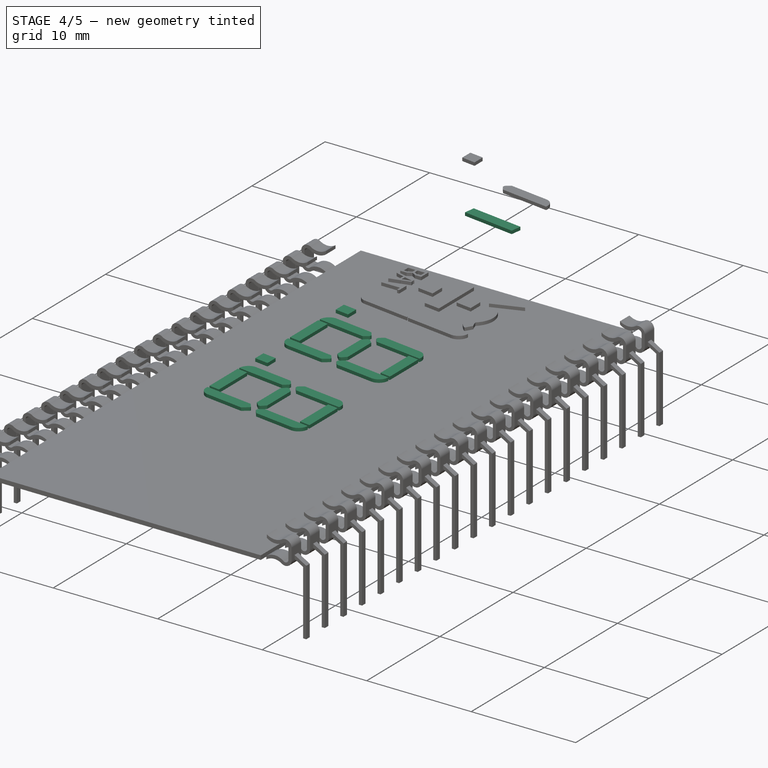
[diagram: stage 4 of 5 — iso view after this stage's code; geometry added in this stage tinted green]
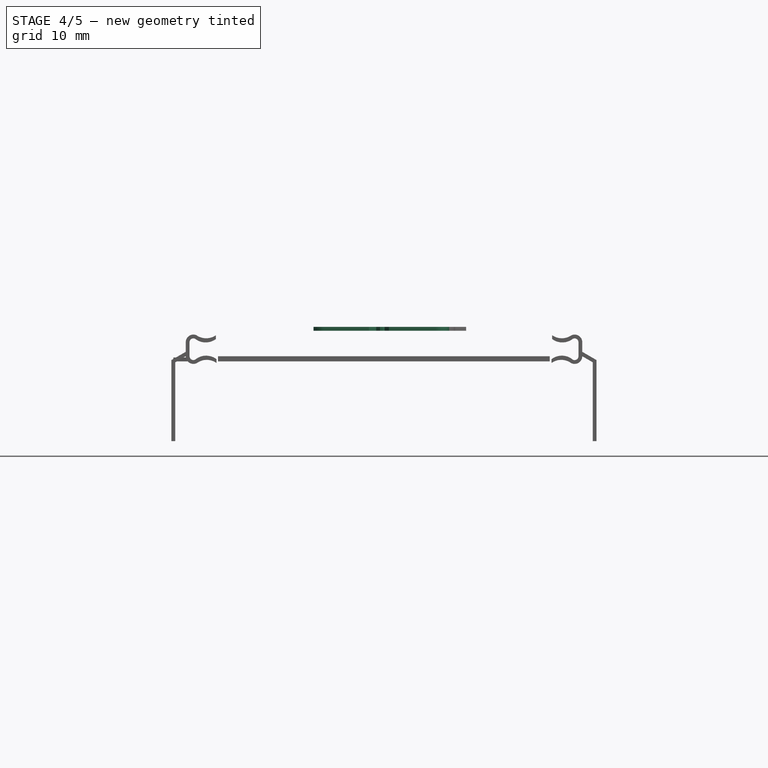
[diagram: stage 4 of 5 — front view after this stage's code; geometry added in this stage tinted green]
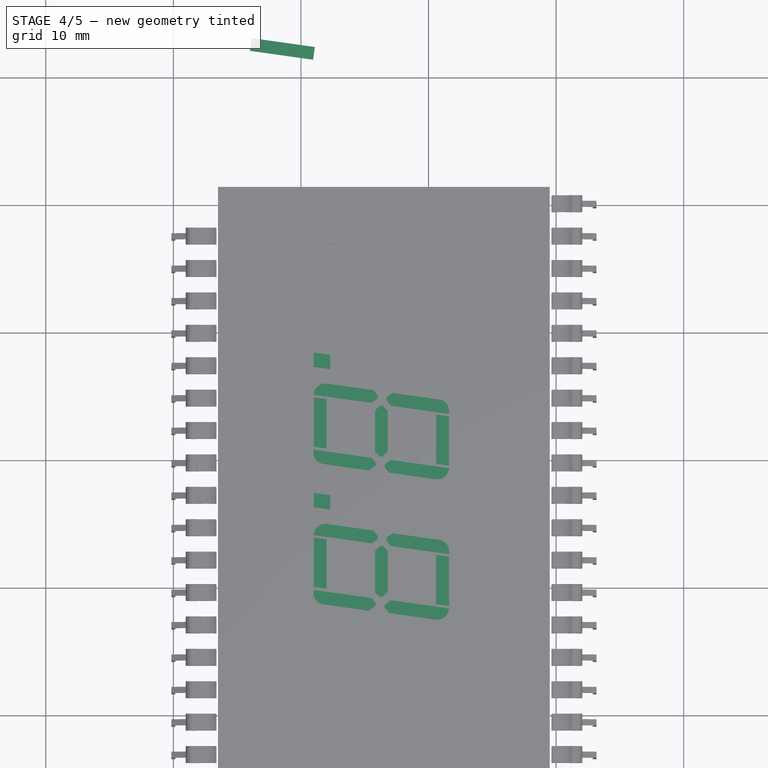
[diagram: stage 4 of 5 — top view after this stage's code; geometry added in this stage tinted green]
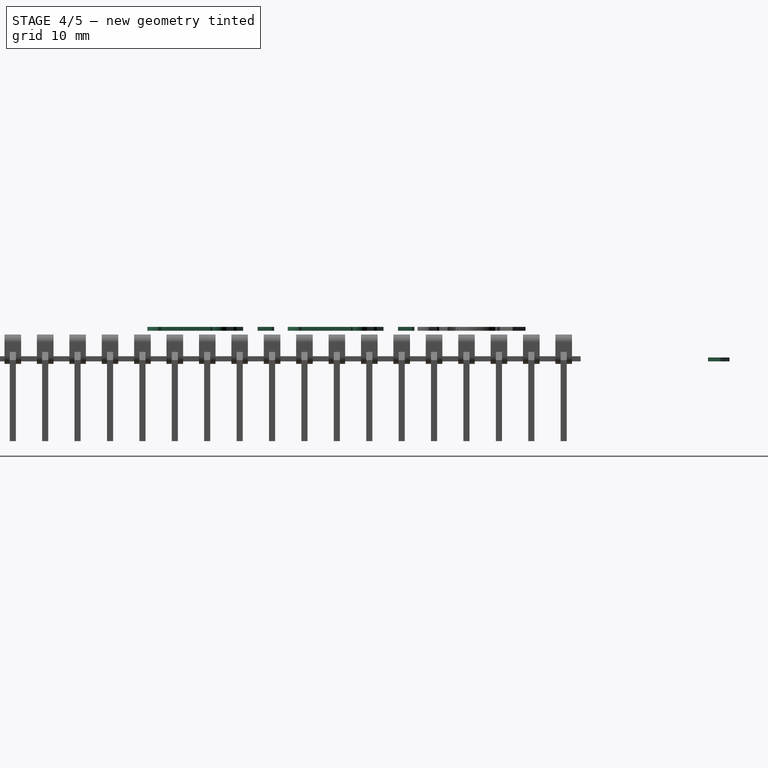
[diagram: stage 4 of 5 — right view after this stage's code; geometry added in this stage tinted green]
FEATURE [Part::Box] Box156  label="Kub113"
  AttacherType = Attacher::AttachEngine3D
  Height = 0.3
  Length = 5
  Placement = pos=(9,18,0) rot=(0,0,-1;0.139626rad)
  Width = 1
FEATURE [Part::Box] Box126  label="Kub083"
  AttacherType = Attacher::AttachEngine3D
  Height = 0.3
  Length = 5
  Placement = pos=(6,12,0) rot=(0,0,-1;0.139626rad)
  Width = 1
FEATURE [Part::Chamfer] Chamfer021
  Base = -> Box156
  Edges = 1 edges r=0.4: [Edge1]
FEATURE [Part::Chamfer] Chamfer022
  Base = -> Chamfer021
  Edges = 1 edges r=0.4: [Edge3]
FEATURE [Part::Fillet] Fillet
  Base = -> Chamfer022
  Edges = 1 edges r=0.9: [Edge17]
  Placement = pos=(-3.36,-0.8,0) rot=(0,0,1;0rad)
FEATURE [Part::Box] Box164  label="Kub121"
  AttacherType = Attacher::AttachEngine3D
  Height = 0.3
  Length = 1.3
  Placement = pos=(0,20,0) rot=(0,0,1;0rad)
  Width = 1.3
FEATURE [Part::Box] Box165  label="Kub122"
  AttacherType = Attacher::AttachEngine3D
  Height = 0.3
  Length = 2
  Placement = pos=(-0.5,19.25,0) rot=(0,0,-1;0.139626rad)
  Width = 1
FEATURE [Part::Box] Box166  label="Kub123"
  AttacherType = Attacher::AttachEngine3D
  Height = 0.3
  Length = 2
  Placement = pos=(-0.5,21.37,0) rot=(0,0,-1;0.139626rad)
  Width = 1
FEATURE [Part::Cut] Cut
  Base = -> Box164
  Tool = -> Box166
FEATURE [Part::Cut] Cut014
  Base = -> Cut
  Tool = -> Box165
FEATURE [Part::Box] Box167  label="Kub124"
  AttacherType = Attacher::AttachEngine3D
  Height = 0.3
  Length = 5
  Placement = pos=(0,18,0) rot=(0,0,-1;0.139626rad)
  Width = 1
FEATURE [Part::Box] Box168  label="Kub125"
  AttacherType = Attacher::AttachEngine3D
  Height = 0.3
  Length = 5
  Placement = pos=(0,13,0) rot=(0,0,-1;0.139626rad)
  Width = 1
FEATURE [Part::Box] Box169  label="Kub126"
  AttacherType = Attacher::AttachEngine3D
  Height = 0.3
  Length = 5
  Placement = pos=(9,18,0) rot=(0,0,-1;0.139626rad)
  Width = 1
FEATURE [Part::Box] Box170  label="Kub127"
  AttacherType = Attacher::AttachEngine3D
  Height = 0.3
  Length = 5
  Placement = pos=(6,12,0) rot=(0,0,-1;0.139626rad)
  Width = 1
FEATURE [Part::Box] Box171  label="Kub128"
  AttacherType = Attacher::AttachEngine3D
  Height = 0.3
  Length = 1
  Placement = pos=(-4,6,0) rot=(0,0,1;0rad)
  Width = 4
FEATURE [Part::Box] Box172  label="Kub129"
  AttacherType = Attacher::AttachEngine3D
  Height = 0.3
  Length = 3
  Placement = pos=(-5,10.14,0) rot=(0,0,-1;0.139626rad)
  Width = 1
FEATURE [Part::Box] Box173  label="Kub130"
  AttacherType = Attacher::AttachEngine3D
  Height = 0.3
  Length = 3
  Placement = pos=(-5,5.27,0) rot=(0,0,-1;0.139626rad)
  Width = 1
FEATURE [Part::Box] Box174  label="Kub131"
  AttacherType = Attacher::AttachEngine3D
  Height = 0.3
  Length = 1
  Placement = pos=(-10,14,0) rot=(0,0,1;0rad)
  Width = 4
FEATURE [Part::Box] Box175  label="Kub132"
  AttacherType = Attacher::AttachEngine3D
  Height = 0.3
  Length = 1
  Placement = pos=(-4,14,0) rot=(0,0,1;0rad)
  Width = 4
FEATURE [Part::Box] Box176  label="Kub133"
  AttacherType = Attacher::AttachEngine3D
  Height = 0.3
  Length = 3
  Placement = pos=(-5,18.14,0) rot=(0,0,-1;0.139626rad)
  Width = 1
FEATURE [Part::Box] Box177  label="Kub134"
  AttacherType = Attacher::AttachEngine3D
  Height = 0.3
  Length = 3
  Placement = pos=(-5,13.27,0) rot=(0,0,-1;0.139626rad)
  Width = 1
FEATURE [Part::Chamfer] Chamfer048
  Base = -> Box174
  Edges = 1 edges r=0.4: [Edge3]
FEATURE [Part::Chamfer] Chamfer049
  Base = -> Chamfer048
  Edges = 1 edges r=0.4: [Edge15]
FEATURE [Part::Chamfer] Chamfer050
  Base = -> Chamfer049
  Edges = 1 edges r=0.4: [Edge14]
FEATURE [Part::Chamfer] Chamfer051
  Base = -> Chamfer050
  Edges = 1 edges r=0.4: [Edge16]
  Placement = pos=(14.8,-0.85,0) rot=(0,0,1;0rad)
FEATURE [Part::Cut] Cut015
  Base = -> Box175
  Tool = -> Box177
FEATURE [Part::Cut] Cut016
  Base = -> Cut015
  Placement = pos=(4,-0.2,0) rot=(0,0,1;0rad)
  Tool = -> Box176
FEATURE [Part::Cut] Cut017
  Base = -> Box171
  Tool = -> Box173
FEATURE [Part::Cut] Cut018
  Base = -> Cut017
  Placement = pos=(13.6,6.45,0) rot=(0,0,1;0rad)
  Tool = -> Box172
FEATURE [Part::Chamfer] Chamfer052
  Base = -> Box167
  Edges = 1 edges r=0.4: [Edge7]
FEATURE [Part::Chamfer] Chamfer053
  Base = -> Chamfer052
  Edges = 1 edges r=0.4: [Edge3]
FEATURE [Part::Fillet] Fillet006
  Base = -> Chamfer053
  Edges = 1 edges r=0.9: [Edge18]
FEATURE [Part::Fillet] Fillet007
  Base = -> Box168
  Edges = 1 edges r=0.9: [Edge1]
FEATURE [Part::Chamfer] Chamfer054
  Base = -> Fillet007
  Edges = 1 edges r=0.5: [Edge15]
FEATURE [Part::Chamfer] Chamfer055
  Base = -> Chamfer054
  Edges = 1 edges r=0.4: [Edge14]
  Placement = pos=(-0.13,-0.3,0) rot=(0,0,1;0rad)
FEATURE [Part::Chamfer] Chamfer056
  Base = -> Box170
  Edges = 1 edges r=0.4: [Edge3]
FEATURE [Part::Chamfer] Chamfer057
  Base = -> Chamfer056
  Edges = 1 edges r=0.4: [Edge3]
FEATURE [Part::Fillet] Fillet008
  Base = -> Chamfer057
  Edges = 1 edges r=0.9: [Edge17]
  Placement = pos=(-0.5,-0.05,0) rot=(0,0,1;0rad)
FEATURE [Part::Chamfer] Chamfer058
  Base = -> Box169
  Edges = 1 edges r=0.4: [Edge1]
FEATURE [Part::Chamfer] Chamfer059
  Base = -> Chamfer058
  Edges = 1 edges r=0.4: [Edge3]
FEATURE [Part::Fillet] Fillet009
  Base = -> Chamfer059
  Edges = 1 edges r=0.9: [Edge17]
  Placement = pos=(-3.36,-0.8,0) rot=(0,0,1;0rad)
FEATURE [Part::Box] Box178  label="Kub135"
  AttacherType = Attacher::AttachEngine3D
  Height = 0.3
  Length = 1.3
  Placement = pos=(0,20,0) rot=(0,0,1;0rad)
  Width = 1.3
FEATURE [Part::Box] Box179  label="Kub136"
  AttacherType = Attacher::AttachEngine3D
  Height = 0.3
  Length = 2
  Placement = pos=(-0.5,19.25,0) rot=(0,0,-1;0.139626rad)
  Width = 1
FEATURE [Part::Box] Box180  label="Kub137"
  AttacherType = Attacher::AttachEngine3D
  Height = 0.3
  Length = 2
  Placement = pos=(-0.5,21.37,0) rot=(0,0,-1;0.139626rad)
  Width = 1
FEATURE [Part::Cut] Cut019
  Base = -> Box178
  Tool = -> Box180
FEATURE [Part::Cut] Cut020
  Base = -> Cut019
  Tool = -> Box179
FEATURE [Part::MultiFuse] Fusion081  label="Digit002"
  Placement = pos=(11,-44,2.4) rot=(0,0,1;0rad)
  Shapes = -> [Cut018,Fillet006,Fillet009,Chamfer055,Fillet008,Cut016,Cut020,Chamfer051]
FEATURE [Part::Box] Box181  label="Kub138"
  AttacherType = Attacher::AttachEngine3D
  Height = 0.3
  Length = 5
  Placement = pos=(0,18,0) rot=(0,0,-1;0.139626rad)
  Width = 1
FEATURE [Part::Box] Box182  label="Kub139"
  AttacherType = Attacher::AttachEngine3D
  Height = 0.3
  Length = 5
  Placement = pos=(0,13,0) rot=(0,0,-1;0.139626rad)
  Width = 1
FEATURE [Part::Box] Box184  label="Kub141"
  AttacherType = Attacher::AttachEngine3D
  Height = 0.3
  Length = 5
  Placement = pos=(6,12,0) rot=(0,0,-1;0.139626rad)
  Width = 1
FEATURE [Part::Box] Box185  label="Kub142"
  AttacherType = Attacher::AttachEngine3D
  Height = 0.3
  Length = 1
  Placement = pos=(-4,6,0) rot=(0,0,1;0rad)
  Width = 4
FEATURE [Part::Box] Box186  label="Kub143"
  AttacherType = Attacher::AttachEngine3D
  Height = 0.3
  Length = 3
  Placement = pos=(-5,10.14,0) rot=(0,0,-1;0.139626rad)
  Width = 1
FEATURE [Part::Box] Box187  label="Kub144"
  AttacherType = Attacher::AttachEngine3D
  Height = 0.3
  Length = 3
  Placement = pos=(-5,5.27,0) rot=(0,0,-1;0.139626rad)
  Width = 1
FEATURE [Part::Box] Box188  label="Kub145"
  AttacherType = Attacher::AttachEngine3D
  Height = 0.3
  Length = 1
  Placement = pos=(-10,14,0) rot=(0,0,1;0rad)
  Width = 4
FEATURE [Part::Box] Box189  label="Kub146"
  AttacherType = Attacher::AttachEngine3D
  Height = 0.3
  Length = 1
  Placement = pos=(-4,14,0) rot=(0,0,1;0rad)
  Width = 4
FEATURE [Part::Box] Box190  label="Kub147"
  AttacherType = Attacher::AttachEngine3D
  Height = 0.3
  Length = 3
  Placement = pos=(-5,18.14,0) rot=(0,0,-1;0.139626rad)
  Width = 1
FEATURE [Part::Box] Box191  label="Kub148"
  AttacherType = Attacher::AttachEngine3D
  Height = 0.3
  Length = 3
  Placement = pos=(-5,13.27,0) rot=(0,0,-1;0.139626rad)
  Width = 1
FEATURE [Part::Chamfer] Chamfer060
  Base = -> Box188
  Edges = 1 edges r=0.4: [Edge3]
FEATURE [Part::Chamfer] Chamfer061
  Base = -> Chamfer060
  Edges = 1 edges r=0.4: [Edge15]
FEATURE [Part::Chamfer] Chamfer062
  Base = -> Chamfer061
  Edges = 1 edges r=0.4: [Edge14]
FEATURE [Part::Chamfer] Chamfer063
  Base = -> Chamfer062
  Edges = 1 edges r=0.4: [Edge16]
  Placement = pos=(14.8,-0.85,0) rot=(0,0,1;0rad)
FEATURE [Part::Cut] Cut021
  Base = -> Box189
  Tool = -> Box191
FEATURE [Part::Cut] Cut022
  Base = -> Cut021
  Placement = pos=(4,-0.2,0) rot=(0,0,1;0rad)
  Tool = -> Box190
FEATURE [Part::Cut] Cut023
  Base = -> Box185
  Tool = -> Box187
FEATURE [Part::Cut] Cut024
  Base = -> Cut023
  Placement = pos=(13.6,6.45,0) rot=(0,0,1;0rad)
  Tool = -> Box186
FEATURE [Part::Chamfer] Chamfer064
  Base = -> Box181
  Edges = 1 edges r=0.4: [Edge7]
FEATURE [Part::Chamfer] Chamfer065
  Base = -> Chamfer064
  Edges = 1 edges r=0.4: [Edge3]
FEATURE [Part::Fillet] Fillet010
  Base = -> Chamfer065
  Edges = 1 edges r=0.9: [Edge18]
FEATURE [Part::Fillet] Fillet011
  Base = -> Box182
  Edges = 1 edges r=0.9: [Edge1]
FEATURE [Part::Chamfer] Chamfer066
  Base = -> Fillet011
  Edges = 1 edges r=0.5: [Edge15]
FEATURE [Part::Chamfer] Chamfer067
  Base = -> Chamfer066
  Edges = 1 edges r=0.4: [Edge14]
  Placement = pos=(-0.13,-0.3,0) rot=(0,0,1;0rad)
FEATURE [Part::Chamfer] Chamfer068
  Base = -> Box184
  Edges = 1 edges r=0.4: [Edge3]
FEATURE [Part::Chamfer] Chamfer069
  Base = -> Chamfer068
  Edges = 1 edges r=0.4: [Edge3]
FEATURE [Part::Fillet] Fillet012
  Base = -> Chamfer069
  Edges = 1 edges r=0.9: [Edge17]
  Placement = pos=(-0.5,-0.05,0) rot=(0,0,1;0rad)
FEATURE [Part::MultiFuse] Fusion082  label="Digit001"
  Placement = pos=(11,-33,2.4) rot=(0,0,1;0rad)
  Shapes = -> [Cut024,Fillet010,Fillet013,Chamfer067,Fillet012,Cut022,Cut026,Chamfer063]
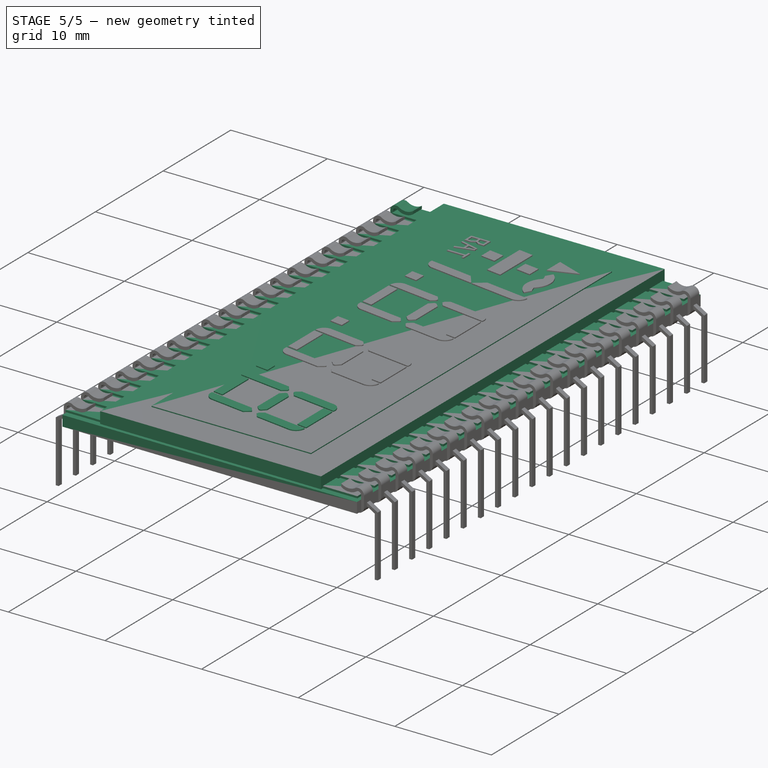
[diagram: stage 5 of 5 — iso view after this stage's code; geometry added in this stage tinted green]
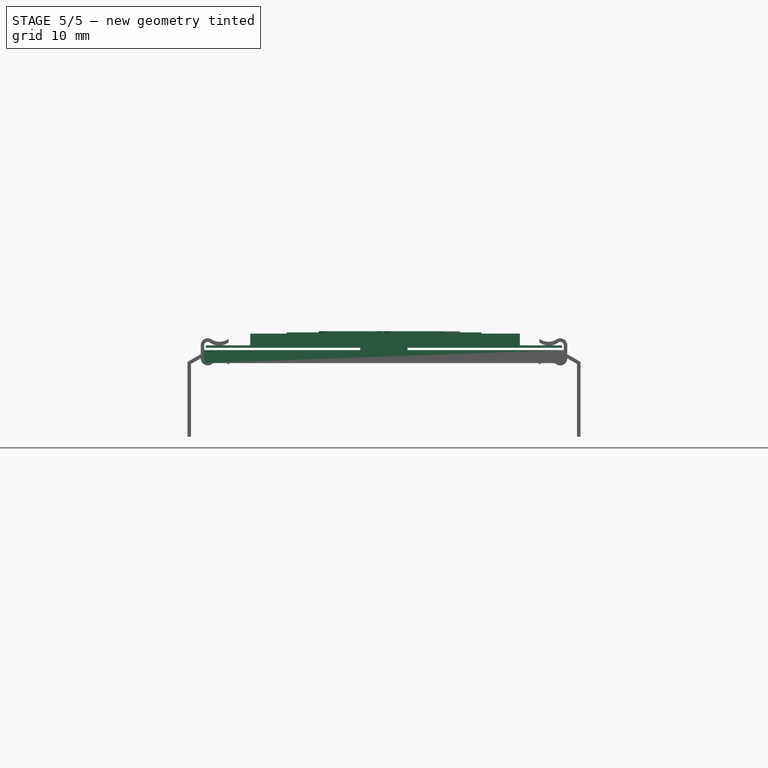
[diagram: stage 5 of 5 — front view after this stage's code; geometry added in this stage tinted green]
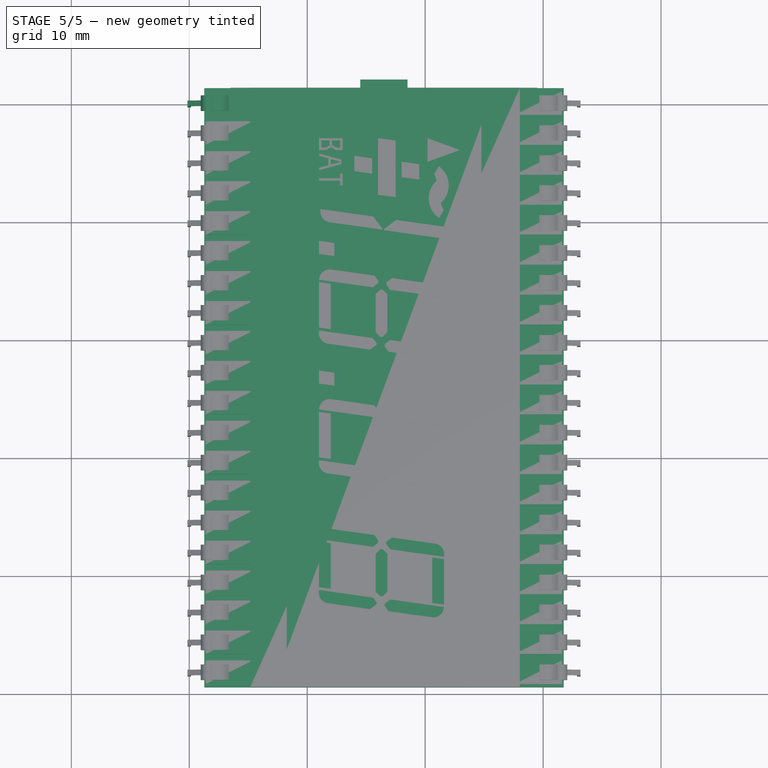
[diagram: stage 5 of 5 — top view after this stage's code; geometry added in this stage tinted green]
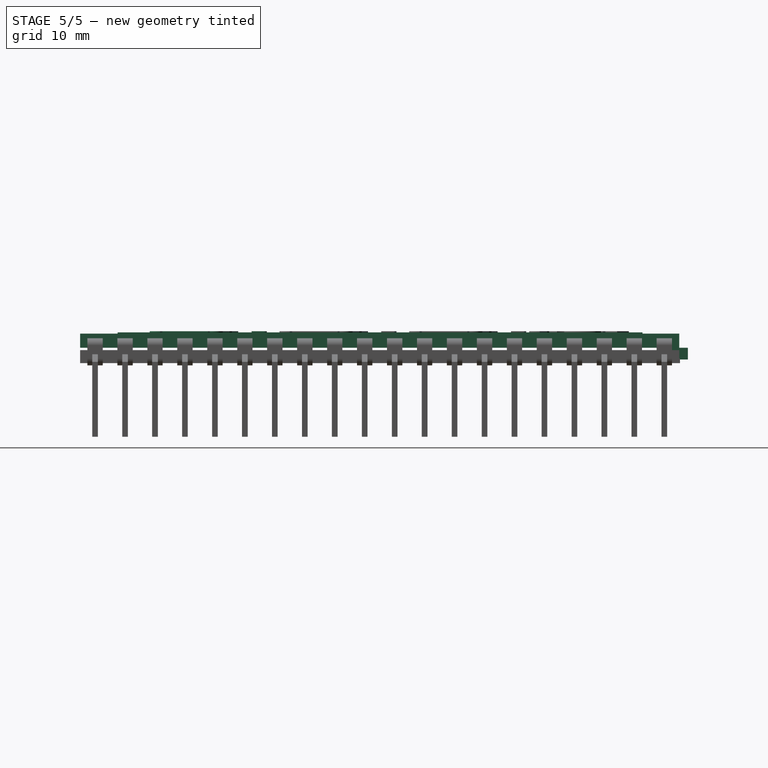
[diagram: stage 5 of 5 — right view after this stage's code; geometry added in this stage tinted green]
FEATURE [Sketcher::SketchObject] Sketch
  MapMode = 5
  Support = -> [XY_Plane]
  sketch-geometry (4):
    g0: LineSegment StartX=1.27 StartY=1.27 StartZ=0 EndX=31.75 EndY=1.27 EndZ=0
    g1: LineSegment StartX=31.75 StartY=1.27 StartZ=0 EndX=31.75 EndY=-49.53 EndZ=0
    g2: LineSegment StartX=31.75 StartY=-49.53 StartZ=0 EndX=1.27 EndY=-49.53 EndZ=0
    g3: LineSegment StartX=1.27 StartY=-49.53 StartZ=0 EndX=1.27 EndY=1.27 EndZ=0
  constraints (12):
    c: Coincident(g0,g1)
    c: Coincident(g1,g2)
    c: Coincident(g2,g3)
    c: Coincident(g3,g0)
    c: Horizontal(g0)
    c: Horizontal(g2)
    c: Vertical(g1)
    c: Vertical(g3)
    c: DistanceY(g1,g0) = 50.8
    c: DistanceX(g2,g1) = 30.48
    c: DistanceX(g-1,g0) = 1.27
    c: DistanceY(g-1,g0) = 1.27
FEATURE [PartDesign::Pad] Pad
  Length = 1.1
  Length2 = 100
  Profile = -> Sketch
  Type = 0
FEATURE [PartDesign::Body] Body
  Group = -> [Sketch,Pad]
  Origin = -> BodyOrigin
  Placement = pos=(0,0,0.3) rot=(0,0,1;0rad)
  Tip = -> Pad
FEATURE [Part::Box] Box  label="Frame"
  AttacherType = Attacher::AttachEngine3D
  Height = 1.2
  Length = 22.86
  Placement = pos=(5.17,-49.53,1.3) rot=(0,0,1;0rad)
  Width = 50.8
FEATURE [Part::Box] Box001  label="Glas"
  AttacherType = Attacher::AttachEngine3D
  Height = 0.2
  Length = 16.51
  Placement = pos=(8.26,-46.35,2.4) rot=(0,0,1;0rad)
  Width = 44.5
FEATURE [Part::Box] Box002  label="EdgeBlob"
  AttacherType = Attacher::AttachEngine3D
  Height = 1
  Length = 4
  Placement = pos=(14.5,0,0.3) rot=(0,0,1;0rad)
  Width = 2
FEATURE [Part::Box] Box003  label="Pad082"
  AttacherType = Attacher::AttachEngine3D
  Height = 0.2
  Length = 4
  Placement = pos=(1.4,-1,1.3) rot=(0,0,1;0rad)
  Width = 2
FEATURE [Part::Box] Box004  label="Pad083"
  AttacherType = Attacher::AttachEngine3D
  Height = 0.2
  Length = 4
  Placement = pos=(1.4,-3.54,1.3) rot=(0,0,1;0rad)
  Width = 2
FEATURE [Part::Box] Box005  label="Pad084"
  AttacherType = Attacher::AttachEngine3D
  Height = 0.2
  Length = 4
  Placement = pos=(1.4,-6.08,1.3) rot=(0,0,1;0rad)
  Width = 2
FEATURE [Part::Box] Box006  label="Pad085"
  AttacherType = Attacher::AttachEngine3D
  Height = 0.2
  Length = 4
  Placement = pos=(1.4,-8.62,1.3) rot=(0,0,1;0rad)
  Width = 2
FEATURE [Part::Box] Box007  label="Pad086"
  AttacherType = Attacher::AttachEngine3D
  Height = 0.2
  Length = 4
  Placement = pos=(1.4,-11.16,1.3) rot=(0,0,1;0rad)
  Width = 2
FEATURE [Part::Box] Box008  label="Pad087"
  AttacherType = Attacher::AttachEngine3D
  Height = 0.2
  Length = 4
  Placement = pos=(1.4,-13.7,1.3) rot=(0,0,1;0rad)
  Width = 2
FEATURE [Part::Box] Box009  label="Pad088"
  AttacherType = Attacher::AttachEngine3D
  Height = 0.2
  Length = 4
  Placement = pos=(1.4,-16.24,1.3) rot=(0,0,1;0rad)
  Width = 2
FEATURE [Part::Box] Box010  label="Pad089"
  AttacherType = Attacher::AttachEngine3D
  Height = 0.2
  Length = 4
  Placement = pos=(1.4,-18.78,1.3) rot=(0,0,1;0rad)
  Width = 2
FEATURE [Part::Box] Box011  label="Pad090"
  AttacherType = Attacher::AttachEngine3D
  Height = 0.2
  Length = 4
  Placement = pos=(1.4,-21.32,1.3) rot=(0,0,1;0rad)
  Width = 2
FEATURE [Part::Box] Box012  label="Pad091"
  AttacherType = Attacher::AttachEngine3D
  Height = 0.2
  Length = 4
  Placement = pos=(1.4,-23.86,1.3) rot=(0,0,1;0rad)
  Width = 2
FEATURE [Part::Box] Box013  label="Pad092"
  AttacherType = Attacher::AttachEngine3D
  Height = 0.2
  Length = 4
  Placement = pos=(1.4,-26.4,1.3) rot=(0,0,1;0rad)
  Width = 2
FEATURE [Part::Box] Box014  label="Pad093"
  AttacherType = Attacher::AttachEngine3D
  Height = 0.2
  Length = 4
  Placement = pos=(1.4,-28.94,1.3) rot=(0,0,1;0rad)
  Width = 2
FEATURE [Part::Box] Box015  label="Pad094"
  AttacherType = Attacher::AttachEngine3D
  Height = 0.2
  Length = 4
  Placement = pos=(1.4,-31.48,1.3) rot=(0,0,1;0rad)
  Width = 2
FEATURE [Part::Box] Box016  label="Pad095"
  AttacherType = Attacher::AttachEngine3D
  Height = 0.2
  Length = 4
  Placement = pos=(1.4,-34.02,1.3) rot=(0,0,1;0rad)
  Width = 2
FEATURE [Part::Box] Box017  label="Pad096"
  AttacherType = Attacher::AttachEngine3D
  Height = 0.2
  Length = 4
  Placement = pos=(1.4,-36.56,1.3) rot=(0,0,1;0rad)
  Width = 2
FEATURE [Part::Box] Box018  label="Pad097"
  AttacherType = Attacher::AttachEngine3D
  Height = 0.2
  Length = 4
  Placement = pos=(1.4,-39.1,1.3) rot=(0,0,1;0rad)
  Width = 2
FEATURE [Part::Box] Box019  label="Pad098"
  AttacherType = Attacher::AttachEngine3D
  Height = 0.2
  Length = 4
  Placement = pos=(1.4,-41.64,1.3) rot=(0,0,1;0rad)
  Width = 2
FEATURE [Part::Box] Box020  label="Pad099"
  AttacherType = Attacher::AttachEngine3D
  Height = 0.2
  Length = 4
  Placement = pos=(1.4,-44.18,1.3) rot=(0,0,1;0rad)
  Width = 2
FEATURE [Part::Box] Box021  label="Pad100"
  AttacherType = Attacher::AttachEngine3D
  Height = 0.2
  Length = 4
  Placement = pos=(1.4,-46.72,1.3) rot=(0,0,1;0rad)
  Width = 2
FEATURE [Part::Box] Box022  label="Pad101"
  AttacherType = Attacher::AttachEngine3D
  Height = 0.2
  Length = 4
  Placement = pos=(1.4,-49.26,1.3) rot=(0,0,1;0rad)
  Width = 2
FEATURE [Part::Box] Box023  label="Pad102"
  AttacherType = Attacher::AttachEngine3D
  Height = 0.2
  Length = 4
  Placement = pos=(27.6,-1,1.3) rot=(0,0,1;0rad)
  Width = 2
FEATURE [Part::Box] Box024  label="Pad103"
  AttacherType = Attacher::AttachEngine3D
  Height = 0.2
  Length = 4
  Placement = pos=(27.6,-3.54,1.3) rot=(0,0,1;0rad)
  Width = 2
FEATURE [Part::Box] Box025  label="Pad104"
  AttacherType = Attacher::AttachEngine3D
  Height = 0.2
  Length = 4
  Placement = pos=(27.6,-6.08,1.3) rot=(0,0,1;0rad)
  Width = 2
FEATURE [Part::Box] Box026  label="Pad105"
  AttacherType = Attacher::AttachEngine3D
  Height = 0.2
  Length = 4
  Placement = pos=(27.6,-8.62,1.3) rot=(0,0,1;0rad)
  Width = 2
FEATURE [Part::Box] Box027  label="Pad065"
  AttacherType = Attacher::AttachEngine3D
  Height = 0.2
  Length = 4
  Placement = pos=(27.6,-11.16,1.3) rot=(0,0,1;0rad)
  Width = 2
FEATURE [Part::Box] Box028  label="Pad106"
  AttacherType = Attacher::AttachEngine3D
  Height = 0.2
  Length = 4
  Placement = pos=(27.6,-13.7,1.3) rot=(0,0,1;0rad)
  Width = 2
FEATURE [Part::Box] Box029  label="Pad107"
  AttacherType = Attacher::AttachEngine3D
  Height = 0.2
  Length = 4
  Placement = pos=(27.6,-16.24,1.3) rot=(0,0,1;0rad)
  Width = 2
FEATURE [Part::Box] Box030  label="Pad108"
  AttacherType = Attacher::AttachEngine3D
  Height = 0.2
  Length = 4
  Placement = pos=(27.6,-18.78,1.3) rot=(0,0,1;0rad)
  Width = 2
FEATURE [Part::Box] Box031  label="Pad109"
  AttacherType = Attacher::AttachEngine3D
  Height = 0.2
  Length = 4
  Placement = pos=(27.6,-21.32,1.3) rot=(0,0,1;0rad)
  Width = 2
FEATURE [Part::Box] Box032  label="Pad110"
  AttacherType = Attacher::AttachEngine3D
  Height = 0.2
  Length = 4
  Placement = pos=(27.6,-23.86,1.3) rot=(0,0,1;0rad)
  Width = 2
FEATURE [Part::Box] Box033  label="Pad111"
  AttacherType = Attacher::AttachEngine3D
  Height = 0.2
  Length = 4
  Placement = pos=(27.6,-26.4,1.3) rot=(0,0,1;0rad)
  Width = 2
FEATURE [Part::Box] Box034  label="Pad112"
  AttacherType = Attacher::AttachEngine3D
  Height = 0.2
  Length = 4
  Placement = pos=(27.6,-28.94,1.3) rot=(0,0,1;0rad)
  Width = 2
FEATURE [Part::Box] Box035  label="Pad113"
  AttacherType = Attacher::AttachEngine3D
  Height = 0.2
  Length = 4
  Placement = pos=(27.6,-31.48,1.3) rot=(0,0,1;0rad)
  Width = 2
FEATURE [Part::Box] Box036  label="Pad114"
  AttacherType = Attacher::AttachEngine3D
  Height = 0.2
  Length = 4
  Placement = pos=(27.6,-34.02,1.3) rot=(0,0,1;0rad)
  Width = 2
FEATURE [Part::Box] Box037  label="Pad115"
  AttacherType = Attacher::AttachEngine3D
  Height = 0.2
  Length = 4
  Placement = pos=(27.6,-36.56,1.3) rot=(0,0,1;0rad)
  Width = 2
FEATURE [Part::Box] Box038  label="Pad116"
  AttacherType = Attacher::AttachEngine3D
  Height = 0.2
  Length = 4
  Placement = pos=(27.6,-39.1,1.3) rot=(0,0,1;0rad)
  Width = 2
FEATURE [Part::Box] Box039  label="Pad117"
  AttacherType = Attacher::AttachEngine3D
  Height = 0.2
  Length = 4
  Placement = pos=(27.6,-41.64,1.3) rot=(0,0,1;0rad)
  Width = 2
FEATURE [Part::Box] Box040  label="Pad118"
  AttacherType = Attacher::AttachEngine3D
  Height = 0.2
  Length = 4
  Placement = pos=(27.6,-44.18,1.3) rot=(0,0,1;0rad)
  Width = 2
FEATURE [Part::Box] Box041  label="Pad119"
  AttacherType = Attacher::AttachEngine3D
  Height = 0.2
  Length = 4
  Placement = pos=(27.6,-46.72,1.3) rot=(0,0,1;0rad)
  Width = 2
FEATURE [Part::Box] Box042  label="Pad120"
  AttacherType = Attacher::AttachEngine3D
  Height = 0.2
  Length = 4
  Placement = pos=(27.6,-49.26,1.3) rot=(0,0,1;0rad)
  Width = 2
FEATURE [App::DocumentObjectGroup] Grupp  label="Pads"
  Group = -> [Box003,Box004,Box005,Box006,Box007,Box008,Box009,Box010,Box011,Box012,Box013,Box014,Box015,Box016,Box017,Box018,Box019,Box020,Box021,Box022,Box023,Box024,Box025,Box026,Box027,Box028,Box029,Box030,Box031,Box032,Box033,Box034,Box035,Box036,Box037,Box038,Box039,Box040,Box041,Box042]
FEATURE [Part::Box] Box123  label="Kub080"
  AttacherType = Attacher::AttachEngine3D
  Height = 0.3
  Length = 5
  Placement = pos=(0,18,0) rot=(0,0,-1;0.139626rad)
  Width = 1
FEATURE [Part::Box] Box124  label="Kub081"
  AttacherType = Attacher::AttachEngine3D
  Height = 0.3
  Length = 5
  Placement = pos=(0,13,0) rot=(0,0,-1;0.139626rad)
  Width = 1
FEATURE [Part::Box] Box157  label="Kub114"
  AttacherType = Attacher::AttachEngine3D
  Height = 0.3
  Length = 1
  Placement = pos=(-4,6,0) rot=(0,0,1;0rad)
  Width = 4
FEATURE [Part::Box] Box158  label="Kub115"
  AttacherType = Attacher::AttachEngine3D
  Height = 0.3
  Length = 3
  Placement = pos=(-5,10.14,0) rot=(0,0,-1;0.139626rad)
  Width = 1
FEATURE [Part::Box] Box159  label="Kub116"
  AttacherType = Attacher::AttachEngine3D
  Height = 0.3
  Length = 3
  Placement = pos=(-5,5.27,0) rot=(0,0,-1;0.139626rad)
  Width = 1
FEATURE [Part::Box] Box160  label="Kub117"
  AttacherType = Attacher::AttachEngine3D
  Height = 0.3
  Length = 1
  Placement = pos=(-10,14,0) rot=(0,0,1;0rad)
  Width = 4
FEATURE [Part::Box] Box161  label="Kub118"
  AttacherType = Attacher::AttachEngine3D
  Height = 0.3
  Length = 1
  Placement = pos=(-4,14,0) rot=(0,0,1;0rad)
  Width = 4
FEATURE [Part::Box] Box162  label="Kub119"
  AttacherType = Attacher::AttachEngine3D
  Height = 0.3
  Length = 3
  Placement = pos=(-5,18.14,0) rot=(0,0,-1;0.139626rad)
  Width = 1
FEATURE [Part::Box] Box163  label="Kub120"
  AttacherType = Attacher::AttachEngine3D
  Height = 0.3
  Length = 3
  Placement = pos=(-5,13.27,0) rot=(0,0,-1;0.139626rad)
  Width = 1
FEATURE [Part::Chamfer] Chamfer047
  Base = -> Box160
  Edges = 1 edges r=0.4: [Edge3]
FEATURE [Part::Chamfer] Chamfer012
  Base = -> Chamfer047
  Edges = 1 edges r=0.4: [Edge15]
FEATURE [Part::Chamfer] Chamfer013
  Base = -> Chamfer012
  Edges = 1 edges r=0.4: [Edge14]
FEATURE [Part::Chamfer] Chamfer014
  Base = -> Chamfer013
  Edges = 1 edges r=0.4: [Edge16]
  Placement = pos=(14.8,-0.85,0) rot=(0,0,1;0rad)
FEATURE [Part::Cut] Cut012
  Base = -> Box161
  Tool = -> Box163
FEATURE [Part::Cut] Cut001
  Base = -> Cut012
  Placement = pos=(4,-0.2,0) rot=(0,0,1;0rad)
  Tool = -> Box162
FEATURE [Part::Cut] Cut013
  Base = -> Box157
  Tool = -> Box159
FEATURE [Part::Cut] Cut003
  Base = -> Cut013
  Placement = pos=(13.6,6.45,0) rot=(0,0,1;0rad)
  Tool = -> Box158
FEATURE [Part::Chamfer] Chamfer015
  Base = -> Box123
  Edges = 1 edges r=0.4: [Edge7]
FEATURE [Part::Chamfer] Chamfer016
  Base = -> Chamfer015
  Edges = 1 edges r=0.4: [Edge3]
FEATURE [Part::Fillet] Fillet003
  Base = -> Chamfer016
  Edges = 1 edges r=0.9: [Edge18]
FEATURE [Part::Fillet] Fillet004
  Base = -> Box124
  Edges = 1 edges r=0.9: [Edge1]
FEATURE [Part::Chamfer] Chamfer017
  Base = -> Fillet004
  Edges = 1 edges r=0.5: [Edge15]
FEATURE [Part::Chamfer] Chamfer018
  Base = -> Chamfer017
  Edges = 1 edges r=0.4: [Edge14]
  Placement = pos=(-0.13,-0.3,0) rot=(0,0,1;0rad)
FEATURE [Part::Chamfer] Chamfer019
  Base = -> Box126
  Edges = 1 edges r=0.4: [Edge3]
FEATURE [Part::Chamfer] Chamfer020
  Base = -> Chamfer019
  Edges = 1 edges r=0.4: [Edge3]
FEATURE [Part::Fillet] Fillet005
  Base = -> Chamfer020
  Edges = 1 edges r=0.9: [Edge17]
  Placement = pos=(-0.5,-0.05,0) rot=(0,0,1;0rad)
FEATURE [Part::MultiFuse] Fusion080  label="Digit003"
  Placement = pos=(11,-55,2.4) rot=(0,0,1;0rad)
  Shapes = -> [Cut003,Fillet003,Fillet,Chamfer018,Fillet005,Cut001,Cut014,Chamfer014]
FEATURE [Sketcher::SketchObject] Sketch041
  MapMode = 5
  sketch-geometry (12):
    g0: ArcOfCircle CenterX=0.3 CenterY=1.4 CenterZ=0 NormalX=0 NormalY=0 NormalZ=1 Radius=0.3 StartAngle=1.07185 EndAngle=3.14159
    g1: ArcOfCircle CenterX=0.3 CenterY=0.3 CenterZ=0 NormalX=0 NormalY=0 NormalZ=1 Radius=0.3 StartAngle=3.14159 EndAngle=5.21325
    g2: ArcOfCircle CenterX=1.26236 CenterY=2.71881 CenterZ=0 NormalX=0 NormalY=0 NormalZ=1 Radius=1.33577 StartAngle=4.05255 EndAngle=5.35633
    g3: ArcOfCircle CenterX=0.3 CenterY=1.4 CenterZ=0 NormalX=0 NormalY=0 NormalZ=1 Radius=0.6 StartAngle=1.16195 EndAngle=3.14159
    g4: ArcOfCircle CenterX=1.30141 CenterY=3.03549 CenterZ=0 NormalX=0 NormalY=0 NormalZ=1 Radius=1.32631 StartAngle=4.09955 EndAngle=5.32523
    g5: ArcOfCircle CenterX=0.3 CenterY=0.3 CenterZ=0 NormalX=0 NormalY=0 NormalZ=1 Radius=0.6 StartAngle=3.14159 EndAngle=5.20697
    g6: ArcOfCircle CenterX=1.29932 CenterY=-0.992274 CenterZ=0 NormalX=0 NormalY=0 NormalZ=1 Radius=1.33812 StartAngle=0.919458 EndAngle=2.26419
    g7: ArcOfCircle CenterX=1.34768 CenterY=-1.29457 CenterZ=0 NormalX=0 NormalY=0 NormalZ=1 Radius=1.31124 StartAngle=0.949854 EndAngle=2.19174
    g8: LineSegment StartX=2.11056 StartY=0.071899 StartZ=0 EndX=2.11056 EndY=-0.228101 EndZ=0
    g9: LineSegment StartX=2.06429 StartY=1.95055 StartZ=0 EndX=2.06429 EndY=1.65055 EndZ=0
    g10: LineSegment StartX=0 StartY=1.4 StartZ=0 EndX=0 EndY=0.3 EndZ=0
    g11: LineSegment StartX=-0.3 StartY=1.4 StartZ=0 EndX=-0.3 EndY=0.3 EndZ=0
  constraints (52):
    c: Radius(g0) = 0.3
    c: Radius(g2) = 1.33577
    c: Radius(g1) = 0.3
    c: DistanceX(g-1,g1) = 0.3
    c: DistanceY(g-1,g1) = 0.3
    c: Radius(g5) = 0.6
    c: DistanceX(g-1,g5) = 0.3
    c: DistanceY(g-1,g5) = 0.3
    c: DistanceY(g-1,g0) = 1.4
    c: DistanceX(g-1,g0) = 0.3
    c: Radius(g3) = 0.6
    c: DistanceX(g0,g3) = 0.3
    c: DistanceY(g-1,g3) = 1.4
    c: DistanceY(g5,g7) = 0
    c: DistanceX(g5,g7) = 0
    c: DistanceY(g1,g6) = 0
    c: DistanceX(g1,g6) = 0
    c: DistanceY(g0,g2) = 0
    c: DistanceX(g0,g2) = 0
    c: DistanceY(g3,g4) = 0
    c: DistanceX(g3,g4) = 0
    c: Radius(g4) = 1.32631
    c: Radius(g6) = 1.33812
    c: Radius(g7) = 1.31124
    c: DistanceY(g-1,g1) = 0.3
    c: DistanceY(g-1,g5) = 0.3
    c: DistanceX(g-1,g5) = 0.584797
    c: DistanceX(g1,g1) = 0.444055
    c: DistanceY(g1,g0) = 1.1
    c: DistanceY(g5,g3) = 1.1
    c: DistanceX(g0,g0) = 0.443549
    c: DistanceY(g0,g3) = 0.550548
    c: DistanceY(g7,g6) = 0.3
    c: DistanceY(g2,g4) = 0.3
    c: DistanceY(g3,g4) = 0
    c: DistanceX(g3,g4) = 1.52576
    c: DistanceX(g2,g4) = 0
    c: DistanceX(g5,g7) = 1.52576
    c: DistanceY(g7,g5) = 0
    c: DistanceX(g6,g7) = 0
    c: Coincident(g8,g6)
    c: DistanceY(g8,g8) = 0.3
    c: DistanceX(g7,g8) = 0
    c: Coincident(g9,g4)
    c: DistanceY(g9,g9) = 0.3
    c: DistanceX(g2,g9) = 0
    c: Coincident(g10,g0)
    c: DistanceY(g10,g10) = 1.1
    c: DistanceX(g1,g10) = 0
    c: Coincident(g11,g3)
    c: DistanceY(g11,g11) = 1.1
    c: DistanceX(g5,g11) = 0
FEATURE [PartDesign::Pad] Pad041  label="Pad121"
  Length = 1.3
  Length2 = 100
  Profile = -> Sketch041
  Type = 0
FEATURE [Part::Box] Box234  label="Leg"
  AttacherType = Attacher::AttachEngine3D
  Height = 0.48
  Length = 0.3
  Placement = pos=(-1.42,-6.35,0.41) rot=(0,0,1;0rad)
  Width = 6.35
FEATURE [Part::Box] Box235  label="Kub191"
  AttacherType = Attacher::AttachEngine3D
  Height = 0.48
  Length = 0.3
  Placement = pos=(-1.42,0,0.41) rot=(0,0,-1;1.0472rad)
  Width = 1.4
FEATURE [Part::MultiFuse] Fusion085  label="Leg0001"
  Placement = pos=(1.27,0.65,0.1) rot=(1,0,0;1.5708rad)
  Shapes = -> [Pad041,Box235,Box234]
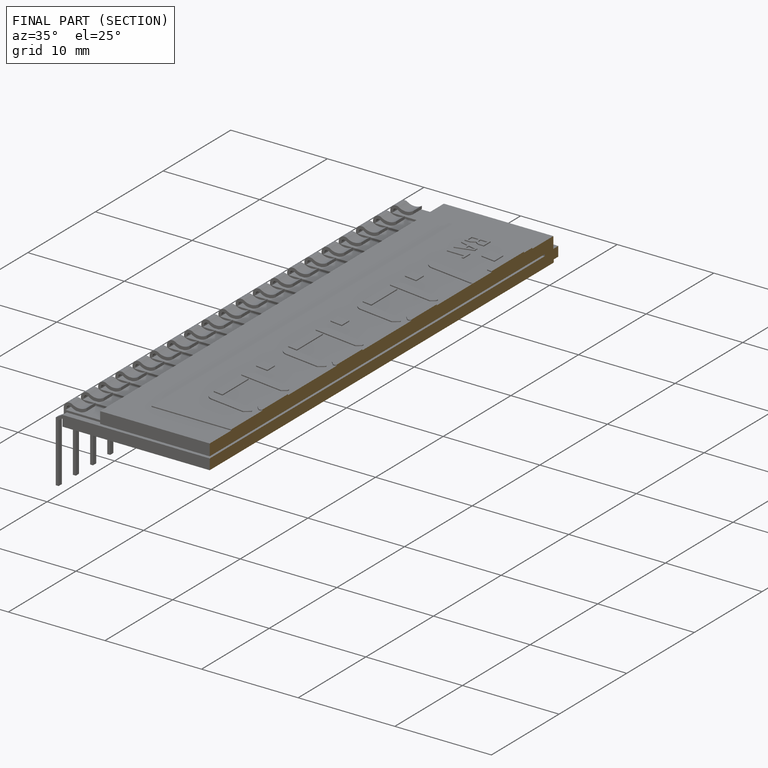
[diagram: finished part — half-section view (interior)]
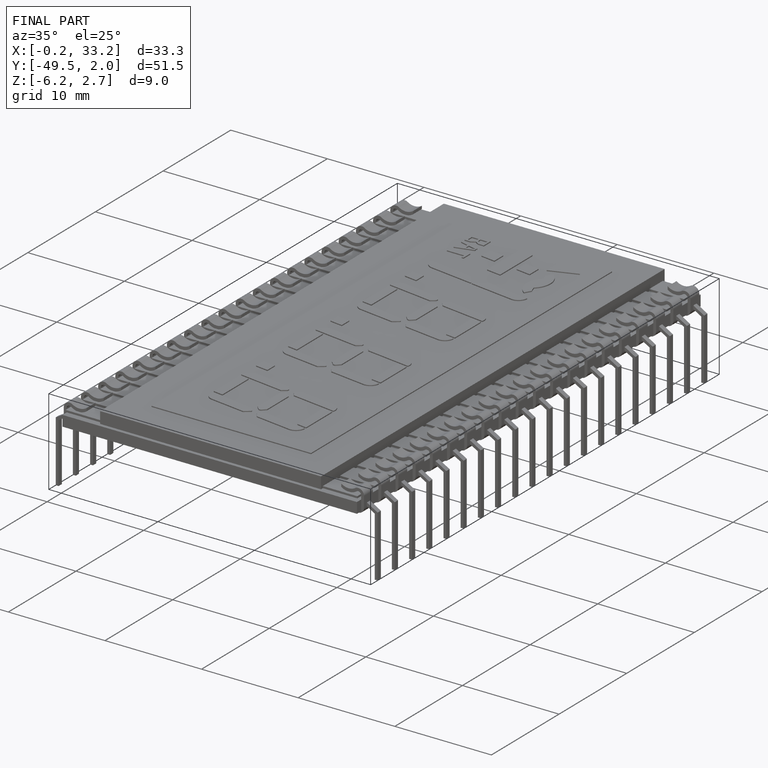
[diagram: finished part — iso view with bounding-box wireframe]
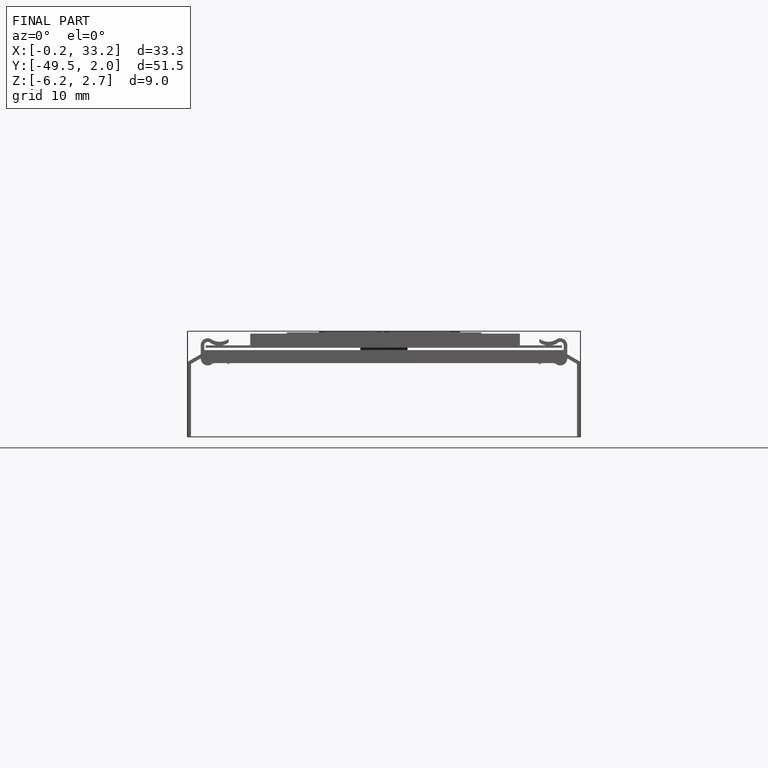
[diagram: finished part — front view with bounding-box wireframe]
